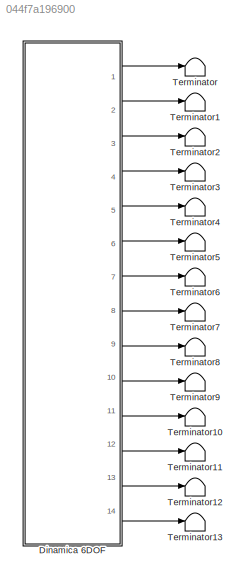
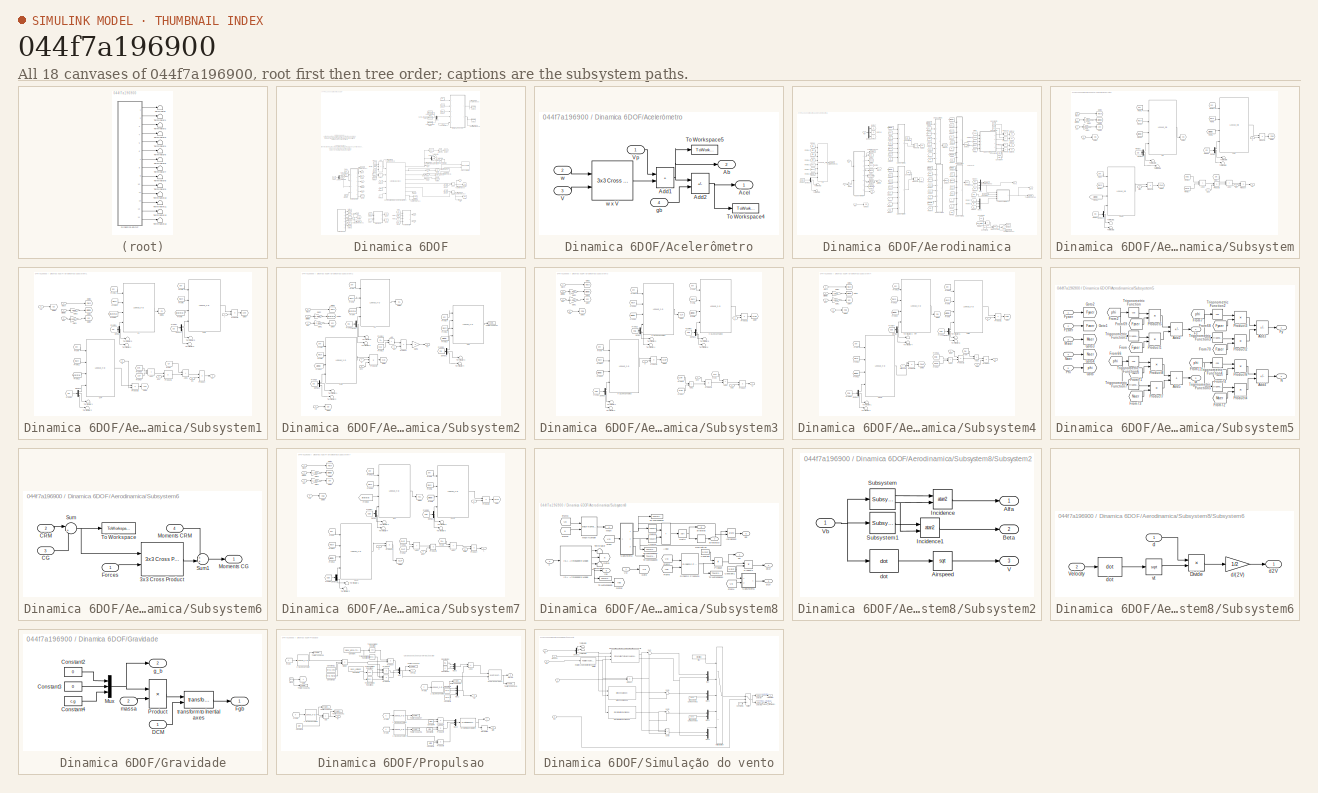
[diagram: thumbnail index - all 18 canvases of the model, root first then tree order]
MODEL slx_044f7a196900
KIND model
CONFIG AbsTol = auto
CONFIG EnableMultiTasking = off
CONFIG FixedStep = 0.001
CONFIG MaxStep = 0.001
CONFIG MinStep = auto
CONFIG RelTol = 1e-3
CONFIG SampleTimeConstraint = Unconstrained
CONFIG SolverName = FixedStepAuto
CONFIG StartTime = 0.0
CONFIG StopTime = D.Tfim
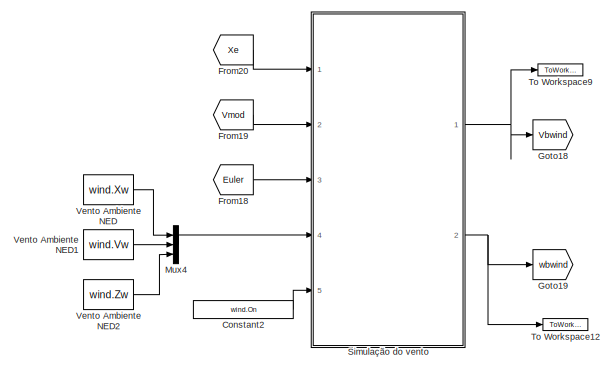
[diagram: Dinamica 6DOF - part 1/3, top right region]
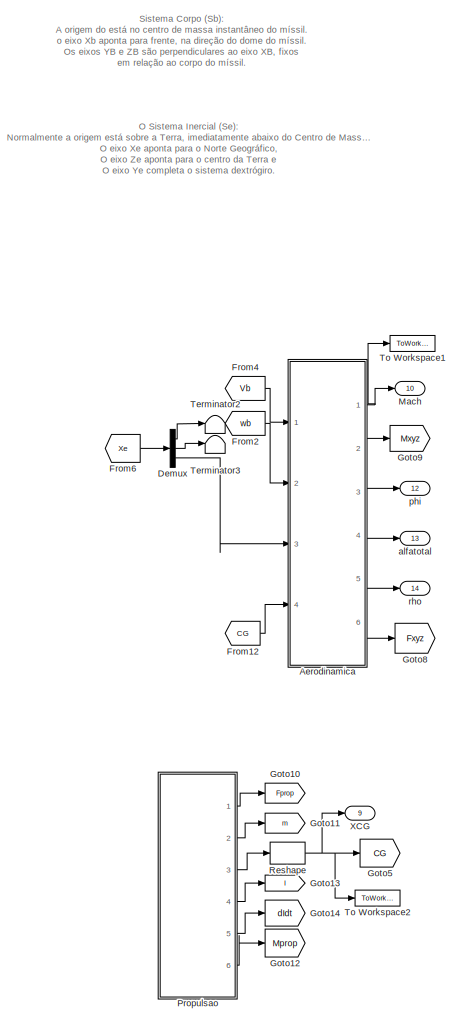
[diagram: Dinamica 6DOF - part 2/3, middle left region]
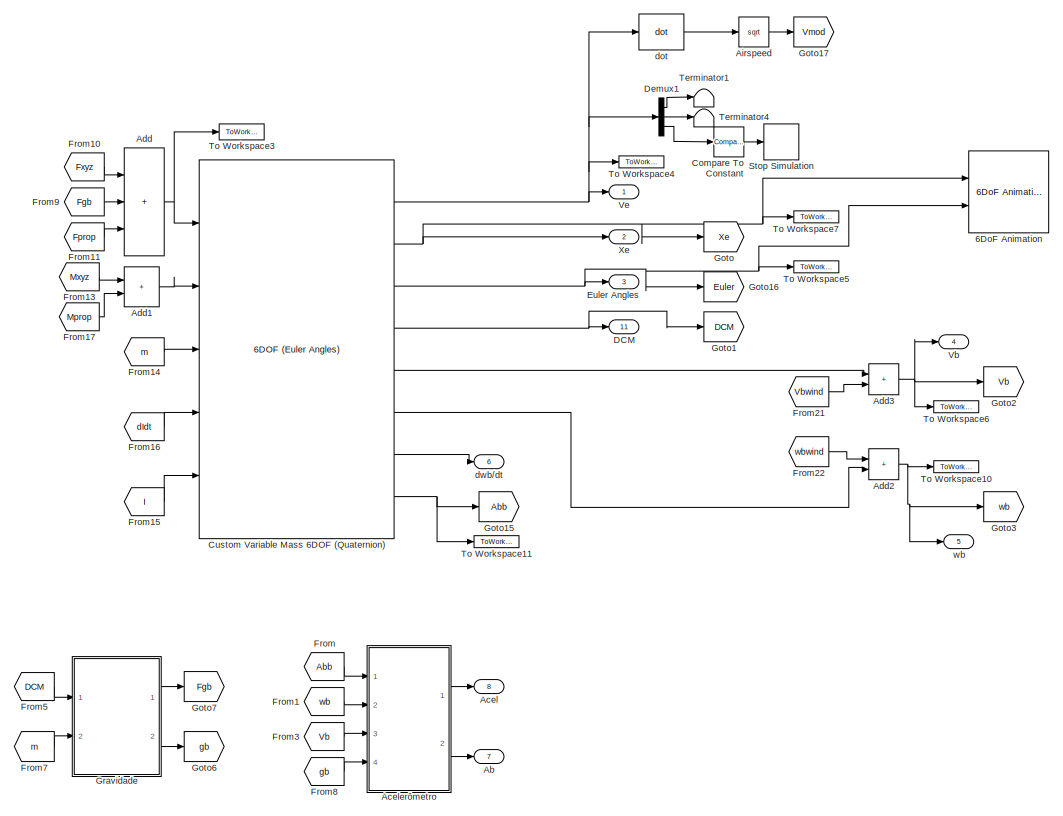
[diagram: Dinamica 6DOF - part 3/3, central region]
BLOCK [SubSystem] Dinamica 6DOF
  Ports = [0, 14]
  RequestExecContextInheritance = off
BLOCK [Reference] Dinamica 6DOF/6DoF Animation  REF=aerolibanim/6DoF Animation
  Ports = [2]
  SourceBlock = aerolibanim/6DoF Animation
  SourceProductBaseCode = AE
  SourceType = 6DoF_Animation
BLOCK [Outport] Dinamica 6DOF/Ab
  Port = 7
  VectorParamsAs1DForOutWhenUnconnected = off
BLOCK [Outport] Dinamica 6DOF/Acel
  Port = 8
  VectorParamsAs1DForOutWhenUnconnected = off
BLOCK [SubSystem] Dinamica 6DOF/Acelerômetro
  Ports = [4, 2]
  RequestExecContextInheritance = off
BLOCK [Outport] Dinamica 6DOF/Acelerômetro/Ab
  Port = 2
  VectorParamsAs1DForOutWhenUnconnected = off
BLOCK [Outport] Dinamica 6DOF/Acelerômetro/Acel
  VectorParamsAs1DForOutWhenUnconnected = off
BLOCK [Sum] Dinamica 6DOF/Acelerômetro/Add1
  IconShape = rectangular
  Ports = [2, 1]
BLOCK [Sum] Dinamica 6DOF/Acelerômetro/Add2
  IconShape = rectangular
  Inputs = +-
  Ports = [2, 1]
BLOCK [ToWorkspace] Dinamica 6DOF/Acelerômetro/To Workspace4
  FixptAsFi = on
  MaxDataPoints = inf
  Ports = [1]
  SampleTime = -1
  SaveFormat = Timeseries
  VariableName = Acel
BLOCK [ToWorkspace] Dinamica 6DOF/Acelerômetro/To Workspace5
  FixptAsFi = on
  MaxDataPoints = inf
  Ports = [1]
  SampleTime = -1
  SaveFormat = Timeseries
  VariableName = Ab
BLOCK [Inport] Dinamica 6DOF/Acelerômetro/V
  Port = 3
BLOCK [Inport] Dinamica 6DOF/Acelerômetro/Vp
BLOCK [Inport] Dinamica 6DOF/Acelerômetro/gb
  Port = 4
BLOCK [Inport] Dinamica 6DOF/Acelerômetro/w
  Port = 2
BLOCK [Reference] Dinamica 6DOF/Acelerômetro/w x V  REF=sharedutil/3x3 Cross Product
  Ports = [2, 1]
  SourceBlock = sharedutil/3x3 Cross Product
  SourceProductBaseCode = AE,PW,DR,MT,UV,VE
  SourceType = CrossProduct
BLOCK [Sum] Dinamica 6DOF/Add
  IconShape = rectangular
  Inputs = +++
  Ports = [3, 1]
BLOCK [Sum] Dinamica 6DOF/Add1
  IconShape = rectangular
  Ports = [2, 1]
BLOCK [Sum] Dinamica 6DOF/Add2
  IconShape = rectangular
  Ports = [2, 1]
BLOCK [Sum] Dinamica 6DOF/Add3
  IconShape = rectangular
  Ports = [2, 1]
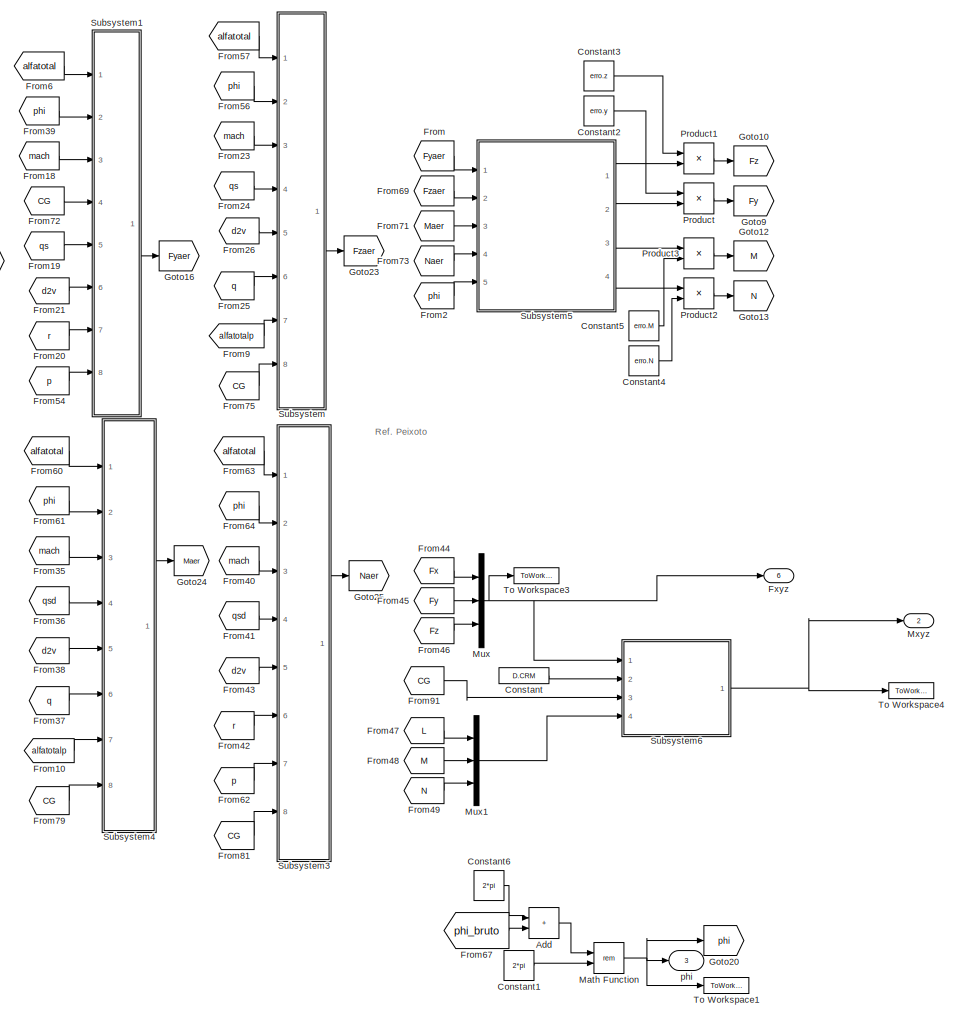
[diagram: Dinamica 6DOF/Aerodinamica - part 1/2, right side, full height]
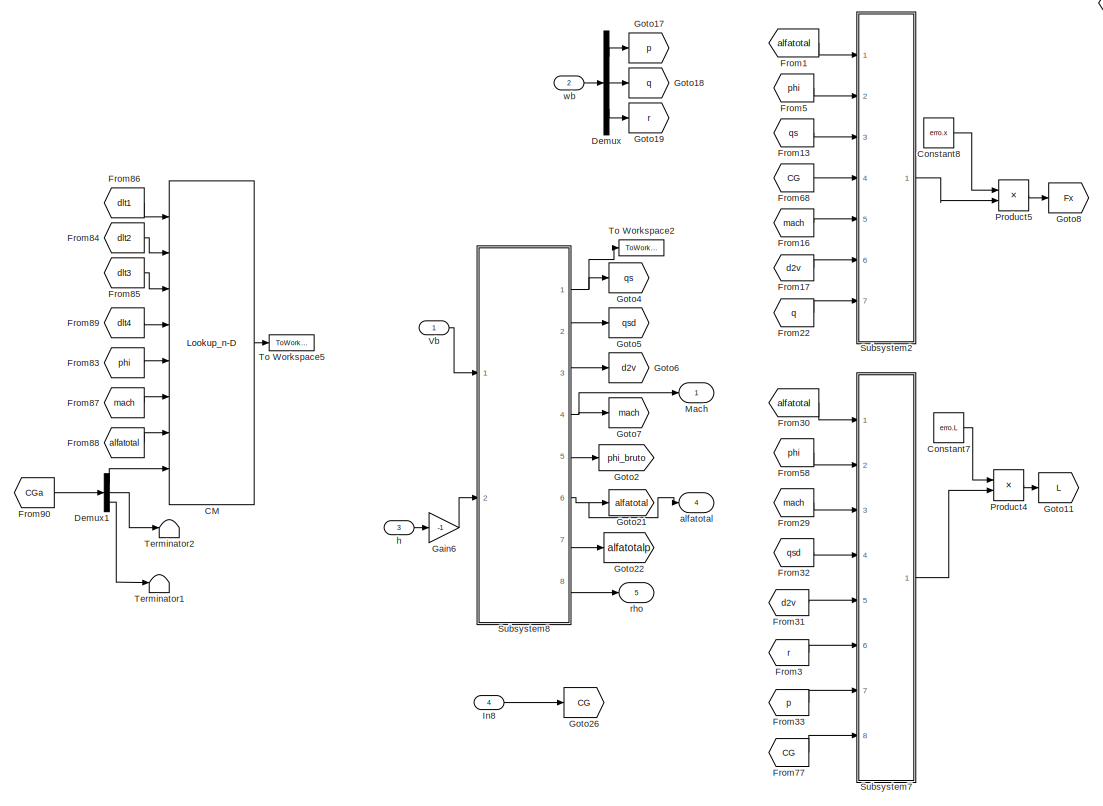
[diagram: Dinamica 6DOF/Aerodinamica - part 2/2, left side, full height]
BLOCK [SubSystem] Dinamica 6DOF/Aerodinamica
  Ports = [4, 6]
  RequestExecContextInheritance = off
BLOCK [Outport] Dinamica 6DOF/Aerodinamica/ Fxyz
  Port = 6
  VectorParamsAs1DForOutWhenUnconnected = off
BLOCK [Sum] Dinamica 6DOF/Aerodinamica/Add
  IconShape = rectangular
  Ports = [2, 1]
BLOCK [Lookup_n-D] Dinamica 6DOF/Aerodinamica/CM
  BreakpointsForDimension1 = dados.delta1
  BreakpointsForDimension2 = dados.delta2
  BreakpointsForDimension3 = dados.delta3
  BreakpointsForDimension4 = dados.delta4
  BreakpointsForDimension5 = dados.phif
  BreakpointsForDimension6 = dados.mach
  BreakpointsForDimension7 = dados.alpha
  BreakpointsForDimension8 = dados.cg
  Commented = on
  ExtrapMethod = Clip
  InputPortMap = u0,u1,u2,u3,u4,u5,u6,u7
  InternalRulePriority = Speed
  NumberOfTableDimensions = 8
  Ports = [8, 1]
  RndMeth = Simplest
  Table = M.XCP
BLOCK [Constant] Dinamica 6DOF/Aerodinamica/Constant
  Value = D.CRM
BLOCK [Constant] Dinamica 6DOF/Aerodinamica/Constant1
  Value = 2*pi
BLOCK [Constant] Dinamica 6DOF/Aerodinamica/Constant2
  Value = erro.y
BLOCK [Constant] Dinamica 6DOF/Aerodinamica/Constant3
  Value = erro.z
BLOCK [Constant] Dinamica 6DOF/Aerodinamica/Constant4
  Value = erro.N
BLOCK [Constant] Dinamica 6DOF/Aerodinamica/Constant5
  Value = erro.M
BLOCK [Constant] Dinamica 6DOF/Aerodinamica/Constant6
  Value = 2*pi
BLOCK [Constant] Dinamica 6DOF/Aerodinamica/Constant7
  Value = erro.L
BLOCK [Constant] Dinamica 6DOF/Aerodinamica/Constant8
  Value = erro.x
BLOCK [Demux] Dinamica 6DOF/Aerodinamica/Demux
  Outputs = 3
  Ports = [1, 3]
BLOCK [Demux] Dinamica 6DOF/Aerodinamica/Demux1
  Commented = on
  Outputs = 3
  Ports = [1, 3]
BLOCK [From] Dinamica 6DOF/Aerodinamica/From
  GotoTag = Fyaer
BLOCK [From] Dinamica 6DOF/Aerodinamica/From1
  GotoTag = alfatotal
BLOCK [From] Dinamica 6DOF/Aerodinamica/From10
  GotoTag = alfatotalp
BLOCK [From] Dinamica 6DOF/Aerodinamica/From13
  GotoTag = qs
BLOCK [From] Dinamica 6DOF/Aerodinamica/From16
  GotoTag = mach
BLOCK [From] Dinamica 6DOF/Aerodinamica/From17
  GotoTag = d2v
BLOCK [From] Dinamica 6DOF/Aerodinamica/From18
  GotoTag = mach
BLOCK [From] Dinamica 6DOF/Aerodinamica/From19
  GotoTag = qs
BLOCK [From] Dinamica 6DOF/Aerodinamica/From2
  GotoTag = phi
BLOCK [From] Dinamica 6DOF/Aerodinamica/From20
  GotoTag = r
BLOCK [From] Dinamica 6DOF/Aerodinamica/From21
  GotoTag = d2v
BLOCK [From] Dinamica 6DOF/Aerodinamica/From22
  GotoTag = q
BLOCK [From] Dinamica 6DOF/Aerodinamica/From23
  GotoTag = mach
BLOCK [From] Dinamica 6DOF/Aerodinamica/From24
  GotoTag = qs
BLOCK [From] Dinamica 6DOF/Aerodinamica/From25
  GotoTag = q
BLOCK [From] Dinamica 6DOF/Aerodinamica/From26
  GotoTag = d2v
BLOCK [From] Dinamica 6DOF/Aerodinamica/From29
  GotoTag = mach
BLOCK [From] Dinamica 6DOF/Aerodinamica/From3
  GotoTag = r
BLOCK [From] Dinamica 6DOF/Aerodinamica/From30
  GotoTag = alfatotal
BLOCK [From] Dinamica 6DOF/Aerodinamica/From31
  GotoTag = d2v
BLOCK [From] Dinamica 6DOF/Aerodinamica/From32
  GotoTag = qsd
BLOCK [From] Dinamica 6DOF/Aerodinamica/From33
  GotoTag = p
BLOCK [From] Dinamica 6DOF/Aerodinamica/From35
  GotoTag = mach
BLOCK [From] Dinamica 6DOF/Aerodinamica/From36
  GotoTag = qsd
BLOCK [From] Dinamica 6DOF/Aerodinamica/From37
  GotoTag = q
BLOCK [From] Dinamica 6DOF/Aerodinamica/From38
  GotoTag = d2v
BLOCK [From] Dinamica 6DOF/Aerodinamica/From39
  GotoTag = phi
BLOCK [From] Dinamica 6DOF/Aerodinamica/From40
  GotoTag = mach
BLOCK [From] Dinamica 6DOF/Aerodinamica/From41
  GotoTag = qsd
BLOCK [From] Dinamica 6DOF/Aerodinamica/From42
  GotoTag = r
BLOCK [From] Dinamica 6DOF/Aerodinamica/From43
  GotoTag = d2v
BLOCK [From] Dinamica 6DOF/Aerodinamica/From44
  GotoTag = Fx
BLOCK [From] Dinamica 6DOF/Aerodinamica/From45
  GotoTag = Fy
BLOCK [From] Dinamica 6DOF/Aerodinamica/From46
  GotoTag = Fz
BLOCK [From] Dinamica 6DOF/Aerodinamica/From47
  GotoTag = L
BLOCK [From] Dinamica 6DOF/Aerodinamica/From48
  GotoTag = M
BLOCK [From] Dinamica 6DOF/Aerodinamica/From49
  GotoTag = N
BLOCK [From] Dinamica 6DOF/Aerodinamica/From5
  GotoTag = phi
BLOCK [From] Dinamica 6DOF/Aerodinamica/From54
  GotoTag = p
BLOCK [From] Dinamica 6DOF/Aerodinamica/From56
  GotoTag = phi
BLOCK [From] Dinamica 6DOF/Aerodinamica/From57
  GotoTag = alfatotal
BLOCK [From] Dinamica 6DOF/Aerodinamica/From58
  GotoTag = phi
BLOCK [From] Dinamica 6DOF/Aerodinamica/From6
  GotoTag = alfatotal
BLOCK [From] Dinamica 6DOF/Aerodinamica/From60
  GotoTag = alfatotal
BLOCK [From] Dinamica 6DOF/Aerodinamica/From61
  GotoTag = phi
BLOCK [From] Dinamica 6DOF/Aerodinamica/From62
  GotoTag = p
BLOCK [From] Dinamica 6DOF/Aerodinamica/From63
  GotoTag = alfatotal
BLOCK [From] Dinamica 6DOF/Aerodinamica/From64
  GotoTag = phi
BLOCK [From] Dinamica 6DOF/Aerodinamica/From67
  GotoTag = phi_bruto
BLOCK [From] Dinamica 6DOF/Aerodinamica/From68
  GotoTag = CG
BLOCK [From] Dinamica 6DOF/Aerodinamica/From69
  GotoTag = Fzaer
BLOCK [From] Dinamica 6DOF/Aerodinamica/From71
  GotoTag = Maer
BLOCK [From] Dinamica 6DOF/Aerodinamica/From72
  GotoTag = CG
BLOCK [From] Dinamica 6DOF/Aerodinamica/From73
  GotoTag = Naer
BLOCK [From] Dinamica 6DOF/Aerodinamica/From75
  GotoTag = CG
BLOCK [From] Dinamica 6DOF/Aerodinamica/From77
  GotoTag = CG
BLOCK [From] Dinamica 6DOF/Aerodinamica/From79
  GotoTag = CG
BLOCK [From] Dinamica 6DOF/Aerodinamica/From81
  GotoTag = CG
BLOCK [From] Dinamica 6DOF/Aerodinamica/From83
  Commented = on
  GotoTag = phi
BLOCK [From] Dinamica 6DOF/Aerodinamica/From84
  Commented = on
  GotoTag = dlt2
BLOCK [From] Dinamica 6DOF/Aerodinamica/From85
  Commented = on
  GotoTag = dlt3
BLOCK [From] Dinamica 6DOF/Aerodinamica/From86
  Commented = on
  GotoTag = dlt1
BLOCK [From] Dinamica 6DOF/Aerodinamica/From87
  Commented = on
  GotoTag = mach
BLOCK [From] Dinamica 6DOF/Aerodinamica/From88
  Commented = on
  GotoTag = alfatotal
BLOCK [From] Dinamica 6DOF/Aerodinamica/From89
  Commented = on
  GotoTag = dlt4
BLOCK [From] Dinamica 6DOF/Aerodinamica/From9
  GotoTag = alfatotalp
BLOCK [From] Dinamica 6DOF/Aerodinamica/From90
  Commented = on
  GotoTag = CGa
BLOCK [From] Dinamica 6DOF/Aerodinamica/From91
  GotoTag = CG
BLOCK [Gain] Dinamica 6DOF/Aerodinamica/Gain6
  Gain = -1
BLOCK [Goto] Dinamica 6DOF/Aerodinamica/Goto10
  GotoTag = Fz
BLOCK [Goto] Dinamica 6DOF/Aerodinamica/Goto11
  GotoTag = L
BLOCK [Goto] Dinamica 6DOF/Aerodinamica/Goto12
  GotoTag = M
BLOCK [Goto] Dinamica 6DOF/Aerodinamica/Goto13
  GotoTag = N
BLOCK [Goto] Dinamica 6DOF/Aerodinamica/Goto16
  GotoTag = Fyaer
BLOCK [Goto] Dinamica 6DOF/Aerodinamica/Goto17
  GotoTag = p
BLOCK [Goto] Dinamica 6DOF/Aerodinamica/Goto18
  GotoTag = q
BLOCK [Goto] Dinamica 6DOF/Aerodinamica/Goto19
  GotoTag = r
BLOCK [Goto] Dinamica 6DOF/Aerodinamica/Goto2
  GotoTag = phi_bruto
BLOCK [Goto] Dinamica 6DOF/Aerodinamica/Goto20
  GotoTag = phi
BLOCK [Goto] Dinamica 6DOF/Aerodinamica/Goto21
  GotoTag = alfatotal
BLOCK [Goto] Dinamica 6DOF/Aerodinamica/Goto22
  GotoTag = alfatotalp
BLOCK [Goto] Dinamica 6DOF/Aerodinamica/Goto23
  GotoTag = Fzaer
BLOCK [Goto] Dinamica 6DOF/Aerodinamica/Goto24
  GotoTag = Maer
BLOCK [Goto] Dinamica 6DOF/Aerodinamica/Goto25
  GotoTag = Naer
BLOCK [Goto] Dinamica 6DOF/Aerodinamica/Goto26
  GotoTag = CG
BLOCK [Goto] Dinamica 6DOF/Aerodinamica/Goto4
  GotoTag = qs
BLOCK [Goto] Dinamica 6DOF/Aerodinamica/Goto5
  GotoTag = qsd
BLOCK [Goto] Dinamica 6DOF/Aerodinamica/Goto6
  GotoTag = d2v
BLOCK [Goto] Dinamica 6DOF/Aerodinamica/Goto7
  GotoTag = mach
BLOCK [Goto] Dinamica 6DOF/Aerodinamica/Goto8
  GotoTag = Fx
BLOCK [Goto] Dinamica 6DOF/Aerodinamica/Goto9
  GotoTag = Fy
BLOCK [Inport] Dinamica 6DOF/Aerodinamica/In8
  Port = 4
BLOCK [Outport] Dinamica 6DOF/Aerodinamica/Mach
  VectorParamsAs1DForOutWhenUnconnected = off
BLOCK [Math] Dinamica 6DOF/Aerodinamica/Math Function
  Operator = rem
  Ports = [2, 1]
  SignedPower = on
BLOCK [Mux] Dinamica 6DOF/Aerodinamica/Mux
  DisplayOption = bar
  Inputs = 3
  Ports = [3, 1]
BLOCK [Mux] Dinamica 6DOF/Aerodinamica/Mux1
  DisplayOption = bar
  Inputs = 3
  Ports = [3, 1]
BLOCK [Outport] Dinamica 6DOF/Aerodinamica/Mxyz
  Port = 2
  VectorParamsAs1DForOutWhenUnconnected = off
BLOCK [Product] Dinamica 6DOF/Aerodinamica/Product
  Ports = [2, 1]
BLOCK [Product] Dinamica 6DOF/Aerodinamica/Product1
  Ports = [2, 1]
BLOCK [Product] Dinamica 6DOF/Aerodinamica/Product2
  Ports = [2, 1]
BLOCK [Product] Dinamica 6DOF/Aerodinamica/Product3
  Ports = [2, 1]
BLOCK [Product] Dinamica 6DOF/Aerodinamica/Product4
  Ports = [2, 1]
BLOCK [Product] Dinamica 6DOF/Aerodinamica/Product5
  Ports = [2, 1]
BLOCK [SubSystem] Dinamica 6DOF/Aerodinamica/Subsystem
  Ports = [8, 1]
  RequestExecContextInheritance = off
BLOCK [Sum] Dinamica 6DOF/Aerodinamica/Subsystem/Add1
  IconShape = rectangular
  Ports = [2, 1]
BLOCK [Sum] Dinamica 6DOF/Aerodinamica/Subsystem/Add2
  IconShape = rectangular
  Ports = [2, 1]
BLOCK [Lookup_n-D] Dinamica 6DOF/Aerodinamica/Subsystem/CN
  BreakpointsForDimension1 = dados.phif
  BreakpointsForDimension2 = dados.mach
  BreakpointsForDimension3 = dados.alpha
  BreakpointsForDimension4 = dados.cg
  BreakpointsForDimension5 = dados.phif
  BreakpointsForDimension6 = dados.mach
  BreakpointsForDimension7 = dados.alpha
  BreakpointsForDimension8 = dados.cg
  ExtrapMethod = Clip
  InputPortMap = u0,u1,u2,u3
  InternalRulePriority = Speed
  NumberOfTableDimensions = 4
  Ports = [4, 1]
  RndMeth = Simplest
  Table = M.CN
BLOCK [Lookup_n-D] Dinamica 6DOF/Aerodinamica/Subsystem/CNAD
  BreakpointsForDimension1 = dados.phif
  BreakpointsForDimension2 = dados.mach
  BreakpointsForDimension3 = dados.alpha
  BreakpointsForDimension4 = dados.cg
  BreakpointsForDimension5 = dados.phif
  BreakpointsForDimension6 = dados.mach
  BreakpointsForDimension7 = dados.alpha
  BreakpointsForDimension8 = dados.cg
  ExtrapMethod = Clip
  InputPortMap = u0,u1,u2,u3
  InternalRulePriority = Speed
  NumberOfTableDimensions = 4
  Ports = [4, 1]
  RndMeth = Simplest
  Table = M.CNAD
BLOCK [Lookup_n-D] Dinamica 6DOF/Aerodinamica/Subsystem/CNQ
  BreakpointsForDimension1 = dados.phif
  BreakpointsForDimension2 = dados.mach
  BreakpointsForDimension3 = dados.alpha
  BreakpointsForDimension4 = dados.cg
  BreakpointsForDimension5 = dados.phif
  BreakpointsForDimension6 = dados.mach
  BreakpointsForDimension7 = dados.alpha
  BreakpointsForDimension8 = dados.cg
  ExtrapMethod = Clip
  InputPortMap = u0,u1,u2,u3
  InternalRulePriority = Speed
  NumberOfTableDimensions = 4
  Ports = [4, 1]
  RndMeth = Simplest
  Table = M.CNQ
BLOCK [Demux] Dinamica 6DOF/Aerodinamica/Subsystem/Demux
  Outputs = 3
  Ports = [1, 3]
BLOCK [Demux] Dinamica 6DOF/Aerodinamica/Subsystem/Demux1
  Outputs = 3
  Ports = [1, 3]
BLOCK [Demux] Dinamica 6DOF/Aerodinamica/Subsystem/Demux2
  Outputs = 3
  Ports = [1, 3]
BLOCK [From] Dinamica 6DOF/Aerodinamica/Subsystem/From
  GotoTag = CN
BLOCK [From] Dinamica 6DOF/Aerodinamica/Subsystem/From1
  GotoTag = phi
BLOCK [From] Dinamica 6DOF/Aerodinamica/Subsystem/From11
  GotoTag = mach
BLOCK [From] Dinamica 6DOF/Aerodinamica/Subsystem/From12
  GotoTag = alfatotal
BLOCK [From] Dinamica 6DOF/Aerodinamica/Subsystem/From13
  GotoTag = phi
BLOCK [From] Dinamica 6DOF/Aerodinamica/Subsystem/From16
  GotoTag = CNQ
BLOCK [From] Dinamica 6DOF/Aerodinamica/Subsystem/From17
  GotoTag = CNAD
BLOCK [From] Dinamica 6DOF/Aerodinamica/Subsystem/From19
  GotoTag = mach
BLOCK [From] Dinamica 6DOF/Aerodinamica/Subsystem/From20
  GotoTag = alfatotal
BLOCK [From] Dinamica 6DOF/Aerodinamica/Subsystem/From24
  GotoTag = CG
BLOCK [From] Dinamica 6DOF/Aerodinamica/Subsystem/From25
  GotoTag = CG
BLOCK [From] Dinamica 6DOF/Aerodinamica/Subsystem/From26
  GotoTag = CG
BLOCK [From] Dinamica 6DOF/Aerodinamica/Subsystem/From5
  GotoTag = mach
BLOCK [From] Dinamica 6DOF/Aerodinamica/Subsystem/From6
  GotoTag = alfatotal
BLOCK [From] Dinamica 6DOF/Aerodinamica/Subsystem/From7
  GotoTag = phi
BLOCK [Outport] Dinamica 6DOF/Aerodinamica/Subsystem/Fz
  VectorParamsAs1DForOutWhenUnconnected = off
BLOCK [Gain] Dinamica 6DOF/Aerodinamica/Subsystem/Gain1
  Gain = c.R2D
BLOCK [Gain] Dinamica 6DOF/Aerodinamica/Subsystem/Gain2
  Gain = c.R2D
BLOCK [Goto] Dinamica 6DOF/Aerodinamica/Subsystem/Goto2
  GotoTag = mach
BLOCK [Goto] Dinamica 6DOF/Aerodinamica/Subsystem/Goto3
  GotoTag = alfatotal
BLOCK [Goto] Dinamica 6DOF/Aerodinamica/Subsystem/Goto4
  GotoTag = phi
BLOCK [Goto] Dinamica 6DOF/Aerodinamica/Subsystem/Goto6
  GotoTag = CN
BLOCK [Goto] Dinamica 6DOF/Aerodinamica/Subsystem/Goto7
  GotoTag = CNQ
BLOCK [Goto] Dinamica 6DOF/Aerodinamica/Subsystem/Goto8
  GotoTag = CNAD
BLOCK [Goto] Dinamica 6DOF/Aerodinamica/Subsystem/Goto9
  GotoTag = CG
BLOCK [Inport] Dinamica 6DOF/Aerodinamica/Subsystem/Mach 
  Port = 3
BLOCK [Product] Dinamica 6DOF/Aerodinamica/Subsystem/Product
  Ports = [2, 1]
BLOCK [Product] Dinamica 6DOF/Aerodinamica/Subsystem/Product1
  Ports = [2, 1]
BLOCK [Product] Dinamica 6DOF/Aerodinamica/Subsystem/Product2
  Ports = [2, 1]
BLOCK [Product] Dinamica 6DOF/Aerodinamica/Subsystem/Product3
  Ports = [2, 1]
BLOCK [Terminator] Dinamica 6DOF/Aerodinamica/Subsystem/Terminator1
BLOCK [Terminator] Dinamica 6DOF/Aerodinamica/Subsystem/Terminator2
BLOCK [Terminator] Dinamica 6DOF/Aerodinamica/Subsystem/Terminator3
BLOCK [Terminator] Dinamica 6DOF/Aerodinamica/Subsystem/Terminator4
BLOCK [Terminator] Dinamica 6DOF/Aerodinamica/Subsystem/Terminator5
BLOCK [Terminator] Dinamica 6DOF/Aerodinamica/Subsystem/Terminator6
BLOCK [Inport] Dinamica 6DOF/Aerodinamica/Subsystem/alfap
  Port = 7
BLOCK [Inport] Dinamica 6DOF/Aerodinamica/Subsystem/alfatotal
BLOCK [Inport] Dinamica 6DOF/Aerodinamica/Subsystem/cg
  Port = 8
BLOCK [Inport] Dinamica 6DOF/Aerodinamica/Subsystem/d2V
  Port = 5
BLOCK [Inport] Dinamica 6DOF/Aerodinamica/Subsystem/phi
  Port = 2
BLOCK [Inport] Dinamica 6DOF/Aerodinamica/Subsystem/q
  Port = 6
BLOCK [Inport] Dinamica 6DOF/Aerodinamica/Subsystem/qS
  Port = 4
BLOCK [SubSystem] Dinamica 6DOF/Aerodinamica/Subsystem1
  Ports = [8, 1]
  RequestExecContextInheritance = off
BLOCK [Sum] Dinamica 6DOF/Aerodinamica/Subsystem1/Add1
  IconShape = rectangular
  Ports = [2, 1]
BLOCK [Sum] Dinamica 6DOF/Aerodinamica/Subsystem1/Add2
  IconShape = rectangular
  Ports = [2, 1]
BLOCK [Lookup_n-D] Dinamica 6DOF/Aerodinamica/Subsystem1/CY
  BreakpointsForDimension1 = dados.phif
  BreakpointsForDimension2 = dados.mach
  BreakpointsForDimension3 = dados.alpha
  BreakpointsForDimension4 = dados.cg
  BreakpointsForDimension5 = dados.phif
  BreakpointsForDimension6 = dados.mach
  BreakpointsForDimension7 = dados.alpha
  BreakpointsForDimension8 = dados.cg
  ExtrapMethod = Clip
  InputPortMap = u0,u1,u2,u3
  InternalRulePriority = Speed
  NumberOfTableDimensions = 4
  Ports = [4, 1]
  RndMeth = Simplest
  Table = M.CY
BLOCK [Lookup_n-D] Dinamica 6DOF/Aerodinamica/Subsystem1/CYP
  BreakpointsForDimension1 = dados.phif
  BreakpointsForDimension2 = dados.mach
  BreakpointsForDimension3 = dados.alpha
  BreakpointsForDimension4 = dados.cg
  BreakpointsForDimension5 = dados.phif
  BreakpointsForDimension6 = dados.mach
  BreakpointsForDimension7 = dados.alpha
  BreakpointsForDimension8 = dados.cg
  ExtrapMethod = Clip
  InputPortMap = u0,u1,u2,u3
  InternalRulePriority = Speed
  NumberOfTableDimensions = 4
  Ports = [4, 1]
  RndMeth = Simplest
  Table = M.CYP
BLOCK [Lookup_n-D] Dinamica 6DOF/Aerodinamica/Subsystem1/CYR
  BreakpointsForDimension1 = dados.phif
  BreakpointsForDimension2 = dados.mach
  BreakpointsForDimension3 = dados.alpha
  BreakpointsForDimension4 = dados.cg
  BreakpointsForDimension5 = dados.phif
  BreakpointsForDimension6 = dados.mach
  BreakpointsForDimension7 = dados.alpha
  BreakpointsForDimension8 = dados.cg
  ExtrapMethod = Clip
  InputPortMap = u0,u1,u2,u3
  InternalRulePriority = Speed
  NumberOfTableDimensions = 4
  Ports = [4, 1]
  RndMeth = Simplest
  Table = M.CYR
BLOCK [Demux] Dinamica 6DOF/Aerodinamica/Subsystem1/Demux
  Outputs = 3
  Ports = [1, 3]
BLOCK [Demux] Dinamica 6DOF/Aerodinamica/Subsystem1/Demux1
  Outputs = 3
  Ports = [1, 3]
BLOCK [Demux] Dinamica 6DOF/Aerodinamica/Subsystem1/Demux2
  Outputs = 3
  Ports = [1, 3]
BLOCK [From] Dinamica 6DOF/Aerodinamica/Subsystem1/From
  GotoTag = CY
BLOCK [From] Dinamica 6DOF/Aerodinamica/Subsystem1/From1
  GotoTag = phi
BLOCK [From] Dinamica 6DOF/Aerodinamica/Subsystem1/From11
  GotoTag = mach
BLOCK [From] Dinamica 6DOF/Aerodinamica/Subsystem1/From12
  GotoTag = alfatotal
BLOCK [From] Dinamica 6DOF/Aerodinamica/Subsystem1/From13
  GotoTag = phi
BLOCK [From] Dinamica 6DOF/Aerodinamica/Subsystem1/From16
  GotoTag = CYR
BLOCK [From] Dinamica 6DOF/Aerodinamica/Subsystem1/From17
  GotoTag = CYP
BLOCK [From] Dinamica 6DOF/Aerodinamica/Subsystem1/From19
  GotoTag = mach
BLOCK [From] Dinamica 6DOF/Aerodinamica/Subsystem1/From20
  GotoTag = alfatotal
BLOCK [From] Dinamica 6DOF/Aerodinamica/Subsystem1/From21
  GotoTag = CG
BLOCK [From] Dinamica 6DOF/Aerodinamica/Subsystem1/From22
  GotoTag = CG
BLOCK [From] Dinamica 6DOF/Aerodinamica/Subsystem1/From27
  GotoTag = CG
BLOCK [From] Dinamica 6DOF/Aerodinamica/Subsystem1/From5
  GotoTag = mach
BLOCK [From] Dinamica 6DOF/Aerodinamica/Subsystem1/From6
  GotoTag = alfatotal
BLOCK [From] Dinamica 6DOF/Aerodinamica/Subsystem1/From7
  GotoTag = phi
BLOCK [Outport] Dinamica 6DOF/Aerodinamica/Subsystem1/Fy
  VectorParamsAs1DForOutWhenUnconnected = off
BLOCK [Gain] Dinamica 6DOF/Aerodinamica/Subsystem1/Gain1
  Gain = c.R2D
BLOCK [Gain] Dinamica 6DOF/Aerodinamica/Subsystem1/Gain2
  Gain = c.R2D
BLOCK [Goto] Dinamica 6DOF/Aerodinamica/Subsystem1/Goto2
  GotoTag = mach
BLOCK [Goto] Dinamica 6DOF/Aerodinamica/Subsystem1/Goto3
  GotoTag = alfatotal
BLOCK [Goto] Dinamica 6DOF/Aerodinamica/Subsystem1/Goto4
  GotoTag = phi
BLOCK [Goto] Dinamica 6DOF/Aerodinamica/Subsystem1/Goto6
  GotoTag = CY
BLOCK [Goto] Dinamica 6DOF/Aerodinamica/Subsystem1/Goto7
  GotoTag = CYR
BLOCK [Goto] Dinamica 6DOF/Aerodinamica/Subsystem1/Goto8
  GotoTag = CYP
BLOCK [Goto] Dinamica 6DOF/Aerodinamica/Subsystem1/Goto9
  GotoTag = CG
BLOCK [Inport] Dinamica 6DOF/Aerodinamica/Subsystem1/Mach 
  Port = 3
BLOCK [Product] Dinamica 6DOF/Aerodinamica/Subsystem1/Product
  Ports = [2, 1]
BLOCK [Product] Dinamica 6DOF/Aerodinamica/Subsystem1/Product1
  Ports = [2, 1]
BLOCK [Product] Dinamica 6DOF/Aerodinamica/Subsystem1/Product2
  Ports = [2, 1]
BLOCK [Product] Dinamica 6DOF/Aerodinamica/Subsystem1/Product3
  Ports = [2, 1]
BLOCK [Terminator] Dinamica 6DOF/Aerodinamica/Subsystem1/Terminator1
BLOCK [Terminator] Dinamica 6DOF/Aerodinamica/Subsystem1/Terminator2
BLOCK [Terminator] Dinamica 6DOF/Aerodinamica/Subsystem1/Terminator3
BLOCK [Terminator] Dinamica 6DOF/Aerodinamica/Subsystem1/Terminator4
BLOCK [Terminator] Dinamica 6DOF/Aerodinamica/Subsystem1/Terminator5
BLOCK [Terminator] Dinamica 6DOF/Aerodinamica/Subsystem1/Terminator6
BLOCK [Inport] Dinamica 6DOF/Aerodinamica/Subsystem1/alfatotal
BLOCK [Inport] Dinamica 6DOF/Aerodinamica/Subsystem1/cg
  Port = 4
BLOCK [Inport] Dinamica 6DOF/Aerodinamica/Subsystem1/d2V
  Port = 6
BLOCK [Inport] Dinamica 6DOF/Aerodinamica/Subsystem1/p
  Port = 8
BLOCK [Inport] Dinamica 6DOF/Aerodinamica/Subsystem1/phi
  Port = 2
BLOCK [Inport] Dinamica 6DOF/Aerodinamica/Subsystem1/qS
  Port = 5
BLOCK [Inport] Dinamica 6DOF/Aerodinamica/Subsystem1/r
  Port = 7
BLOCK [SubSystem] Dinamica 6DOF/Aerodinamica/Subsystem2
  Ports = [7, 1]
  RequestExecContextInheritance = off
BLOCK [Sum] Dinamica 6DOF/Aerodinamica/Subsystem2/Add
  IconShape = rectangular
  Ports = [2, 1]
BLOCK [Lookup_n-D] Dinamica 6DOF/Aerodinamica/Subsystem2/CA
  BreakpointsForDimension1 = dados.phif
  BreakpointsForDimension2 = dados.mach
  BreakpointsForDimension3 = dados.alpha
  BreakpointsForDimension4 = dados.cg
  BreakpointsForDimension5 = dados.phif
  BreakpointsForDimension6 = dados.mach
  BreakpointsForDimension7 = dados.alpha
  BreakpointsForDimension8 = dados.cg
  ExtrapMethod = Clip
  InputPortMap = u0,u1,u2,u3
  InternalRulePriority = Speed
  NumberOfTableDimensions = 4
  Ports = [4, 1]
  RndMeth = Simplest
  Table = M.CA
BLOCK [Lookup_n-D] Dinamica 6DOF/Aerodinamica/Subsystem2/CAQ
  BreakpointsForDimension1 = dados.phif
  BreakpointsForDimension2 = dados.mach
  BreakpointsForDimension3 = dados.alpha
  BreakpointsForDimension4 = dados.cg
  BreakpointsForDimension5 = dados.phif
  BreakpointsForDimension6 = dados.mach
  BreakpointsForDimension7 = dados.alpha
  BreakpointsForDimension8 = dados.cg
  ExtrapMethod = Clip
  InputPortMap = u0,u1,u2,u3
  InternalRulePriority = Speed
  NumberOfTableDimensions = 4
  Ports = [4, 1]
  RndMeth = Simplest
  Table = M.CAQ
BLOCK [Demux] Dinamica 6DOF/Aerodinamica/Subsystem2/Demux
  Outputs = 3
  Ports = [1, 3]
BLOCK [Demux] Dinamica 6DOF/Aerodinamica/Subsystem2/Demux1
  Outputs = 3
  Ports = [1, 3]
BLOCK [Demux] Dinamica 6DOF/Aerodinamica/Subsystem2/Demux2
  Outputs = 3
  Ports = [1, 3]
BLOCK [From] Dinamica 6DOF/Aerodinamica/Subsystem2/From
  GotoTag = phi
BLOCK [From] Dinamica 6DOF/Aerodinamica/Subsystem2/From11
  GotoTag = alfatotal
BLOCK [From] Dinamica 6DOF/Aerodinamica/Subsystem2/From12
  GotoTag = CA
BLOCK [From] Dinamica 6DOF/Aerodinamica/Subsystem2/From13
  GotoTag = CAQ
BLOCK [From] Dinamica 6DOF/Aerodinamica/Subsystem2/From14
  GotoTag = phi
BLOCK [From] Dinamica 6DOF/Aerodinamica/Subsystem2/From18
  GotoTag = mach
BLOCK [From] Dinamica 6DOF/Aerodinamica/Subsystem2/From19
  GotoTag = alfatotal
BLOCK [From] Dinamica 6DOF/Aerodinamica/Subsystem2/From20
  GotoTag = CG
BLOCK [From] Dinamica 6DOF/Aerodinamica/Subsystem2/From22
  GotoTag = CG
BLOCK [From] Dinamica 6DOF/Aerodinamica/Subsystem2/From26
  GotoTag = CG
BLOCK [From] Dinamica 6DOF/Aerodinamica/Subsystem2/From3
  GotoTag = mach
BLOCK [From] Dinamica 6DOF/Aerodinamica/Subsystem2/From4
  GotoTag = alfatotal
BLOCK [From] Dinamica 6DOF/Aerodinamica/Subsystem2/From5
  GotoTag = phi
BLOCK [From] Dinamica 6DOF/Aerodinamica/Subsystem2/From9
  GotoTag = mach
BLOCK [Outport] Dinamica 6DOF/Aerodinamica/Subsystem2/Fx
  VectorParamsAs1DForOutWhenUnconnected = off
BLOCK [Gain] Dinamica 6DOF/Aerodinamica/Subsystem2/Gain1
  Gain = c.R2D
BLOCK [Gain] Dinamica 6DOF/Aerodinamica/Subsystem2/Gain2
  Gain = c.R2D
BLOCK [Gain] Dinamica 6DOF/Aerodinamica/Subsystem2/Gain5
  Gain = -1
BLOCK [Goto] Dinamica 6DOF/Aerodinamica/Subsystem2/Goto2
  GotoTag = mach
BLOCK [Goto] Dinamica 6DOF/Aerodinamica/Subsystem2/Goto3
  GotoTag = alfatotal
BLOCK [Goto] Dinamica 6DOF/Aerodinamica/Subsystem2/Goto4
  GotoTag = phi
BLOCK [Goto] Dinamica 6DOF/Aerodinamica/Subsystem2/Goto6
  GotoTag = CA
BLOCK [Goto] Dinamica 6DOF/Aerodinamica/Subsystem2/Goto7
  GotoTag = CAQ
BLOCK [Goto] Dinamica 6DOF/Aerodinamica/Subsystem2/Goto8
  GotoTag = CG
BLOCK [Inport] Dinamica 6DOF/Aerodinamica/Subsystem2/Mach 
  Port = 5
BLOCK [Product] Dinamica 6DOF/Aerodinamica/Subsystem2/Product
  Ports = [2, 1]
BLOCK [Product] Dinamica 6DOF/Aerodinamica/Subsystem2/Product1
  Inputs = 3
  Ports = [3, 1]
BLOCK [Terminator] Dinamica 6DOF/Aerodinamica/Subsystem2/Terminator1
BLOCK [Terminator] Dinamica 6DOF/Aerodinamica/Subsystem2/Terminator2
BLOCK [Terminator] Dinamica 6DOF/Aerodinamica/Subsystem2/Terminator3
BLOCK [Terminator] Dinamica 6DOF/Aerodinamica/Subsystem2/Terminator4
BLOCK [Terminator] Dinamica 6DOF/Aerodinamica/Subsystem2/Terminator5
BLOCK [Terminator] Dinamica 6DOF/Aerodinamica/Subsystem2/Terminator6
BLOCK [ToWorkspace] Dinamica 6DOF/Aerodinamica/Subsystem2/To Workspace2
  FixptAsFi = on
  MaxDataPoints = inf
  Ports = [1]
  SampleTime = -1
  SaveFormat = Timeseries
  VariableName = XCP
BLOCK [Lookup_n-D] Dinamica 6DOF/Aerodinamica/Subsystem2/XCP
  BreakpointsForDimension1 = dados.phif
  BreakpointsForDimension2 = dados.mach
  BreakpointsForDimension3 = dados.alpha
  BreakpointsForDimension4 = dados.cg
  BreakpointsForDimension5 = dados.phif
  BreakpointsForDimension6 = dados.mach
  BreakpointsForDimension7 = dados.alpha
  BreakpointsForDimension8 = dados.cg
  ExtrapMethod = Clip
  InputPortMap = u0,u1,u2,u3
  InternalRulePriority = Speed
  NumberOfTableDimensions = 4
  Ports = [4, 1]
  RndMeth = Simplest
  Table = M.XCP
BLOCK [Inport] Dinamica 6DOF/Aerodinamica/Subsystem2/alfatotal
BLOCK [Inport] Dinamica 6DOF/Aerodinamica/Subsystem2/cg
  Port = 4
BLOCK [Inport] Dinamica 6DOF/Aerodinamica/Subsystem2/d2V
  Port = 6
BLOCK [Inport] Dinamica 6DOF/Aerodinamica/Subsystem2/phi
  Port = 2
BLOCK [Inport] Dinamica 6DOF/Aerodinamica/Subsystem2/q
  Port = 7
BLOCK [Inport] Dinamica 6DOF/Aerodinamica/Subsystem2/qS
  Port = 3
BLOCK [SubSystem] Dinamica 6DOF/Aerodinamica/Subsystem3
  Ports = [8, 1]
  RequestExecContextInheritance = off
BLOCK [Sum] Dinamica 6DOF/Aerodinamica/Subsystem3/Add1
  IconShape = rectangular
  Ports = [2, 1]
BLOCK [Sum] Dinamica 6DOF/Aerodinamica/Subsystem3/Add2
  IconShape = rectangular
  Ports = [2, 1]
BLOCK [Demux] Dinamica 6DOF/Aerodinamica/Subsystem3/Demux
  Outputs = 3
  Ports = [1, 3]
BLOCK [Demux] Dinamica 6DOF/Aerodinamica/Subsystem3/Demux1
  Outputs = 3
  Ports = [1, 3]
BLOCK [Demux] Dinamica 6DOF/Aerodinamica/Subsystem3/Demux2
  Outputs = 3
  Ports = [1, 3]
BLOCK [From] Dinamica 6DOF/Aerodinamica/Subsystem3/From
  GotoTag = CLN
BLOCK [From] Dinamica 6DOF/Aerodinamica/Subsystem3/From1
  GotoTag = phi
BLOCK [From] Dinamica 6DOF/Aerodinamica/Subsystem3/From11
  GotoTag = mach
BLOCK [From] Dinamica 6DOF/Aerodinamica/Subsystem3/From12
  GotoTag = alfatotal
BLOCK [From] Dinamica 6DOF/Aerodinamica/Subsystem3/From13
  GotoTag = phi
BLOCK [From] Dinamica 6DOF/Aerodinamica/Subsystem3/From16
  GotoTag = CLNR
BLOCK [From] Dinamica 6DOF/Aerodinamica/Subsystem3/From17
  GotoTag = CLNP
BLOCK [From] Dinamica 6DOF/Aerodinamica/Subsystem3/From19
  GotoTag = mach
BLOCK [From] Dinamica 6DOF/Aerodinamica/Subsystem3/From20
  GotoTag = alfatotal
BLOCK [From] Dinamica 6DOF/Aerodinamica/Subsystem3/From21
  GotoTag = CGa
BLOCK [From] Dinamica 6DOF/Aerodinamica/Subsystem3/From22
  GotoTag = CGa
BLOCK [From] Dinamica 6DOF/Aerodinamica/Subsystem3/From23
  GotoTag = CGa
BLOCK [From] Dinamica 6DOF/Aerodinamica/Subsystem3/From5
  GotoTag = mach
BLOCK [From] Dinamica 6DOF/Aerodinamica/Subsystem3/From6
  GotoTag = alfatotal
BLOCK [From] Dinamica 6DOF/Aerodinamica/Subsystem3/From7
  GotoTag = phi
BLOCK [Gain] Dinamica 6DOF/Aerodinamica/Subsystem3/Gain1
  Gain = c.R2D
BLOCK [Gain] Dinamica 6DOF/Aerodinamica/Subsystem3/Gain2
  Gain = c.R2D
BLOCK [Goto] Dinamica 6DOF/Aerodinamica/Subsystem3/Goto2
  GotoTag = mach
BLOCK [Goto] Dinamica 6DOF/Aerodinamica/Subsystem3/Goto3
  GotoTag = alfatotal
BLOCK [Goto] Dinamica 6DOF/Aerodinamica/Subsystem3/Goto4
  GotoTag = phi
BLOCK [Goto] Dinamica 6DOF/Aerodinamica/Subsystem3/Goto6
  GotoTag = CLN
BLOCK [Goto] Dinamica 6DOF/Aerodinamica/Subsystem3/Goto7
  GotoTag = CLNR
BLOCK [Goto] Dinamica 6DOF/Aerodinamica/Subsystem3/Goto8
  GotoTag = CLNP
BLOCK [Goto] Dinamica 6DOF/Aerodinamica/Subsystem3/Goto9
  GotoTag = CGa
BLOCK [Inport] Dinamica 6DOF/Aerodinamica/Subsystem3/Mach 
  Port = 3
BLOCK [Outport] Dinamica 6DOF/Aerodinamica/Subsystem3/N
  VectorParamsAs1DForOutWhenUnconnected = off
BLOCK [Product] Dinamica 6DOF/Aerodinamica/Subsystem3/Product
  Ports = [2, 1]
BLOCK [Product] Dinamica 6DOF/Aerodinamica/Subsystem3/Product1
  Ports = [2, 1]
BLOCK [Product] Dinamica 6DOF/Aerodinamica/Subsystem3/Product2
  Ports = [2, 1]
BLOCK [Product] Dinamica 6DOF/Aerodinamica/Subsystem3/Product3
  Ports = [2, 1]
BLOCK [Terminator] Dinamica 6DOF/Aerodinamica/Subsystem3/Terminator1
BLOCK [Terminator] Dinamica 6DOF/Aerodinamica/Subsystem3/Terminator2
BLOCK [Terminator] Dinamica 6DOF/Aerodinamica/Subsystem3/Terminator3
BLOCK [Terminator] Dinamica 6DOF/Aerodinamica/Subsystem3/Terminator4
BLOCK [Terminator] Dinamica 6DOF/Aerodinamica/Subsystem3/Terminator5
BLOCK [Terminator] Dinamica 6DOF/Aerodinamica/Subsystem3/Terminator6
BLOCK [Inport] Dinamica 6DOF/Aerodinamica/Subsystem3/alfatotal
BLOCK [Inport] Dinamica 6DOF/Aerodinamica/Subsystem3/cg
  Port = 8
BLOCK [Inport] Dinamica 6DOF/Aerodinamica/Subsystem3/d2V
  Port = 5
BLOCK [Lookup_n-D] Dinamica 6DOF/Aerodinamica/Subsystem3/n-D Lookup Table1
  BreakpointsForDimension1 = dados.phif
  BreakpointsForDimension2 = dados.mach
  BreakpointsForDimension3 = dados.alpha
  BreakpointsForDimension4 = dados.cg
  BreakpointsForDimension5 = dados.phif
  BreakpointsForDimension6 = dados.mach
  BreakpointsForDimension7 = dados.alpha
  BreakpointsForDimension8 = dados.cg
  ExtrapMethod = Clip
  InputPortMap = u0,u1,u2,u3
  InternalRulePriority = Speed
  NumberOfTableDimensions = 4
  Ports = [4, 1]
  RndMeth = Simplest
  Table = M.CLN
BLOCK [Lookup_n-D] Dinamica 6DOF/Aerodinamica/Subsystem3/n-D Lookup Table2
  BreakpointsForDimension1 = dados.phif
  BreakpointsForDimension2 = dados.mach
  BreakpointsForDimension3 = dados.alpha
  BreakpointsForDimension4 = dados.cg
  BreakpointsForDimension5 = dados.phif
  BreakpointsForDimension6 = dados.mach
  BreakpointsForDimension7 = dados.alpha
  BreakpointsForDimension8 = dados.cg
  ExtrapMethod = Clip
  InputPortMap = u0,u1,u2,u3
  InternalRulePriority = Speed
  NumberOfTableDimensions = 4
  Ports = [4, 1]
  RndMeth = Simplest
  Table = M.CLNR
BLOCK [Lookup_n-D] Dinamica 6DOF/Aerodinamica/Subsystem3/n-D Lookup Table3
  BreakpointsForDimension1 = dados.phif
  BreakpointsForDimension2 = dados.mach
  BreakpointsForDimension3 = dados.alpha
  BreakpointsForDimension4 = dados.cg
  BreakpointsForDimension5 = dados.phif
  BreakpointsForDimension6 = dados.mach
  BreakpointsForDimension7 = dados.alpha
  BreakpointsForDimension8 = dados.cg
  ExtrapMethod = Clip
  InputPortMap = u0,u1,u2,u3
  InternalRulePriority = Speed
  NumberOfTableDimensions = 4
  Ports = [4, 1]
  RndMeth = Simplest
  Table = M.CLNP
BLOCK [Inport] Dinamica 6DOF/Aerodinamica/Subsystem3/p
  Port = 7
BLOCK [Inport] Dinamica 6DOF/Aerodinamica/Subsystem3/phi
  Port = 2
BLOCK [Inport] Dinamica 6DOF/Aerodinamica/Subsystem3/qSd
  Port = 4
BLOCK [Inport] Dinamica 6DOF/Aerodinamica/Subsystem3/r
  Port = 6
BLOCK [SubSystem] Dinamica 6DOF/Aerodinamica/Subsystem4
  Ports = [8, 1]
  RequestExecContextInheritance = off
BLOCK [Sum] Dinamica 6DOF/Aerodinamica/Subsystem4/Add1
  IconShape = rectangular
  Ports = [2, 1]
BLOCK [Sum] Dinamica 6DOF/Aerodinamica/Subsystem4/Add2
  IconShape = rectangular
  Ports = [2, 1]
BLOCK [Lookup_n-D] Dinamica 6DOF/Aerodinamica/Subsystem4/CM
  BreakpointsForDimension1 = dados.phif
  BreakpointsForDimension2 = dados.mach
  BreakpointsForDimension3 = dados.alpha
  BreakpointsForDimension4 = dados.cg
  BreakpointsForDimension5 = dados.phif
  BreakpointsForDimension6 = dados.mach
  BreakpointsForDimension7 = dados.alpha
  BreakpointsForDimension8 = dados.cg
  ExtrapMethod = Clip
  InputPortMap = u0,u1,u2,u3
  InternalRulePriority = Speed
  NumberOfTableDimensions = 4
  Ports = [4, 1]
  RndMeth = Simplest
  Table = M.CM
BLOCK [Lookup_n-D] Dinamica 6DOF/Aerodinamica/Subsystem4/CMAD
  BreakpointsForDimension1 = dados.phif
  BreakpointsForDimension2 = dados.mach
  BreakpointsForDimension3 = dados.alpha
  BreakpointsForDimension4 = dados.cg
  BreakpointsForDimension5 = dados.phif
  BreakpointsForDimension6 = dados.mach
  BreakpointsForDimension7 = dados.alpha
  BreakpointsForDimension8 = dados.cg
  ExtrapMethod = Clip
  InputPortMap = u0,u1,u2,u3
  InternalRulePriority = Speed
  NumberOfTableDimensions = 4
  Ports = [4, 1]
  RndMeth = Simplest
  Table = M.CMAD
BLOCK [Lookup_n-D] Dinamica 6DOF/Aerodinamica/Subsystem4/CMQ
  BreakpointsForDimension1 = dados.phif
  BreakpointsForDimension2 = dados.mach
  BreakpointsForDimension3 = dados.alpha
  BreakpointsForDimension4 = dados.cg
  BreakpointsForDimension5 = dados.phif
  BreakpointsForDimension6 = dados.mach
  BreakpointsForDimension7 = dados.alpha
  BreakpointsForDimension8 = dados.cg
  ExtrapMethod = Clip
  InputPortMap = u0,u1,u2,u3
  InternalRulePriority = Speed
  NumberOfTableDimensions = 4
  Ports = [4, 1]
  RndMeth = Simplest
  Table = M.CMQ
BLOCK [Demux] Dinamica 6DOF/Aerodinamica/Subsystem4/Demux
  Outputs = 3
  Ports = [1, 3]
BLOCK [Demux] Dinamica 6DOF/Aerodinamica/Subsystem4/Demux1
  Outputs = 3
  Ports = [1, 3]
BLOCK [Demux] Dinamica 6DOF/Aerodinamica/Subsystem4/Demux2
  Outputs = 3
  Ports = [1, 3]
BLOCK [From] Dinamica 6DOF/Aerodinamica/Subsystem4/From
  GotoTag = CM
BLOCK [From] Dinamica 6DOF/Aerodinamica/Subsystem4/From1
  GotoTag = phi
BLOCK [From] Dinamica 6DOF/Aerodinamica/Subsystem4/From11
  GotoTag = mach
BLOCK [From] Dinamica 6DOF/Aerodinamica/Subsystem4/From12
  GotoTag = alfatotal
BLOCK [From] Dinamica 6DOF/Aerodinamica/Subsystem4/From13
  GotoTag = phi
BLOCK [From] Dinamica 6DOF/Aerodinamica/Subsystem4/From16
  GotoTag = CMQ
BLOCK [From] Dinamica 6DOF/Aerodinamica/Subsystem4/From17
  GotoTag = CMAD
BLOCK [From] Dinamica 6DOF/Aerodinamica/Subsystem4/From19
  GotoTag = mach
BLOCK [From] Dinamica 6DOF/Aerodinamica/Subsystem4/From20
  GotoTag = alfatotal
BLOCK [From] Dinamica 6DOF/Aerodinamica/Subsystem4/From24
  GotoTag = CGa
BLOCK [From] Dinamica 6DOF/Aerodinamica/Subsystem4/From25
  GotoTag = CGa
BLOCK [From] Dinamica 6DOF/Aerodinamica/Subsystem4/From26
  GotoTag = CGa
BLOCK [From] Dinamica 6DOF/Aerodinamica/Subsystem4/From5
  GotoTag = mach
BLOCK [From] Dinamica 6DOF/Aerodinamica/Subsystem4/From6
  GotoTag = alfatotal
BLOCK [From] Dinamica 6DOF/Aerodinamica/Subsystem4/From7
  GotoTag = phi
BLOCK [Gain] Dinamica 6DOF/Aerodinamica/Subsystem4/Gain1
  Gain = c.R2D
BLOCK [Gain] Dinamica 6DOF/Aerodinamica/Subsystem4/Gain2
  Gain = c.R2D
BLOCK [Goto] Dinamica 6DOF/Aerodinamica/Subsystem4/Goto2
  GotoTag = mach
BLOCK [Goto] Dinamica 6DOF/Aerodinamica/Subsystem4/Goto3
  GotoTag = alfatotal
BLOCK [Goto] Dinamica 6DOF/Aerodinamica/Subsystem4/Goto4
  GotoTag = phi
BLOCK [Goto] Dinamica 6DOF/Aerodinamica/Subsystem4/Goto6
  GotoTag = CM
BLOCK [Goto] Dinamica 6DOF/Aerodinamica/Subsystem4/Goto7
  GotoTag = CMQ
BLOCK [Goto] Dinamica 6DOF/Aerodinamica/Subsystem4/Goto8
  GotoTag = CMAD
BLOCK [Goto] Dinamica 6DOF/Aerodinamica/Subsystem4/Goto9
  GotoTag = CGa
BLOCK [Outport] Dinamica 6DOF/Aerodinamica/Subsystem4/M
  VectorParamsAs1DForOutWhenUnconnected = off
BLOCK [Inport] Dinamica 6DOF/Aerodinamica/Subsystem4/Mach 
  Port = 3
BLOCK [Product] Dinamica 6DOF/Aerodinamica/Subsystem4/Product
  Ports = [2, 1]
BLOCK [Product] Dinamica 6DOF/Aerodinamica/Subsystem4/Product1
  Ports = [2, 1]
BLOCK [Product] Dinamica 6DOF/Aerodinamica/Subsystem4/Product2
  Ports = [2, 1]
BLOCK [Product] Dinamica 6DOF/Aerodinamica/Subsystem4/Product3
  Ports = [2, 1]
BLOCK [Terminator] Dinamica 6DOF/Aerodinamica/Subsystem4/Terminator1
BLOCK [Terminator] Dinamica 6DOF/Aerodinamica/Subsystem4/Terminator2
BLOCK [Terminator] Dinamica 6DOF/Aerodinamica/Subsystem4/Terminator3
BLOCK [Terminator] Dinamica 6DOF/Aerodinamica/Subsystem4/Terminator4
BLOCK [Terminator] Dinamica 6DOF/Aerodinamica/Subsystem4/Terminator5
BLOCK [Terminator] Dinamica 6DOF/Aerodinamica/Subsystem4/Terminator6
BLOCK [Inport] Dinamica 6DOF/Aerodinamica/Subsystem4/alfaponto
  Port = 7
BLOCK [Inport] Dinamica 6DOF/Aerodinamica/Subsystem4/alfatotal
BLOCK [Inport] Dinamica 6DOF/Aerodinamica/Subsystem4/cg
  Port = 8
BLOCK [Inport] Dinamica 6DOF/Aerodinamica/Subsystem4/d2V
  Port = 5
BLOCK [Inport] Dinamica 6DOF/Aerodinamica/Subsystem4/phi
  Port = 2
BLOCK [Inport] Dinamica 6DOF/Aerodinamica/Subsystem4/q
  Port = 6
BLOCK [Inport] Dinamica 6DOF/Aerodinamica/Subsystem4/qSd
  Port = 4
BLOCK [SubSystem] Dinamica 6DOF/Aerodinamica/Subsystem5
  Ports = [5, 4]
  RequestExecContextInheritance = off
BLOCK [Sum] Dinamica 6DOF/Aerodinamica/Subsystem5/Add2
  IconShape = rectangular
  Inputs = --
  Ports = [2, 1]
BLOCK [Sum] Dinamica 6DOF/Aerodinamica/Subsystem5/Add3
  IconShape = rectangular
  Inputs = --
  Ports = [2, 1]
BLOCK [Sum] Dinamica 6DOF/Aerodinamica/Subsystem5/Add4
  IconShape = rectangular
  Inputs = +-
  Ports = [2, 1]
BLOCK [Sum] Dinamica 6DOF/Aerodinamica/Subsystem5/Add5
  IconShape = rectangular
  Ports = [2, 1]
BLOCK [From] Dinamica 6DOF/Aerodinamica/Subsystem5/From
  GotoTag = Fyaer
BLOCK [From] Dinamica 6DOF/Aerodinamica/Subsystem5/From11
  GotoTag = phi
BLOCK [From] Dinamica 6DOF/Aerodinamica/Subsystem5/From2
  GotoTag = phi
BLOCK [From] Dinamica 6DOF/Aerodinamica/Subsystem5/From66
  GotoTag = phi
BLOCK [From] Dinamica 6DOF/Aerodinamica/Subsystem5/From68
  GotoTag = Fyaer
BLOCK [From] Dinamica 6DOF/Aerodinamica/Subsystem5/From69
  GotoTag = Fzaer
BLOCK [From] Dinamica 6DOF/Aerodinamica/Subsystem5/From7
  GotoTag = phi
BLOCK [From] Dinamica 6DOF/Aerodinamica/Subsystem5/From70
  GotoTag = Fzaer
BLOCK [From] Dinamica 6DOF/Aerodinamica/Subsystem5/From71
  GotoTag = Maer
BLOCK [From] Dinamica 6DOF/Aerodinamica/Subsystem5/From72
  GotoTag = Maer
BLOCK [From] Dinamica 6DOF/Aerodinamica/Subsystem5/From73
  GotoTag = Naer
BLOCK [From] Dinamica 6DOF/Aerodinamica/Subsystem5/From74
  GotoTag = Naer
BLOCK [Outport] Dinamica 6DOF/Aerodinamica/Subsystem5/Fy
  Port = 2
  VectorParamsAs1DForOutWhenUnconnected = off
BLOCK [Inport] Dinamica 6DOF/Aerodinamica/Subsystem5/Fyaer
  NameLocation = top
BLOCK [Outport] Dinamica 6DOF/Aerodinamica/Subsystem5/Fz
  VectorParamsAs1DForOutWhenUnconnected = off
BLOCK [Inport] Dinamica 6DOF/Aerodinamica/Subsystem5/Fzaer
  NameLocation = top
  Port = 2
BLOCK [Goto] Dinamica 6DOF/Aerodinamica/Subsystem5/Goto
  GotoTag = phi
BLOCK [Goto] Dinamica 6DOF/Aerodinamica/Subsystem5/Goto1
  GotoTag = Fzaer
BLOCK [Goto] Dinamica 6DOF/Aerodinamica/Subsystem5/Goto2
  GotoTag = Fyaer
BLOCK [Goto] Dinamica 6DOF/Aerodinamica/Subsystem5/Goto3
  GotoTag = Maer
BLOCK [Goto] Dinamica 6DOF/Aerodinamica/Subsystem5/Goto4
  GotoTag = Naer
BLOCK [Outport] Dinamica 6DOF/Aerodinamica/Subsystem5/M
  Port = 3
  VectorParamsAs1DForOutWhenUnconnected = off
BLOCK [Inport] Dinamica 6DOF/Aerodinamica/Subsystem5/Maer
  NameLocation = top
  Port = 3
BLOCK [Outport] Dinamica 6DOF/Aerodinamica/Subsystem5/N
  Port = 4
  VectorParamsAs1DForOutWhenUnconnected = off
BLOCK [Inport] Dinamica 6DOF/Aerodinamica/Subsystem5/Naer
  NameLocation = top
  Port = 4
BLOCK [Inport] Dinamica 6DOF/Aerodinamica/Subsystem5/Phi
  NameLocation = top
  Port = 5
BLOCK [Product] Dinamica 6DOF/Aerodinamica/Subsystem5/Product1
  Ports = [2, 1]
BLOCK [Product] Dinamica 6DOF/Aerodinamica/Subsystem5/Product2
  Ports = [2, 1]
BLOCK [Product] Dinamica 6DOF/Aerodinamica/Subsystem5/Product3
  Ports = [2, 1]
BLOCK [Product] Dinamica 6DOF/Aerodinamica/Subsystem5/Product4
  Ports = [2, 1]
BLOCK [Product] Dinamica 6DOF/Aerodinamica/Subsystem5/Product5
  Ports = [2, 1]
BLOCK [Product] Dinamica 6DOF/Aerodinamica/Subsystem5/Product6
  Ports = [2, 1]
BLOCK [Product] Dinamica 6DOF/Aerodinamica/Subsystem5/Product7
  Ports = [2, 1]
BLOCK [Product] Dinamica 6DOF/Aerodinamica/Subsystem5/Product8
  Ports = [2, 1]
BLOCK [Trigonometry] Dinamica 6DOF/Aerodinamica/Subsystem5/Trigonometric Function
  Operator = cos
  Ports = [1, 1]
BLOCK [Trigonometry] Dinamica 6DOF/Aerodinamica/Subsystem5/Trigonometric Function1
  Ports = [1, 1]
BLOCK [Trigonometry] Dinamica 6DOF/Aerodinamica/Subsystem5/Trigonometric Function2
  Operator = cos
  Ports = [1, 1]
BLOCK [Trigonometry] Dinamica 6DOF/Aerodinamica/Subsystem5/Trigonometric Function3
  Ports = [1, 1]
BLOCK [Trigonometry] Dinamica 6DOF/Aerodinamica/Subsystem5/Trigonometric Function4
  Operator = cos
  Ports = [1, 1]
BLOCK [Trigonometry] Dinamica 6DOF/Aerodinamica/Subsystem5/Trigonometric Function5
  Ports = [1, 1]
BLOCK [Trigonometry] Dinamica 6DOF/Aerodinamica/Subsystem5/Trigonometric Function6
  Operator = cos
  Ports = [1, 1]
BLOCK [Trigonometry] Dinamica 6DOF/Aerodinamica/Subsystem5/Trigonometric Function7
  Ports = [1, 1]
BLOCK [SubSystem] Dinamica 6DOF/Aerodinamica/Subsystem6
  Ports = [4, 1]
  RequestExecContextInheritance = off
BLOCK [Reference] Dinamica 6DOF/Aerodinamica/Subsystem6/3x3 Cross Product  REF=sharedutil/3x3 Cross Product
  Ports = [2, 1]
  SourceBlock = sharedutil/3x3 Cross Product
  SourceProductBaseCode = AE,PW,DR,MT,UV,VE
  SourceType = CrossProduct
BLOCK [Inport] Dinamica 6DOF/Aerodinamica/Subsystem6/CG
  Port = 3
BLOCK [Inport] Dinamica 6DOF/Aerodinamica/Subsystem6/CRM
  Port = 2
BLOCK [Inport] Dinamica 6DOF/Aerodinamica/Subsystem6/Forces
BLOCK [Outport] Dinamica 6DOF/Aerodinamica/Subsystem6/Moments CG
  VectorParamsAs1DForOutWhenUnconnected = off
BLOCK [Inport] Dinamica 6DOF/Aerodinamica/Subsystem6/Moments CRM
  NameLocation = top
  Port = 4
BLOCK [Sum] Dinamica 6DOF/Aerodinamica/Subsystem6/Sum
  Inputs = |+-
  Ports = [2, 1]
  SaturateOnIntegerOverflow = on
BLOCK [Sum] Dinamica 6DOF/Aerodinamica/Subsystem6/Sum1
  Inputs = ++|
  Ports = [2, 1]
  SaturateOnIntegerOverflow = on
BLOCK [ToWorkspace] Dinamica 6DOF/Aerodinamica/Subsystem6/To Workspace
  FixptAsFi = on
  MaxDataPoints = inf
  Ports = [1]
  SampleTime = -1
  SaveFormat = Timeseries
  VariableName = Delta
BLOCK [SubSystem] Dinamica 6DOF/Aerodinamica/Subsystem7
  Ports = [8, 1]
  RequestExecContextInheritance = off
BLOCK [Sum] Dinamica 6DOF/Aerodinamica/Subsystem7/Add1
  IconShape = rectangular
  Ports = [2, 1]
BLOCK [Sum] Dinamica 6DOF/Aerodinamica/Subsystem7/Add2
  IconShape = rectangular
  Ports = [2, 1]
BLOCK [Lookup_n-D] Dinamica 6DOF/Aerodinamica/Subsystem7/CLL
  BreakpointsForDimension1 = dados.phif
  BreakpointsForDimension2 = dados.mach
  BreakpointsForDimension3 = dados.alpha
  BreakpointsForDimension4 = dados.cg
  BreakpointsForDimension5 = dados.phif
  BreakpointsForDimension6 = dados.mach
  BreakpointsForDimension7 = dados.alpha
  BreakpointsForDimension8 = dados.cg
  ExtrapMethod = Clip
  InputPortMap = u0,u1,u2,u3
  InternalRulePriority = Speed
  NumberOfTableDimensions = 4
  Ports = [4, 1]
  RndMeth = Simplest
  Table = M.CLL
BLOCK [Lookup_n-D] Dinamica 6DOF/Aerodinamica/Subsystem7/CLLP
  BreakpointsForDimension1 = dados.phif
  BreakpointsForDimension2 = dados.mach
  BreakpointsForDimension3 = dados.alpha
  BreakpointsForDimension4 = dados.cg
  BreakpointsForDimension5 = dados.phif
  BreakpointsForDimension6 = dados.mach
  BreakpointsForDimension7 = dados.alpha
  BreakpointsForDimension8 = dados.cg
  ExtrapMethod = Clip
  InputPortMap = u0,u1,u2,u3
  InternalRulePriority = Speed
  NumberOfTableDimensions = 4
  Ports = [4, 1]
  RndMeth = Simplest
  Table = M.CLLP
BLOCK [Lookup_n-D] Dinamica 6DOF/Aerodinamica/Subsystem7/CLLR
  BreakpointsForDimension1 = dados.phif
  BreakpointsForDimension2 = dados.mach
  BreakpointsForDimension3 = dados.alpha
  BreakpointsForDimension4 = dados.cg
  BreakpointsForDimension5 = dados.phif
  BreakpointsForDimension6 = dados.mach
  BreakpointsForDimension7 = dados.alpha
  BreakpointsForDimension8 = dados.cg
  ExtrapMethod = Clip
  InputPortMap = u0,u1,u2,u3
  InternalRulePriority = Speed
  NumberOfTableDimensions = 4
  Ports = [4, 1]
  RndMeth = Simplest
  Table = M.CLLR
BLOCK [Demux] Dinamica 6DOF/Aerodinamica/Subsystem7/Demux
  Outputs = 3
  Ports = [1, 3]
BLOCK [Demux] Dinamica 6DOF/Aerodinamica/Subsystem7/Demux1
  Outputs = 3
  Ports = [1, 3]
BLOCK [Demux] Dinamica 6DOF/Aerodinamica/Subsystem7/Demux2
  Outputs = 3
  Ports = [1, 3]
BLOCK [From] Dinamica 6DOF/Aerodinamica/Subsystem7/From
  GotoTag = CLL
BLOCK [From] Dinamica 6DOF/Aerodinamica/Subsystem7/From1
  GotoTag = phi
BLOCK [From] Dinamica 6DOF/Aerodinamica/Subsystem7/From11
  GotoTag = mach
BLOCK [From] Dinamica 6DOF/Aerodinamica/Subsystem7/From12
  GotoTag = alfatotal
BLOCK [From] Dinamica 6DOF/Aerodinamica/Subsystem7/From13
  GotoTag = phi
BLOCK [From] Dinamica 6DOF/Aerodinamica/Subsystem7/From16
  GotoTag = CLLR
BLOCK [From] Dinamica 6DOF/Aerodinamica/Subsystem7/From17
  GotoTag = CLLP
BLOCK [From] Dinamica 6DOF/Aerodinamica/Subsystem7/From19
  GotoTag = mach
BLOCK [From] Dinamica 6DOF/Aerodinamica/Subsystem7/From20
  GotoTag = alfatotal
BLOCK [From] Dinamica 6DOF/Aerodinamica/Subsystem7/From21
  GotoTag = CGa
BLOCK [From] Dinamica 6DOF/Aerodinamica/Subsystem7/From22
  GotoTag = CGa
BLOCK [From] Dinamica 6DOF/Aerodinamica/Subsystem7/From23
  GotoTag = CGa
BLOCK [From] Dinamica 6DOF/Aerodinamica/Subsystem7/From5
  GotoTag = mach
BLOCK [From] Dinamica 6DOF/Aerodinamica/Subsystem7/From6
  GotoTag = alfatotal
BLOCK [From] Dinamica 6DOF/Aerodinamica/Subsystem7/From7
  GotoTag = phi
BLOCK [Gain] Dinamica 6DOF/Aerodinamica/Subsystem7/Gain1
  Gain = c.R2D
BLOCK [Gain] Dinamica 6DOF/Aerodinamica/Subsystem7/Gain2
  Gain = c.R2D
BLOCK [Goto] Dinamica 6DOF/Aerodinamica/Subsystem7/Goto2
  GotoTag = mach
BLOCK [Goto] Dinamica 6DOF/Aerodinamica/Subsystem7/Goto3
  GotoTag = alfatotal
BLOCK [Goto] Dinamica 6DOF/Aerodinamica/Subsystem7/Goto4
  GotoTag = phi
BLOCK [Goto] Dinamica 6DOF/Aerodinamica/Subsystem7/Goto6
  GotoTag = CLL
BLOCK [Goto] Dinamica 6DOF/Aerodinamica/Subsystem7/Goto7
  GotoTag = CLLR
BLOCK [Goto] Dinamica 6DOF/Aerodinamica/Subsystem7/Goto8
  GotoTag = CLLP
BLOCK [Goto] Dinamica 6DOF/Aerodinamica/Subsystem7/Goto9
  GotoTag = CGa
BLOCK [Outport] Dinamica 6DOF/Aerodinamica/Subsystem7/L
  VectorParamsAs1DForOutWhenUnconnected = off
BLOCK [Inport] Dinamica 6DOF/Aerodinamica/Subsystem7/Mach 
  Port = 3
BLOCK [Product] Dinamica 6DOF/Aerodinamica/Subsystem7/Product
  Ports = [2, 1]
BLOCK [Product] Dinamica 6DOF/Aerodinamica/Subsystem7/Product1
  Ports = [2, 1]
BLOCK [Product] Dinamica 6DOF/Aerodinamica/Subsystem7/Product2
  Ports = [2, 1]
BLOCK [Product] Dinamica 6DOF/Aerodinamica/Subsystem7/Product3
  Ports = [2, 1]
BLOCK [Terminator] Dinamica 6DOF/Aerodinamica/Subsystem7/Terminator1
BLOCK [Terminator] Dinamica 6DOF/Aerodinamica/Subsystem7/Terminator2
BLOCK [Terminator] Dinamica 6DOF/Aerodinamica/Subsystem7/Terminator3
BLOCK [Terminator] Dinamica 6DOF/Aerodinamica/Subsystem7/Terminator4
BLOCK [Terminator] Dinamica 6DOF/Aerodinamica/Subsystem7/Terminator5
BLOCK [Terminator] Dinamica 6DOF/Aerodinamica/Subsystem7/Terminator6
BLOCK [Inport] Dinamica 6DOF/Aerodinamica/Subsystem7/alfatotal
BLOCK [Inport] Dinamica 6DOF/Aerodinamica/Subsystem7/cg
  Port = 8
BLOCK [Inport] Dinamica 6DOF/Aerodinamica/Subsystem7/d2V
  Port = 5
BLOCK [Inport] Dinamica 6DOF/Aerodinamica/Subsystem7/p
  Port = 7
BLOCK [Inport] Dinamica 6DOF/Aerodinamica/Subsystem7/phi
  Port = 2
BLOCK [Inport] Dinamica 6DOF/Aerodinamica/Subsystem7/qSd
  Port = 4
BLOCK [Inport] Dinamica 6DOF/Aerodinamica/Subsystem7/r
  Port = 6
BLOCK [SubSystem] Dinamica 6DOF/Aerodinamica/Subsystem8
  Ports = [2, 8]
  RequestExecContextInheritance = off
BLOCK [Sum] Dinamica 6DOF/Aerodinamica/Subsystem8/Add2
  IconShape = rectangular
  Ports = [2, 1]
BLOCK [Constant] Dinamica 6DOF/Aerodinamica/Subsystem8/Constant
  Value = D.Sref
BLOCK [Constant] Dinamica 6DOF/Aerodinamica/Subsystem8/Constant1
  Value = D.Dref
BLOCK [Derivative] Dinamica 6DOF/Aerodinamica/Subsystem8/Derivative
BLOCK [Reference] Dinamica 6DOF/Aerodinamica/Subsystem8/Dynamic Pressure  REF=aerolibasang/Dynamic Pressure
  Ports = [2, 1]
  SourceBlock = aerolibasang/Dynamic Pressure
  SourceProductBaseCode = AE
  SourceType = Dynamic Pressure
BLOCK [From] Dinamica 6DOF/Aerodinamica/Subsystem8/From
  GotoTag = Vb
BLOCK [From] Dinamica 6DOF/Aerodinamica/Subsystem8/From2
  GotoTag = Vb
BLOCK [From] Dinamica 6DOF/Aerodinamica/Subsystem8/From3
  GotoTag = Vb
BLOCK [From] Dinamica 6DOF/Aerodinamica/Subsystem8/From4
  GotoTag = Vb
BLOCK [From] Dinamica 6DOF/Aerodinamica/Subsystem8/From5
  GotoTag = rho
BLOCK [From] Dinamica 6DOF/Aerodinamica/Subsystem8/From6
  GotoTag = a
BLOCK [Goto] Dinamica 6DOF/Aerodinamica/Subsystem8/Goto
  GotoTag = Vb
BLOCK [Goto] Dinamica 6DOF/Aerodinamica/Subsystem8/Goto1
  GotoTag = a
BLOCK [Goto] Dinamica 6DOF/Aerodinamica/Subsystem8/Goto2
  GotoTag = rho
BLOCK [Reference] Dinamica 6DOF/Aerodinamica/Subsystem8/ISA Atmosphere Model  REF=aerolibatmos2/ISA Atmosphere Model
  Ports = [1, 4]
  SourceBlock = aerolibatmos2/ISA Atmosphere Model
  SourceProductBaseCode = AE
  SourceType = International Standard Atmosphere Model
BLOCK [Trigonometry] Dinamica 6DOF/Aerodinamica/Subsystem8/Incidence2
  Operator = atan2
  OutputSignalType = real
  Ports = [2, 1]
BLOCK [Outport] Dinamica 6DOF/Aerodinamica/Subsystem8/Mach
  Port = 4
  VectorParamsAs1DForOutWhenUnconnected = off
BLOCK [Reference] Dinamica 6DOF/Aerodinamica/Subsystem8/Mach Number  REF=aerolibasang/Mach Number
  Ports = [2, 1]
  SourceBlock = aerolibasang/Mach Number
  SourceProductBaseCode = AE
  SourceType = Mach Number
BLOCK [Product] Dinamica 6DOF/Aerodinamica/Subsystem8/Product
  Ports = [2, 1]
BLOCK [Product] Dinamica 6DOF/Aerodinamica/Subsystem8/Product1
  Ports = [2, 1]
BLOCK [Sqrt] Dinamica 6DOF/Aerodinamica/Subsystem8/Sqrt2
BLOCK [Math] Dinamica 6DOF/Aerodinamica/Subsystem8/Square3
  Operator = square
  Ports = [1, 1]
  RndMeth = Zero
  SignedPower = on
BLOCK [Math] Dinamica 6DOF/Aerodinamica/Subsystem8/Square4
  Operator = square
  Ports = [1, 1]
  RndMeth = Zero
  SignedPower = on
BLOCK [SubSystem] Dinamica 6DOF/Aerodinamica/Subsystem8/Subsystem2
  Ports = [1, 3]
  RequestExecContextInheritance = off
BLOCK [Sqrt] Dinamica 6DOF/Aerodinamica/Subsystem8/Subsystem2/Airspeed
  AlgorithmType = Newton-Raphson
BLOCK [Outport] Dinamica 6DOF/Aerodinamica/Subsystem8/Subsystem2/Alfa
  VectorParamsAs1DForOutWhenUnconnected = off
BLOCK [Outport] Dinamica 6DOF/Aerodinamica/Subsystem8/Subsystem2/Beta
  Port = 2
  VectorParamsAs1DForOutWhenUnconnected = off
BLOCK [Trigonometry] Dinamica 6DOF/Aerodinamica/Subsystem8/Subsystem2/Incidence
  Operator = atan2
  Ports = [2, 1]
BLOCK [Trigonometry] Dinamica 6DOF/Aerodinamica/Subsystem8/Subsystem2/Incidence1
  Operator = atan2
  Ports = [2, 1]
BLOCK [Reference] Dinamica 6DOF/Aerodinamica/Subsystem8/Subsystem2/Subsystem  REF=aerolibasang/Incidence, Sideslip,
& Airspeed/Subsystem
  Ports = [1, 2]
  SourceBlock = aerolibasang/Incidence, Sideslip,\n& Airspeed/Subsystem
  SourceProductBaseCode = AE
  SourceType = SubSystem
BLOCK [Reference] Dinamica 6DOF/Aerodinamica/Subsystem8/Subsystem2/Subsystem1  REF=aerolibasang/Incidence, Sideslip,
& Airspeed/Subsystem1
  Ports = [1, 1]
  SourceBlock = aerolibasang/Incidence, Sideslip,\n& Airspeed/Subsystem1
  SourceProductBaseCode = AE
  SourceType = SubSystem
BLOCK [Outport] Dinamica 6DOF/Aerodinamica/Subsystem8/Subsystem2/V
  Port = 3
  VectorParamsAs1DForOutWhenUnconnected = off
BLOCK [Inport] Dinamica 6DOF/Aerodinamica/Subsystem8/Subsystem2/Vb
BLOCK [Reference] Dinamica 6DOF/Aerodinamica/Subsystem8/Subsystem2/dot  REF=aerolibasang/Incidence, Sideslip,
& Airspeed/dot
  Ports = [1, 1]
  SourceBlock = aerolibasang/Incidence, Sideslip,\n& Airspeed/dot
  SourceProductBaseCode = AE
  SourceType = SubSystem
BLOCK [SubSystem] Dinamica 6DOF/Aerodinamica/Subsystem8/Subsystem6
  Ports = [2, 1]
  RequestExecContextInheritance = off
BLOCK [Product] Dinamica 6DOF/Aerodinamica/Subsystem8/Subsystem6/Divide
  Inputs = */
  Ports = [2, 1]
BLOCK [Inport] Dinamica 6DOF/Aerodinamica/Subsystem8/Subsystem6/Velocity
  Port = 2
BLOCK [Inport] Dinamica 6DOF/Aerodinamica/Subsystem8/Subsystem6/d
BLOCK [Gain] Dinamica 6DOF/Aerodinamica/Subsystem8/Subsystem6/d//(2V)
  Gain = 1/2
  OutDataTypeStr = Inherit: Same as input
  ParamDataTypeStr = Inherit: Same as input
  SaturateOnIntegerOverflow = on
BLOCK [Outport] Dinamica 6DOF/Aerodinamica/Subsystem8/Subsystem6/d2V
  InitialOutput = 0
  VectorParamsAs1DForOutWhenUnconnected = off
BLOCK [Reference] Dinamica 6DOF/Aerodinamica/Subsystem8/Subsystem6/dot  REF=aerolibasang/Dynamic Pressure/dot
  Ports = [1, 1]
  SourceBlock = aerolibasang/Dynamic Pressure/dot
  SourceProductBaseCode = AE
  SourceType = SubSystem
BLOCK [Sqrt] Dinamica 6DOF/Aerodinamica/Subsystem8/Subsystem6/vt
  AlgorithmType = Newton-Raphson
BLOCK [Terminator] Dinamica 6DOF/Aerodinamica/Subsystem8/Terminator
BLOCK [Terminator] Dinamica 6DOF/Aerodinamica/Subsystem8/Terminator1
BLOCK [ToWorkspace] Dinamica 6DOF/Aerodinamica/Subsystem8/To Workspace1
  FixptAsFi = on
  MaxDataPoints = inf
  Ports = [1]
  SampleTime = -1
  SaveFormat = Timeseries
  VariableName = Alfa
BLOCK [ToWorkspace] Dinamica 6DOF/Aerodinamica/Subsystem8/To Workspace2
  FixptAsFi = on
  MaxDataPoints = inf
  Ports = [1]
  SampleTime = -1
  SaveFormat = Timeseries
  VariableName = Beta
BLOCK [ToWorkspace] Dinamica 6DOF/Aerodinamica/Subsystem8/To Workspace3
  FixptAsFi = on
  MaxDataPoints = inf
  Ports = [1]
  SampleTime = -1
  SaveFormat = Timeseries
  VariableName = V
BLOCK [ToWorkspace] Dinamica 6DOF/Aerodinamica/Subsystem8/To Workspace4
  FixptAsFi = on
  MaxDataPoints = inf
  Ports = [1]
  SampleTime = -1
  SaveFormat = Timeseries
  VariableName = pdin
BLOCK [ToWorkspace] Dinamica 6DOF/Aerodinamica/Subsystem8/To Workspace5
  FixptAsFi = on
  MaxDataPoints = inf
  Ports = [1]
  SampleTime = -1
  SaveFormat = Timeseries
  VariableName = rho
BLOCK [Inport] Dinamica 6DOF/Aerodinamica/Subsystem8/Vb
BLOCK [Outport] Dinamica 6DOF/Aerodinamica/Subsystem8/alfatotal
  Port = 6
  VectorParamsAs1DForOutWhenUnconnected = off
BLOCK [Outport] Dinamica 6DOF/Aerodinamica/Subsystem8/alfatotalp
  Port = 7
  VectorParamsAs1DForOutWhenUnconnected = off
BLOCK [Outport] Dinamica 6DOF/Aerodinamica/Subsystem8/d//2V
  Port = 3
  VectorParamsAs1DForOutWhenUnconnected = off
BLOCK [Inport] Dinamica 6DOF/Aerodinamica/Subsystem8/h
  Port = 2
BLOCK [Outport] Dinamica 6DOF/Aerodinamica/Subsystem8/phi
  Port = 5
  VectorParamsAs1DForOutWhenUnconnected = off
BLOCK [Outport] Dinamica 6DOF/Aerodinamica/Subsystem8/qS
  VectorParamsAs1DForOutWhenUnconnected = off
BLOCK [Outport] Dinamica 6DOF/Aerodinamica/Subsystem8/qSd
  Port = 2
  VectorParamsAs1DForOutWhenUnconnected = off
BLOCK [Outport] Dinamica 6DOF/Aerodinamica/Subsystem8/rho
  Port = 8
  VectorParamsAs1DForOutWhenUnconnected = off
BLOCK [Terminator] Dinamica 6DOF/Aerodinamica/Terminator1
  Commented = on
BLOCK [Terminator] Dinamica 6DOF/Aerodinamica/Terminator2
  Commented = on
BLOCK [ToWorkspace] Dinamica 6DOF/Aerodinamica/To Workspace1
  FixptAsFi = on
  MaxDataPoints = inf
  Ports = [1]
  SampleTime = -1
  SaveFormat = Timeseries
  VariableName = Phi
BLOCK [ToWorkspace] Dinamica 6DOF/Aerodinamica/To Workspace2
  FixptAsFi = on
  MaxDataPoints = inf
  Ports = [1]
  SampleTime = -1
  SaveFormat = Timeseries
  VariableName = qs
BLOCK [ToWorkspace] Dinamica 6DOF/Aerodinamica/To Workspace3
  FixptAsFi = on
  MaxDataPoints = inf
  Ports = [1]
  SampleTime = -1
  SaveFormat = Timeseries
  VariableName = FAer
BLOCK [ToWorkspace] Dinamica 6DOF/Aerodinamica/To Workspace4
  FixptAsFi = on
  MaxDataPoints = inf
  Ports = [1]
  SampleTime = -1
  SaveFormat = Timeseries
  VariableName = MAer
BLOCK [ToWorkspace] Dinamica 6DOF/Aerodinamica/To Workspace5
  Commented = on
  FixptAsFi = on
  MaxDataPoints = inf
  Ports = [1]
  SampleTime = -1
  SaveFormat = Timeseries
  VariableName = XCPefe
BLOCK [Inport] Dinamica 6DOF/Aerodinamica/Vb
BLOCK [Outport] Dinamica 6DOF/Aerodinamica/alfatotal
  Port = 4
  VectorParamsAs1DForOutWhenUnconnected = off
BLOCK [Inport] Dinamica 6DOF/Aerodinamica/h
  Port = 3
BLOCK [Outport] Dinamica 6DOF/Aerodinamica/phi
  Port = 3
  VectorParamsAs1DForOutWhenUnconnected = off
BLOCK [Outport] Dinamica 6DOF/Aerodinamica/rho
  Port = 5
  VectorParamsAs1DForOutWhenUnconnected = off
BLOCK [Inport] Dinamica 6DOF/Aerodinamica/wb
  Port = 2
BLOCK [Sqrt] Dinamica 6DOF/Airspeed
  AlgorithmType = Newton-Raphson
BLOCK [Reference] Dinamica 6DOF/Compare To Constant  REF=simulink/Logic and Bit
Operations/Compare
To Constant
  Ports = [1, 1]
  SourceBlock = simulink/Logic and Bit\nOperations/Compare\nTo Constant
  SourceProductBaseCode = SL
  SourceType = Compare To Constant
BLOCK [Constant] Dinamica 6DOF/Constant2
  Value = wind.On
BLOCK [Reference] Dinamica 6DOF/Custom Variable Mass 6DOF (Quaternion)  REF=shared6dof/6DOF (Euler Angles)
  Ports = [5, 8]
  SourceBlock = shared6dof/6DOF (Euler Angles)
  SourceProductBaseCode = AE,PW,DR,MT,UV,VE
  SourceType = 6DOF EoM (Body Axis)
BLOCK [Outport] Dinamica 6DOF/DCM
  Port = 11
  VectorParamsAs1DForOutWhenUnconnected = off
BLOCK [Demux] Dinamica 6DOF/Demux
  Outputs = 3
  Ports = [1, 3]
BLOCK [Demux] Dinamica 6DOF/Demux1
  Outputs = 3
  Ports = [1, 3]
BLOCK [Outport] Dinamica 6DOF/Euler Angles
  Port = 3
  VectorParamsAs1DForOutWhenUnconnected = off
BLOCK [From] Dinamica 6DOF/From
  GotoTag = Abb
BLOCK [From] Dinamica 6DOF/From1
  GotoTag = wb
BLOCK [From] Dinamica 6DOF/From10
  GotoTag = Fxyz
BLOCK [From] Dinamica 6DOF/From11
  GotoTag = Fprop
BLOCK [From] Dinamica 6DOF/From12
  GotoTag = CG
BLOCK [From] Dinamica 6DOF/From13
  GotoTag = Mxyz
BLOCK [From] Dinamica 6DOF/From14
  GotoTag = m
BLOCK [From] Dinamica 6DOF/From15
  GotoTag = I
BLOCK [From] Dinamica 6DOF/From16
  GotoTag = dIdt
BLOCK [From] Dinamica 6DOF/From17
  Commented = on
  GotoTag = Mprop
BLOCK [From] Dinamica 6DOF/From18
  GotoTag = Euler
BLOCK [From] Dinamica 6DOF/From19
  GotoTag = Vmod
BLOCK [From] Dinamica 6DOF/From2
  GotoTag = wb
BLOCK [From] Dinamica 6DOF/From20
  GotoTag = Xe
BLOCK [From] Dinamica 6DOF/From21
  GotoTag = Vbwind
BLOCK [From] Dinamica 6DOF/From22
  GotoTag = wbwind
BLOCK [From] Dinamica 6DOF/From3
  GotoTag = Vb
BLOCK [From] Dinamica 6DOF/From4
  GotoTag = Vb
BLOCK [From] Dinamica 6DOF/From5
  GotoTag = DCM
BLOCK [From] Dinamica 6DOF/From6
  GotoTag = Xe
BLOCK [From] Dinamica 6DOF/From7
  GotoTag = m
BLOCK [From] Dinamica 6DOF/From8
  GotoTag = gb
BLOCK [From] Dinamica 6DOF/From9
  GotoTag = Fgb
BLOCK [Goto] Dinamica 6DOF/Goto
  GotoTag = Xe
BLOCK [Goto] Dinamica 6DOF/Goto1
  GotoTag = DCM
BLOCK [Goto] Dinamica 6DOF/Goto10
  GotoTag = Fprop
BLOCK [Goto] Dinamica 6DOF/Goto11
  GotoTag = m
BLOCK [Goto] Dinamica 6DOF/Goto12
  Commented = on
  GotoTag = Mprop
BLOCK [Goto] Dinamica 6DOF/Goto13
  GotoTag = I
BLOCK [Goto] Dinamica 6DOF/Goto14
  GotoTag = dIdt
BLOCK [Goto] Dinamica 6DOF/Goto15
  GotoTag = Abb
BLOCK [Goto] Dinamica 6DOF/Goto16
  GotoTag = Euler
BLOCK [Goto] Dinamica 6DOF/Goto17
  GotoTag = Vmod
BLOCK [Goto] Dinamica 6DOF/Goto18
  GotoTag = Vbwind
BLOCK [Goto] Dinamica 6DOF/Goto19
  GotoTag = wbwind
BLOCK [Goto] Dinamica 6DOF/Goto2
  GotoTag = Vb
BLOCK [Goto] Dinamica 6DOF/Goto3
  GotoTag = wb
BLOCK [Goto] Dinamica 6DOF/Goto5
  GotoTag = CG
BLOCK [Goto] Dinamica 6DOF/Goto6
  GotoTag = gb
BLOCK [Goto] Dinamica 6DOF/Goto7
  GotoTag = Fgb
BLOCK [Goto] Dinamica 6DOF/Goto8
  GotoTag = Fxyz
BLOCK [Goto] Dinamica 6DOF/Goto9
  GotoTag = Mxyz
BLOCK [SubSystem] Dinamica 6DOF/Gravidade
  Ports = [2, 2]
  RequestExecContextInheritance = off
BLOCK [Constant] Dinamica 6DOF/Gravidade/Constant2
  Value = 0
BLOCK [Constant] Dinamica 6DOF/Gravidade/Constant3
  Value = 0
BLOCK [Constant] Dinamica 6DOF/Gravidade/Constant4
  Value = c.g
BLOCK [Inport] Dinamica 6DOF/Gravidade/DCM
BLOCK [Outport] Dinamica 6DOF/Gravidade/Fgb
  VectorParamsAs1DForOutWhenUnconnected = off
BLOCK [Mux] Dinamica 6DOF/Gravidade/Mux
  DisplayOption = bar
  Inputs = 3
  Ports = [3, 1]
BLOCK [Product] Dinamica 6DOF/Gravidade/Product
  Ports = [2, 1]
BLOCK [Outport] Dinamica 6DOF/Gravidade/g_b
  Port = 2
  VectorParamsAs1DForOutWhenUnconnected = off
BLOCK [Inport] Dinamica 6DOF/Gravidade/massa
  Port = 2
BLOCK [Reference] Dinamica 6DOF/Gravidade/transform to Inertial axes   REF=shared6dof/6DOF (Euler Angles)/transform to
Inertial axes 
  Ports = [2, 1]
  SourceBlock = shared6dof/6DOF (Euler Angles)/transform to\nInertial axes
  SourceProductBaseCode = AE,PW,DR,MT,UV,VE
  SourceType = Vector Transformation
BLOCK [Outport] Dinamica 6DOF/Mach
  Port = 10
  VectorParamsAs1DForOutWhenUnconnected = off
BLOCK [Mux] Dinamica 6DOF/Mux4
  DisplayOption = bar
  Inputs = 3
  Ports = [3, 1]
BLOCK [SubSystem] Dinamica 6DOF/Propulsao
  Ports = [0, 6]
  RequestExecContextInheritance = off
BLOCK [Lookup_n-D] Dinamica 6DOF/Propulsao/1-D Lookup Table
  BreakpointsForDimension1 = D.Empuxo(:,1)
  ExtrapMethod = Clip
  InputPortMap = u0
  InternalRulePriority = Speed
  NumberOfTableDimensions = 1
  Ports = [1, 1]
  RndMeth = Simplest
  Table = D.Empuxo(:,2)
BLOCK [Lookup_n-D] Dinamica 6DOF/Propulsao/1-D Lookup Table2
  BreakpointsForDimension1 = [0  D.Tprop]
  ExtrapMethod = Clip
  InputPortMap = u0
  InternalRulePriority = Speed
  NumberOfTableDimensions = 1
  Ports = [1, 1]
  RndMeth = Simplest
  Table = [D.mprop 0]
BLOCK [Lookup_n-D] Dinamica 6DOF/Propulsao/1-D Lookup Table3
  BreakpointsForDimension1 = [0  D.Tprop]
  ExtrapMethod = Clip
  InputPortMap = u0
  InternalRulePriority = Speed
  NumberOfTableDimensions = 1
  Ports = [1, 1]
  RndMeth = Simplest
  Table = [D.xcg0 D.xcgf]
BLOCK [Lookup_n-D] Dinamica 6DOF/Propulsao/1-D Lookup Table4
  BreakpointsForDimension1 = [0 D.Tprop/2 D.Tprop]
  ExtrapMethod = Clip
  InputPortMap = u0
  InternalRulePriority = Speed
  NumberOfTableDimensions = 1
  Ports = [1, 1]
  RndMeth = Simplest
  Table = [D.Iy0 D.Iym D.Iyf]
BLOCK [Lookup_n-D] Dinamica 6DOF/Propulsao/1-D Lookup Table5
  BreakpointsForDimension1 = [0 D.Tprop/2 D.Tprop]
  ExtrapMethod = Clip
  InputPortMap = u0
  InternalRulePriority = Speed
  NumberOfTableDimensions = 1
  Ports = [1, 1]
  RndMeth = Simplest
  Table = [D.Ix0 D.Ixm D.Ixf]
BLOCK [Reference] Dinamica 6DOF/Propulsao/3x3 Cross Product  REF=sharedutil/3x3 Cross Product
  Ports = [2, 1]
  SourceBlock = sharedutil/3x3 Cross Product
  SourceProductBaseCode = AE,PW,DR,MT,UV,VE
  SourceType = CrossProduct
BLOCK [Sum] Dinamica 6DOF/Propulsao/Add
  IconShape = rectangular
  Ports = [2, 1]
BLOCK [Sum] Dinamica 6DOF/Propulsao/Add2
  IconShape = rectangular
  Inputs = +-
  Ports = [2, 1]
BLOCK [Clock] Dinamica 6DOF/Propulsao/Clock
BLOCK [Constant] Dinamica 6DOF/Propulsao/Constant
  Value = desv_emp.theta
BLOCK [Constant] Dinamica 6DOF/Propulsao/Constant1
  Value = D.ycg
BLOCK [Constant] Dinamica 6DOF/Propulsao/Constant10
  Value = erro.Tprop
BLOCK [Constant] Dinamica 6DOF/Propulsao/Constant11
  Value = erro.Imp
BLOCK [Constant] Dinamica 6DOF/Propulsao/Constant12
  Value = D.L
BLOCK [Constant] Dinamica 6DOF/Propulsao/Constant13
  Value = 0
BLOCK [Constant] Dinamica 6DOF/Propulsao/Constant2
  Value = D.mf
BLOCK [Constant] Dinamica 6DOF/Propulsao/Constant3
  Value = desv_emp.phi
BLOCK [Constant] Dinamica 6DOF/Propulsao/Constant4
  Value = erro.IX
BLOCK [Constant] Dinamica 6DOF/Propulsao/Constant6
  Value = D.zcg
BLOCK [Constant] Dinamica 6DOF/Propulsao/Constant8
  Value = erro.IY
BLOCK [Constant] Dinamica 6DOF/Propulsao/Constant9
  Value = erro.IZ
BLOCK [Reference] Dinamica 6DOF/Propulsao/Create Diagonal Matrix  REF=dspmtrx3/Create Diagonal
Matrix
  Ports = [1, 1]
  SourceBlock = dspmtrx3/Create Diagonal\nMatrix
  SourceProductBaseCode = DS
  SourceType = Create Diagonal Matrix
BLOCK [Derivative] Dinamica 6DOF/Propulsao/Derivative
BLOCK [Product] Dinamica 6DOF/Propulsao/Divide
  Inputs = **/
  Ports = [3, 1]
BLOCK [Outport] Dinamica 6DOF/Propulsao/FProp
  VectorParamsAs1DForOutWhenUnconnected = off
BLOCK [From] Dinamica 6DOF/Propulsao/From
  GotoTag = t
BLOCK [From] Dinamica 6DOF/Propulsao/From1
  GotoTag = t
BLOCK [From] Dinamica 6DOF/Propulsao/From3
  GotoTag = t
BLOCK [From] Dinamica 6DOF/Propulsao/From4
  GotoTag = t
BLOCK [From] Dinamica 6DOF/Propulsao/From5
  GotoTag = t
BLOCK [Goto] Dinamica 6DOF/Propulsao/Goto
  GotoTag = t
BLOCK [Outport] Dinamica 6DOF/Propulsao/I
  Port = 4
  VectorParamsAs1DForOutWhenUnconnected = off
BLOCK [Outport] Dinamica 6DOF/Propulsao/MProp
  Port = 6
  VectorParamsAs1DForOutWhenUnconnected = off
BLOCK [Mux] Dinamica 6DOF/Propulsao/Mux
  DisplayOption = bar
  Inputs = 3
  Ports = [3, 1]
BLOCK [Mux] Dinamica 6DOF/Propulsao/Mux1
  DisplayOption = bar
  Inputs = 3
  Ports = [3, 1]
BLOCK [Mux] Dinamica 6DOF/Propulsao/Mux2
  DisplayOption = bar
  Inputs = 3
  Ports = [3, 1]
BLOCK [Mux] Dinamica 6DOF/Propulsao/Mux3
  DisplayOption = bar
  Inputs = 3
  Ports = [3, 1]
BLOCK [Product] Dinamica 6DOF/Propulsao/Product
  Ports = [2, 1]
BLOCK [Product] Dinamica 6DOF/Propulsao/Product1
  Inputs = 3
  Ports = [3, 1]
BLOCK [Product] Dinamica 6DOF/Propulsao/Product2
  Inputs = 3
  Ports = [3, 1]
BLOCK [Product] Dinamica 6DOF/Propulsao/Product3
  Ports = [2, 1]
BLOCK [Product] Dinamica 6DOF/Propulsao/Product4
  Ports = [2, 1]
BLOCK [Product] Dinamica 6DOF/Propulsao/Product5
  Ports = [2, 1]
BLOCK [ToWorkspace] Dinamica 6DOF/Propulsao/To Workspace1
  FixptAsFi = on
  MaxDataPoints = inf
  Ports = [1]
  SampleTime = -1
  SaveFormat = Timeseries
  VariableName = m
BLOCK [ToWorkspace] Dinamica 6DOF/Propulsao/To Workspace10
  FixptAsFi = on
  MaxDataPoints = inf
  Ports = [1]
  SampleTime = -1
  SaveFormat = Timeseries
  VariableName = TorqProp
BLOCK [ToWorkspace] Dinamica 6DOF/Propulsao/To Workspace2
  FixptAsFi = on
  MaxDataPoints = inf
  Ports = [1]
  SampleTime = -1
  SaveFormat = Timeseries
  VariableName = MProp
BLOCK [ToWorkspace] Dinamica 6DOF/Propulsao/To Workspace3
  FixptAsFi = on
  MaxDataPoints = inf
  Ports = [1]
  SampleTime = -1
  SaveFormat = Timeseries
  VariableName = FProp
BLOCK [ToWorkspace] Dinamica 6DOF/Propulsao/To Workspace4
  FixptAsFi = on
  MaxDataPoints = inf
  Ports = [1]
  SampleTime = -1
  SaveFormat = Timeseries
  VariableName = xcg
BLOCK [ToWorkspace] Dinamica 6DOF/Propulsao/To Workspace5
  FixptAsFi = on
  MaxDataPoints = inf
  Ports = [1]
  SampleTime = -1
  SaveFormat = Timeseries
  VariableName = time
BLOCK [ToWorkspace] Dinamica 6DOF/Propulsao/To Workspace6
  FixptAsFi = on
  MaxDataPoints = inf
  Ports = [1]
  SampleTime = -1
  SaveFormat = Timeseries
  VariableName = Iy
BLOCK [ToWorkspace] Dinamica 6DOF/Propulsao/To Workspace7
  FixptAsFi = on
  MaxDataPoints = inf
  Ports = [1]
  SampleTime = -1
  SaveFormat = Timeseries
  VariableName = Ix
BLOCK [ToWorkspace] Dinamica 6DOF/Propulsao/To Workspace9
  FixptAsFi = on
  MaxDataPoints = inf
  Ports = [1]
  SampleTime = -1
  SaveFormat = Timeseries
  VariableName = curva_emp
BLOCK [Trigonometry] Dinamica 6DOF/Propulsao/Trigonometric Function
  Operator = cos
  Ports = [1, 1]
BLOCK [Trigonometry] Dinamica 6DOF/Propulsao/Trigonometric Function1
  Ports = [1, 1]
BLOCK [Trigonometry] Dinamica 6DOF/Propulsao/Trigonometric Function2
  Operator = cos
  Ports = [1, 1]
BLOCK [Trigonometry] Dinamica 6DOF/Propulsao/Trigonometric Function3
  Ports = [1, 1]
BLOCK [Outport] Dinamica 6DOF/Propulsao/cg
  Port = 3
  VectorParamsAs1DForOutWhenUnconnected = off
BLOCK [Outport] Dinamica 6DOF/Propulsao/dI//dt
  Port = 5
  VectorParamsAs1DForOutWhenUnconnected = off
BLOCK [Outport] Dinamica 6DOF/Propulsao/m
  Port = 2
  VectorParamsAs1DForOutWhenUnconnected = off
BLOCK [Reshape] Dinamica 6DOF/Reshape
  Ports = [1, 1]
BLOCK [SubSystem] Dinamica 6DOF/Simulação do vento
  Ports = [5, 2]
  RequestExecContextInheritance = off
BLOCK [Inport] Dinamica 6DOF/Simulação do vento/Airspeed
  Port = 2
BLOCK [Constant] Dinamica 6DOF/Simulação do vento/Constant1
  Value = 0
BLOCK [Demux] Dinamica 6DOF/Simulação do vento/Demux2
  Outputs = 3
  Ports = [1, 3]
BLOCK [Reference] Dinamica 6DOF/Simulação do vento/Discrete Wind Gust Model1  REF=aerolibwind2/Discrete Wind Gust Model
  Ports = [1, 1]
  SourceBlock = aerolibwind2/Discrete Wind Gust Model
  SourceProductBaseCode = AE
  SourceType = Discrete Wind Gust Model
BLOCK [Reference] Dinamica 6DOF/Simulação do vento/Dryden Wind Turbulence Model (Continuous (+q +r))1  REF=aerolibwind2/Dryden Wind Turbulence Model 
(Continuous (+q -r))
  Ports = [3, 2]
  SourceBlock = aerolibwind2/Dryden Wind Turbulence Model \n(Continuous (+q -r))
  SourceProductBaseCode = AE
  SourceType = Wind Turbulence Model
BLOCK [Inport] Dinamica 6DOF/Simulação do vento/In1
BLOCK [Inport] Dinamica 6DOF/Simulação do vento/In3
  Port = 3
BLOCK [Inport] Dinamica 6DOF/Simulação do vento/In4
  Port = 4
BLOCK [Inport] Dinamica 6DOF/Simulação do vento/In5
  Port = 5
BLOCK [MultiPortSwitch] Dinamica 6DOF/Simulação do vento/Multiport Switch
  InputSameDT = off
  Inputs = 4
  Ports = [5, 1]
  SaturateOnIntegerOverflow = off
BLOCK [Mux] Dinamica 6DOF/Simulação do vento/Mux
  DisplayOption = bar
  Inputs = [3 3]
  Ports = [2, 1]
BLOCK [Mux] Dinamica 6DOF/Simulação do vento/Mux1
  DisplayOption = bar
  Inputs = [3 3]
  Ports = [2, 1]
BLOCK [Mux] Dinamica 6DOF/Simulação do vento/Mux2
  DisplayOption = bar
  Inputs = [3 3]
  Ports = [2, 1]
BLOCK [Mux] Dinamica 6DOF/Simulação do vento/Mux3
  DisplayOption = bar
  Inputs = [3 3]
  Ports = [2, 1]
BLOCK [Product] Dinamica 6DOF/Simulação do vento/Product
  Multiplication = Matrix(*)
  Ports = [2, 1]
BLOCK [Reference] Dinamica 6DOF/Simulação do vento/Rotation Angles to Direction Cosine Matrix1  REF=sharedtransform/Rotation Angles to
Direction Cosine Matrix
  AttributesFormatString = Rotation Order: %<rotationOrder>
  Ports = [1, 1]
  SourceBlock = sharedtransform/Rotation Angles to\nDirection Cosine Matrix
  SourceProductBaseCode = AE,PW,DR,MT,UV,VE
  SourceType = Ang2DCM
BLOCK [Selector] Dinamica 6DOF/Simulação do vento/Selector
  IndexOptions = Index vector (dialog)
  Indices = [1 2 3]
  InputPortWidth = 6
  OutputSizes = 1
  Ports = [1, 1]
BLOCK [Selector] Dinamica 6DOF/Simulação do vento/Selector1
  IndexOptions = Index vector (dialog)
  Indices = [4 5 6]
  InputPortWidth = 6
  OutputSizes = 1
  Ports = [1, 1]
BLOCK [Sum] Dinamica 6DOF/Simulação do vento/Sum
  InputSameDT = on
  Inputs = |++
  OutDataTypeStr = Inherit: Same as first input
  Ports = [2, 1]
  SaturateOnIntegerOverflow = on
BLOCK [Sum] Dinamica 6DOF/Simulação do vento/Sum1
  InputSameDT = on
  Inputs = |++
  OutDataTypeStr = Inherit: Same as first input
  Ports = [2, 1]
  SaturateOnIntegerOverflow = on
BLOCK [Sum] Dinamica 6DOF/Simulação do vento/Sum2
  InputSameDT = on
  Inputs = |++
  OutDataTypeStr = Inherit: Same as first input
  Ports = [2, 1]
  SaturateOnIntegerOverflow = on
BLOCK [Sum] Dinamica 6DOF/Simulação do vento/Sum3
  IconShape = rectangular
  InputSameDT = on
  Inputs = +++
  OutDataTypeStr = Inherit: Same as first input
  Ports = [3, 1]
  SaturateOnIntegerOverflow = on
BLOCK [Switch] Dinamica 6DOF/Simulação do vento/Switch
  InputSameDT = off
  SaturateOnIntegerOverflow = off
  Threshold = 1
BLOCK [Terminator] Dinamica 6DOF/Simulação do vento/Terminator5
BLOCK [Terminator] Dinamica 6DOF/Simulação do vento/Terminator6
BLOCK [Reference] Dinamica 6DOF/Simulação do vento/Wind Shear Model1  REF=aerolibwind2/Wind Shear Model
  Ports = [2, 1]
  SourceBlock = aerolibwind2/Wind Shear Model
  SourceProductBaseCode = AE
  SourceType = Wind Shear Model
BLOCK [Constant] Dinamica 6DOF/Simulação do vento/Wind Velocity Components2
  NameLocation = top
  Value = [0 0 0]
BLOCK [Constant] Dinamica 6DOF/Simulação do vento/Wind Velocity Components6
  NameLocation = top
  Value = [0 0 0]
BLOCK [Outport] Dinamica 6DOF/Simulação do vento/omega_wind (rad//s)
  Port = 2
BLOCK [Constant] Dinamica 6DOF/Simulação do vento/tipo
  Value = wind.tipo
BLOCK [Outport] Dinamica 6DOF/Simulação do vento/vwind (m//s)
BLOCK [Stop] Dinamica 6DOF/Stop Simulation
BLOCK [Terminator] Dinamica 6DOF/Terminator1
BLOCK [Terminator] Dinamica 6DOF/Terminator2
BLOCK [Terminator] Dinamica 6DOF/Terminator3
BLOCK [Terminator] Dinamica 6DOF/Terminator4
BLOCK [ToWorkspace] Dinamica 6DOF/To Workspace1
  FixptAsFi = on
  MaxDataPoints = inf
  Ports = [1]
  SampleTime = -1
  SaveFormat = Timeseries
  VariableName = Mach
BLOCK [ToWorkspace] Dinamica 6DOF/To Workspace10
  FixptAsFi = on
  MaxDataPoints = inf
  Ports = [1]
  SampleTime = -1
  SaveFormat = Timeseries
  VariableName = wb
BLOCK [ToWorkspace] Dinamica 6DOF/To Workspace11
  FixptAsFi = on
  MaxDataPoints = inf
  Ports = [1]
  SampleTime = -1
  SaveFormat = Timeseries
  VariableName = Abb
BLOCK [ToWorkspace] Dinamica 6DOF/To Workspace12
  FixptAsFi = on
  MaxDataPoints = inf
  Ports = [1]
  SampleTime = -1
  SaveFormat = Timeseries
  VariableName = wbwind
BLOCK [ToWorkspace] Dinamica 6DOF/To Workspace2
  FixptAsFi = on
  MaxDataPoints = inf
  Ports = [1]
  SampleTime = -1
  SaveFormat = Timeseries
  VariableName = XCG
BLOCK [ToWorkspace] Dinamica 6DOF/To Workspace3
  FixptAsFi = on
  MaxDataPoints = inf
  Ports = [1]
  SampleTime = -1
  SaveFormat = Timeseries
  VariableName = FRes
BLOCK [ToWorkspace] Dinamica 6DOF/To Workspace4
  FixptAsFi = on
  MaxDataPoints = inf
  Ports = [1]
  SampleTime = -1
  SaveFormat = Timeseries
  VariableName = Ve
BLOCK [ToWorkspace] Dinamica 6DOF/To Workspace5
  FixptAsFi = on
  MaxDataPoints = inf
  Ports = [1]
  SampleTime = -1
  SaveFormat = Timeseries
  VariableName = Euler
BLOCK [ToWorkspace] Dinamica 6DOF/To Workspace6
  FixptAsFi = on
  MaxDataPoints = inf
  Ports = [1]
  SampleTime = -1
  SaveFormat = Timeseries
  VariableName = Vb
BLOCK [ToWorkspace] Dinamica 6DOF/To Workspace7
  FixptAsFi = on
  MaxDataPoints = inf
  Ports = [1]
  SampleTime = -1
  SaveFormat = Timeseries
  VariableName = Xe
BLOCK [ToWorkspace] Dinamica 6DOF/To Workspace9
  FixptAsFi = on
  MaxDataPoints = inf
  Ports = [1]
  SampleTime = -1
  SaveFormat = Timeseries
  VariableName = Vbwind
BLOCK [Outport] Dinamica 6DOF/Vb
  Port = 4
  VectorParamsAs1DForOutWhenUnconnected = off
BLOCK [Outport] Dinamica 6DOF/Ve
  VectorParamsAs1DForOutWhenUnconnected = off
BLOCK [Constant] Dinamica 6DOF/Vento Ambiente NED
  Value = wind.Xw
BLOCK [Constant] Dinamica 6DOF/Vento Ambiente NED1
  Value = wind.Vw
BLOCK [Constant] Dinamica 6DOF/Vento Ambiente NED2
  Value = wind.Zw
BLOCK [Outport] Dinamica 6DOF/XCG
  Port = 9
  VectorParamsAs1DForOutWhenUnconnected = off
BLOCK [Outport] Dinamica 6DOF/Xe
  Port = 2
  VectorParamsAs1DForOutWhenUnconnected = off
BLOCK [Outport] Dinamica 6DOF/alfatotal
  Port = 13
  VectorParamsAs1DForOutWhenUnconnected = off
BLOCK [Reference] Dinamica 6DOF/dot  REF=aerolibasang/Incidence, Sideslip,
& Airspeed/dot
  Ports = [1, 1]
  SourceBlock = aerolibasang/Incidence, Sideslip,\n& Airspeed/dot
  SourceProductBaseCode = AE
  SourceType = SubSystem
BLOCK [Outport] Dinamica 6DOF/dwb//dt
  Port = 6
  VectorParamsAs1DForOutWhenUnconnected = off
BLOCK [Outport] Dinamica 6DOF/phi
  Port = 12
  VectorParamsAs1DForOutWhenUnconnected = off
BLOCK [Outport] Dinamica 6DOF/rho
  Port = 14
  VectorParamsAs1DForOutWhenUnconnected = off
BLOCK [Outport] Dinamica 6DOF/wb
  Port = 5
  VectorParamsAs1DForOutWhenUnconnected = off
BLOCK [Terminator] Terminator
BLOCK [Terminator] Terminator1
BLOCK [Terminator] Terminator10
BLOCK [Terminator] Terminator11
BLOCK [Terminator] Terminator12
BLOCK [Terminator] Terminator13
BLOCK [Terminator] Terminator2
BLOCK [Terminator] Terminator3
BLOCK [Terminator] Terminator4
BLOCK [Terminator] Terminator5
BLOCK [Terminator] Terminator6
BLOCK [Terminator] Terminator7
BLOCK [Terminator] Terminator8
BLOCK [Terminator] Terminator9
ANNOTATION Dinamica 6DOF: O Sistema Inercial (Se): Normalmente a origem está sobre a Terra, imediatamente abaixo do Centro de Massa do míssil no instante de lançamento. O eixo Xe aponta para o Norte Geográfico, O eixo Ze aponta para o centro da Terra e O eixo Ye completa o sistema dextrógiro.
ANNOTATION Dinamica 6DOF: Sistema Corpo (Sb): A origem do está no centro de massa instantâneo do míssil. o eixo Xb aponta para frente, na direção do dome do míssil. Os eixos YB e ZB são perpendiculares ao eixo XB, fixos em relação ao corpo do míssil.
ANNOTATION Dinamica 6DOF/Aerodinamica: Ref. Peixoto
ANNOTATION Dinamica 6DOF/Propulsao: Cálculo da posição do CG (em relação a coifa)
NET Dinamica 6DOF/Acelerômetro/Add1:1 -> Dinamica 6DOF/Acelerômetro/Ab:1, Dinamica 6DOF/Acelerômetro/Add2:1, Dinamica 6DOF/Acelerômetro/To Workspace5:1
NET Dinamica 6DOF/Acelerômetro/Add2:1 -> Dinamica 6DOF/Acelerômetro/Acel:1, Dinamica 6DOF/Acelerômetro/To Workspace4:1
LINE Dinamica 6DOF/Acelerômetro/V:1 -> Dinamica 6DOF/Acelerômetro/w x V:2
LINE Dinamica 6DOF/Acelerômetro/Vp:1 -> Dinamica 6DOF/Acelerômetro/Add1:1
LINE Dinamica 6DOF/Acelerômetro/gb:1 -> Dinamica 6DOF/Acelerômetro/Add2:2
LINE Dinamica 6DOF/Acelerômetro/w x V:1 -> Dinamica 6DOF/Acelerômetro/Add1:2
LINE Dinamica 6DOF/Acelerômetro/w:1 -> Dinamica 6DOF/Acelerômetro/w x V:1
LINE Dinamica 6DOF/Acelerômetro:1 -> Dinamica 6DOF/Acel:1
LINE Dinamica 6DOF/Acelerômetro:2 -> Dinamica 6DOF/Ab:1
LINE Dinamica 6DOF/Add1:1 -> Dinamica 6DOF/Custom Variable Mass 6DOF (Quaternion):2
NET Dinamica 6DOF/Add2:1 -> Dinamica 6DOF/Goto3:1, Dinamica 6DOF/To Workspace10:1, Dinamica 6DOF/wb:1
NET Dinamica 6DOF/Add3:1 -> Dinamica 6DOF/Goto2:1, Dinamica 6DOF/To Workspace6:1, Dinamica 6DOF/Vb:1
NET Dinamica 6DOF/Add:1 -> Dinamica 6DOF/Custom Variable Mass 6DOF (Quaternion):1, Dinamica 6DOF/To Workspace3:1
LINE Dinamica 6DOF/Aerodinamica/Add:1 -> Dinamica 6DOF/Aerodinamica/Math Function:1
LINE Dinamica 6DOF/Aerodinamica/CM:1 -> Dinamica 6DOF/Aerodinamica/To Workspace5:1
LINE Dinamica 6DOF/Aerodinamica/Constant1:1 -> Dinamica 6DOF/Aerodinamica/Math Function:2
LINE Dinamica 6DOF/Aerodinamica/Constant2:1 -> Dinamica 6DOF/Aerodinamica/Product:1
LINE Dinamica 6DOF/Aerodinamica/Constant3:1 -> Dinamica 6DOF/Aerodinamica/Product1:1
LINE Dinamica 6DOF/Aerodinamica/Constant4:1 -> Dinamica 6DOF/Aerodinamica/Product2:2
LINE Dinamica 6DOF/Aerodinamica/Constant5:1 -> Dinamica 6DOF/Aerodinamica/Product3:2
LINE Dinamica 6DOF/Aerodinamica/Constant6:1 -> Dinamica 6DOF/Aerodinamica/Add:1
LINE Dinamica 6DOF/Aerodinamica/Constant7:1 -> Dinamica 6DOF/Aerodinamica/Product4:1
LINE Dinamica 6DOF/Aerodinamica/Constant8:1 -> Dinamica 6DOF/Aerodinamica/Product5:1
LINE Dinamica 6DOF/Aerodinamica/Constant:1 -> Dinamica 6DOF/Aerodinamica/Subsystem6:2
LINE Dinamica 6DOF/Aerodinamica/Demux1:1 -> Dinamica 6DOF/Aerodinamica/CM:8
LINE Dinamica 6DOF/Aerodinamica/Demux1:2 -> Dinamica 6DOF/Aerodinamica/Terminator2:1
LINE Dinamica 6DOF/Aerodinamica/Demux1:3 -> Dinamica 6DOF/Aerodinamica/Terminator1:1
LINE Dinamica 6DOF/Aerodinamica/Demux:1 -> Dinamica 6DOF/Aerodinamica/Goto17:1
LINE Dinamica 6DOF/Aerodinamica/Demux:2 -> Dinamica 6DOF/Aerodinamica/Goto18:1
LINE Dinamica 6DOF/Aerodinamica/Demux:3 -> Dinamica 6DOF/Aerodinamica/Goto19:1
LINE Dinamica 6DOF/Aerodinamica/From10:1 -> Dinamica 6DOF/Aerodinamica/Subsystem4:7
LINE Dinamica 6DOF/Aerodinamica/From13:1 -> Dinamica 6DOF/Aerodinamica/Subsystem2:3
LINE Dinamica 6DOF/Aerodinamica/From16:1 -> Dinamica 6DOF/Aerodinamica/Subsystem2:5
LINE Dinamica 6DOF/Aerodinamica/From17:1 -> Dinamica 6DOF/Aerodinamica/Subsystem2:6
LINE Dinamica 6DOF/Aerodinamica/From18:1 -> Dinamica 6DOF/Aerodinamica/Subsystem1:3
LINE Dinamica 6DOF/Aerodinamica/From19:1 -> Dinamica 6DOF/Aerodinamica/Subsystem1:5
LINE Dinamica 6DOF/Aerodinamica/From1:1 -> Dinamica 6DOF/Aerodinamica/Subsystem2:1
LINE Dinamica 6DOF/Aerodinamica/From20:1 -> Dinamica 6DOF/Aerodinamica/Subsystem1:7
LINE Dinamica 6DOF/Aerodinamica/From21:1 -> Dinamica 6DOF/Aerodinamica/Subsystem1:6
LINE Dinamica 6DOF/Aerodinamica/From22:1 -> Dinamica 6DOF/Aerodinamica/Subsystem2:7
LINE Dinamica 6DOF/Aerodinamica/From23:1 -> Dinamica 6DOF/Aerodinamica/Subsystem:3
LINE Dinamica 6DOF/Aerodinamica/From24:1 -> Dinamica 6DOF/Aerodinamica/Subsystem:4
LINE Dinamica 6DOF/Aerodinamica/From25:1 -> Dinamica 6DOF/Aerodinamica/Subsystem:6
LINE Dinamica 6DOF/Aerodinamica/From26:1 -> Dinamica 6DOF/Aerodinamica/Subsystem:5
LINE Dinamica 6DOF/Aerodinamica/From29:1 -> Dinamica 6DOF/Aerodinamica/Subsystem7:3
LINE Dinamica 6DOF/Aerodinamica/From2:1 -> Dinamica 6DOF/Aerodinamica/Subsystem5:5
LINE Dinamica 6DOF/Aerodinamica/From30:1 -> Dinamica 6DOF/Aerodinamica/Subsystem7:1
LINE Dinamica 6DOF/Aerodinamica/From31:1 -> Dinamica 6DOF/Aerodinamica/Subsystem7:5
LINE Dinamica 6DOF/Aerodinamica/From32:1 -> Dinamica 6DOF/Aerodinamica/Subsystem7:4
LINE Dinamica 6DOF/Aerodinamica/From33:1 -> Dinamica 6DOF/Aerodinamica/Subsystem7:7
LINE Dinamica 6DOF/Aerodinamica/From35:1 -> Dinamica 6DOF/Aerodinamica/Subsystem4:3
LINE Dinamica 6DOF/Aerodinamica/From36:1 -> Dinamica 6DOF/Aerodinamica/Subsystem4:4
LINE Dinamica 6DOF/Aerodinamica/From37:1 -> Dinamica 6DOF/Aerodinamica/Subsystem4:6
LINE Dinamica 6DOF/Aerodinamica/From38:1 -> Dinamica 6DOF/Aerodinamica/Subsystem4:5
LINE Dinamica 6DOF/Aerodinamica/From39:1 -> Dinamica 6DOF/Aerodinamica/Subsystem1:2
LINE Dinamica 6DOF/Aerodinamica/From3:1 -> Dinamica 6DOF/Aerodinamica/Subsystem7:6
LINE Dinamica 6DOF/Aerodinamica/From40:1 -> Dinamica 6DOF/Aerodinamica/Subsystem3:3
LINE Dinamica 6DOF/Aerodinamica/From41:1 -> Dinamica 6DOF/Aerodinamica/Subsystem3:4
LINE Dinamica 6DOF/Aerodinamica/From42:1 -> Dinamica 6DOF/Aerodinamica/Subsystem3:6
LINE Dinamica 6DOF/Aerodinamica/From43:1 -> Dinamica 6DOF/Aerodinamica/Subsystem3:5
LINE Dinamica 6DOF/Aerodinamica/From44:1 -> Dinamica 6DOF/Aerodinamica/Mux:1
LINE Dinamica 6DOF/Aerodinamica/From45:1 -> Dinamica 6DOF/Aerodinamica/Mux:2
LINE Dinamica 6DOF/Aerodinamica/From46:1 -> Dinamica 6DOF/Aerodinamica/Mux:3
LINE Dinamica 6DOF/Aerodinamica/From47:1 -> Dinamica 6DOF/Aerodinamica/Mux1:1
LINE Dinamica 6DOF/Aerodinamica/From48:1 -> Dinamica 6DOF/Aerodinamica/Mux1:2
LINE Dinamica 6DOF/Aerodinamica/From49:1 -> Dinamica 6DOF/Aerodinamica/Mux1:3
LINE Dinamica 6DOF/Aerodinamica/From54:1 -> Dinamica 6DOF/Aerodinamica/Subsystem1:8
LINE Dinamica 6DOF/Aerodinamica/From56:1 -> Dinamica 6DOF/Aerodinamica/Subsystem:2
LINE Dinamica 6DOF/Aerodinamica/From57:1 -> Dinamica 6DOF/Aerodinamica/Subsystem:1
LINE Dinamica 6DOF/Aerodinamica/From58:1 -> Dinamica 6DOF/Aerodinamica/Subsystem7:2
LINE Dinamica 6DOF/Aerodinamica/From5:1 -> Dinamica 6DOF/Aerodinamica/Subsystem2:2
LINE Dinamica 6DOF/Aerodinamica/From60:1 -> Dinamica 6DOF/Aerodinamica/Subsystem4:1
LINE Dinamica 6DOF/Aerodinamica/From61:1 -> Dinamica 6DOF/Aerodinamica/Subsystem4:2
LINE Dinamica 6DOF/Aerodinamica/From62:1 -> Dinamica 6DOF/Aerodinamica/Subsystem3:7
LINE Dinamica 6DOF/Aerodinamica/From63:1 -> Dinamica 6DOF/Aerodinamica/Subsystem3:1
LINE Dinamica 6DOF/Aerodinamica/From64:1 -> Dinamica 6DOF/Aerodinamica/Subsystem3:2
LINE Dinamica 6DOF/Aerodinamica/From67:1 -> Dinamica 6DOF/Aerodinamica/Add:2
LINE Dinamica 6DOF/Aerodinamica/From68:1 -> Dinamica 6DOF/Aerodinamica/Subsystem2:4
LINE Dinamica 6DOF/Aerodinamica/From69:1 -> Dinamica 6DOF/Aerodinamica/Subsystem5:2
LINE Dinamica 6DOF/Aerodinamica/From6:1 -> Dinamica 6DOF/Aerodinamica/Subsystem1:1
LINE Dinamica 6DOF/Aerodinamica/From71:1 -> Dinamica 6DOF/Aerodinamica/Subsystem5:3
LINE Dinamica 6DOF/Aerodinamica/From72:1 -> Dinamica 6DOF/Aerodinamica/Subsystem1:4
LINE Dinamica 6DOF/Aerodinamica/From73:1 -> Dinamica 6DOF/Aerodinamica/Subsystem5:4
LINE Dinamica 6DOF/Aerodinamica/From75:1 -> Dinamica 6DOF/Aerodinamica/Subsystem:8
LINE Dinamica 6DOF/Aerodinamica/From77:1 -> Dinamica 6DOF/Aerodinamica/Subsystem7:8
LINE Dinamica 6DOF/Aerodinamica/From79:1 -> Dinamica 6DOF/Aerodinamica/Subsystem4:8
LINE Dinamica 6DOF/Aerodinamica/From81:1 -> Dinamica 6DOF/Aerodinamica/Subsystem3:8
LINE Dinamica 6DOF/Aerodinamica/From83:1 -> Dinamica 6DOF/Aerodinamica/CM:5
LINE Dinamica 6DOF/Aerodinamica/From84:1 -> Dinamica 6DOF/Aerodinamica/CM:2
LINE Dinamica 6DOF/Aerodinamica/From85:1 -> Dinamica 6DOF/Aerodinamica/CM:3
LINE Dinamica 6DOF/Aerodinamica/From86:1 -> Dinamica 6DOF/Aerodinamica/CM:1
LINE Dinamica 6DOF/Aerodinamica/From87:1 -> Dinamica 6DOF/Aerodinamica/CM:6
LINE Dinamica 6DOF/Aerodinamica/From88:1 -> Dinamica 6DOF/Aerodinamica/CM:7
LINE Dinamica 6DOF/Aerodinamica/From89:1 -> Dinamica 6DOF/Aerodinamica/CM:4
LINE Dinamica 6DOF/Aerodinamica/From90:1 -> Dinamica 6DOF/Aerodinamica/Demux1:1
LINE Dinamica 6DOF/Aerodinamica/From91:1 -> Dinamica 6DOF/Aerodinamica/Subsystem6:3
LINE Dinamica 6DOF/Aerodinamica/From9:1 -> Dinamica 6DOF/Aerodinamica/Subsystem:7
LINE Dinamica 6DOF/Aerodinamica/From:1 -> Dinamica 6DOF/Aerodinamica/Subsystem5:1
LINE Dinamica 6DOF/Aerodinamica/Gain6:1 -> Dinamica 6DOF/Aerodinamica/Subsystem8:2
LINE Dinamica 6DOF/Aerodinamica/In8:1 -> Dinamica 6DOF/Aerodinamica/Goto26:1
NET Dinamica 6DOF/Aerodinamica/Math Function:1 -> Dinamica 6DOF/Aerodinamica/Goto20:1, Dinamica 6DOF/Aerodinamica/To Workspace1:1, Dinamica 6DOF/Aerodinamica/phi:1
LINE Dinamica 6DOF/Aerodinamica/Mux1:1 -> Dinamica 6DOF/Aerodinamica/Subsystem6:4
NET Dinamica 6DOF/Aerodinamica/Mux:1 -> Dinamica 6DOF/Aerodinamica/ Fxyz:1, Dinamica 6DOF/Aerodinamica/Subsystem6:1, Dinamica 6DOF/Aerodinamica/To Workspace3:1
LINE Dinamica 6DOF/Aerodinamica/Product1:1 -> Dinamica 6DOF/Aerodinamica/Goto10:1
LINE Dinamica 6DOF/Aerodinamica/Product2:1 -> Dinamica 6DOF/Aerodinamica/Goto13:1
LINE Dinamica 6DOF/Aerodinamica/Product3:1 -> Dinamica 6DOF/Aerodinamica/Goto12:1
LINE Dinamica 6DOF/Aerodinamica/Product4:1 -> Dinamica 6DOF/Aerodinamica/Goto11:1
LINE Dinamica 6DOF/Aerodinamica/Product5:1 -> Dinamica 6DOF/Aerodinamica/Goto8:1
LINE Dinamica 6DOF/Aerodinamica/Product:1 -> Dinamica 6DOF/Aerodinamica/Goto9:1
LINE Dinamica 6DOF/Aerodinamica/Subsystem/Add1:1 -> Dinamica 6DOF/Aerodinamica/Subsystem/Product:1
LINE Dinamica 6DOF/Aerodinamica/Subsystem/Add2:1 -> Dinamica 6DOF/Aerodinamica/Subsystem/Product3:1
LINE Dinamica 6DOF/Aerodinamica/Subsystem/CN:1 -> Dinamica 6DOF/Aerodinamica/Subsystem/Goto6:1
LINE Dinamica 6DOF/Aerodinamica/Subsystem/CNAD:1 -> Dinamica 6DOF/Aerodinamica/Subsystem/Product2:1
LINE Dinamica 6DOF/Aerodinamica/Subsystem/CNQ:1 -> Dinamica 6DOF/Aerodinamica/Subsystem/Product1:1
LINE Dinamica 6DOF/Aerodinamica/Subsystem/Demux1:1 -> Dinamica 6DOF/Aerodinamica/Subsystem/CN:4
LINE Dinamica 6DOF/Aerodinamica/Subsystem/Demux1:2 -> Dinamica 6DOF/Aerodinamica/Subsystem/Terminator3:1
LINE Dinamica 6DOF/Aerodinamica/Subsystem/Demux1:3 -> Dinamica 6DOF/Aerodinamica/Subsystem/Terminator4:1
LINE Dinamica 6DOF/Aerodinamica/Subsystem/Demux2:1 -> Dinamica 6DOF/Aerodinamica/Subsystem/CNAD:4
LINE Dinamica 6DOF/Aerodinamica/Subsystem/Demux2:2 -> Dinamica 6DOF/Aerodinamica/Subsystem/Terminator1:1
LINE Dinamica 6DOF/Aerodinamica/Subsystem/Demux2:3 -> Dinamica 6DOF/Aerodinamica/Subsystem/Terminator2:1
LINE Dinamica 6DOF/Aerodinamica/Subsystem/Demux:1 -> Dinamica 6DOF/Aerodinamica/Subsystem/CNQ:4
LINE Dinamica 6DOF/Aerodinamica/Subsystem/Demux:2 -> Dinamica 6DOF/Aerodinamica/Subsystem/Terminator5:1
LINE Dinamica 6DOF/Aerodinamica/Subsystem/Demux:3 -> Dinamica 6DOF/Aerodinamica/Subsystem/Terminator6:1
LINE Dinamica 6DOF/Aerodinamica/Subsystem/From11:1 -> Dinamica 6DOF/Aerodinamica/Subsystem/CNAD:2
LINE Dinamica 6DOF/Aerodinamica/Subsystem/From12:1 -> Dinamica 6DOF/Aerodinamica/Subsystem/CNAD:3
LINE Dinamica 6DOF/Aerodinamica/Subsystem/From13:1 -> Dinamica 6DOF/Aerodinamica/Subsystem/CNQ:1
LINE Dinamica 6DOF/Aerodinamica/Subsystem/From16:1 -> Dinamica 6DOF/Aerodinamica/Subsystem/Add2:1
LINE Dinamica 6DOF/Aerodinamica/Subsystem/From17:1 -> Dinamica 6DOF/Aerodinamica/Subsystem/Add2:2
LINE Dinamica 6DOF/Aerodinamica/Subsystem/From19:1 -> Dinamica 6DOF/Aerodinamica/Subsystem/CN:2
LINE Dinamica 6DOF/Aerodinamica/Subsystem/From1:1 -> Dinamica 6DOF/Aerodinamica/Subsystem/CN:1
LINE Dinamica 6DOF/Aerodinamica/Subsystem/From20:1 -> Dinamica 6DOF/Aerodinamica/Subsystem/CN:3
LINE Dinamica 6DOF/Aerodinamica/Subsystem/From24:1 -> Dinamica 6DOF/Aerodinamica/Subsystem/Demux2:1
LINE Dinamica 6DOF/Aerodinamica/Subsystem/From25:1 -> Dinamica 6DOF/Aerodinamica/Subsystem/Demux:1
LINE Dinamica 6DOF/Aerodinamica/Subsystem/From26:1 -> Dinamica 6DOF/Aerodinamica/Subsystem/Demux1:1
LINE Dinamica 6DOF/Aerodinamica/Subsystem/From5:1 -> Dinamica 6DOF/Aerodinamica/Subsystem/CNQ:2
LINE Dinamica 6DOF/Aerodinamica/Subsystem/From6:1 -> Dinamica 6DOF/Aerodinamica/Subsystem/CNQ:3
LINE Dinamica 6DOF/Aerodinamica/Subsystem/From7:1 -> Dinamica 6DOF/Aerodinamica/Subsystem/CNAD:1
LINE Dinamica 6DOF/Aerodinamica/Subsystem/From:1 -> Dinamica 6DOF/Aerodinamica/Subsystem/Add1:1
LINE Dinamica 6DOF/Aerodinamica/Subsystem/Gain1:1 -> Dinamica 6DOF/Aerodinamica/Subsystem/Goto4:1
LINE Dinamica 6DOF/Aerodinamica/Subsystem/Gain2:1 -> Dinamica 6DOF/Aerodinamica/Subsystem/Goto3:1
LINE Dinamica 6DOF/Aerodinamica/Subsystem/Mach :1 -> Dinamica 6DOF/Aerodinamica/Subsystem/Goto2:1
LINE Dinamica 6DOF/Aerodinamica/Subsystem/Product1:1 -> Dinamica 6DOF/Aerodinamica/Subsystem/Goto7:1
LINE Dinamica 6DOF/Aerodinamica/Subsystem/Product2:1 -> Dinamica 6DOF/Aerodinamica/Subsystem/Goto8:1
LINE Dinamica 6DOF/Aerodinamica/Subsystem/Product3:1 -> Dinamica 6DOF/Aerodinamica/Subsystem/Add1:2
LINE Dinamica 6DOF/Aerodinamica/Subsystem/Product:1 -> Dinamica 6DOF/Aerodinamica/Subsystem/Fz:1
LINE Dinamica 6DOF/Aerodinamica/Subsystem/alfap:1 -> Dinamica 6DOF/Aerodinamica/Subsystem/Product2:2
LINE Dinamica 6DOF/Aerodinamica/Subsystem/alfatotal:1 -> Dinamica 6DOF/Aerodinamica/Subsystem/Gain2:1
LINE Dinamica 6DOF/Aerodinamica/Subsystem/cg:1 -> Dinamica 6DOF/Aerodinamica/Subsystem/Goto9:1
LINE Dinamica 6DOF/Aerodinamica/Subsystem/d2V:1 -> Dinamica 6DOF/Aerodinamica/Subsystem/Product3:2
LINE Dinamica 6DOF/Aerodinamica/Subsystem/phi:1 -> Dinamica 6DOF/Aerodinamica/Subsystem/Gain1:1
LINE Dinamica 6DOF/Aerodinamica/Subsystem/q:1 -> Dinamica 6DOF/Aerodinamica/Subsystem/Product1:2
LINE Dinamica 6DOF/Aerodinamica/Subsystem/qS:1 -> Dinamica 6DOF/Aerodinamica/Subsystem/Product:2
LINE Dinamica 6DOF/Aerodinamica/Subsystem1/Add1:1 -> Dinamica 6DOF/Aerodinamica/Subsystem1/Product:1
LINE Dinamica 6DOF/Aerodinamica/Subsystem1/Add2:1 -> Dinamica 6DOF/Aerodinamica/Subsystem1/Product1:1
LINE Dinamica 6DOF/Aerodinamica/Subsystem1/CY:1 -> Dinamica 6DOF/Aerodinamica/Subsystem1/Goto6:1
LINE Dinamica 6DOF/Aerodinamica/Subsystem1/CYP:1 -> Dinamica 6DOF/Aerodinamica/Subsystem1/Product3:1
LINE Dinamica 6DOF/Aerodinamica/Subsystem1/CYR:1 -> Dinamica 6DOF/Aerodinamica/Subsystem1/Product2:1
LINE Dinamica 6DOF/Aerodinamica/Subsystem1/Demux1:1 -> Dinamica 6DOF/Aerodinamica/Subsystem1/CYR:4
LINE Dinamica 6DOF/Aerodinamica/Subsystem1/Demux1:2 -> Dinamica 6DOF/Aerodinamica/Subsystem1/Terminator5:1
LINE Dinamica 6DOF/Aerodinamica/Subsystem1/Demux1:3 -> Dinamica 6DOF/Aerodinamica/Subsystem1/Terminator6:1
LINE Dinamica 6DOF/Aerodinamica/Subsystem1/Demux2:1 -> Dinamica 6DOF/Aerodinamica/Subsystem1/CYP:4
LINE Dinamica 6DOF/Aerodinamica/Subsystem1/Demux2:2 -> Dinamica 6DOF/Aerodinamica/Subsystem1/Terminator1:1
LINE Dinamica 6DOF/Aerodinamica/Subsystem1/Demux2:3 -> Dinamica 6DOF/Aerodinamica/Subsystem1/Terminator2:1
LINE Dinamica 6DOF/Aerodinamica/Subsystem1/Demux:1 -> Dinamica 6DOF/Aerodinamica/Subsystem1/CY:4
LINE Dinamica 6DOF/Aerodinamica/Subsystem1/Demux:2 -> Dinamica 6DOF/Aerodinamica/Subsystem1/Terminator3:1
LINE Dinamica 6DOF/Aerodinamica/Subsystem1/Demux:3 -> Dinamica 6DOF/Aerodinamica/Subsystem1/Terminator4:1
LINE Dinamica 6DOF/Aerodinamica/Subsystem1/From11:1 -> Dinamica 6DOF/Aerodinamica/Subsystem1/CYP:2
LINE Dinamica 6DOF/Aerodinamica/Subsystem1/From12:1 -> Dinamica 6DOF/Aerodinamica/Subsystem1/CYP:3
LINE Dinamica 6DOF/Aerodinamica/Subsystem1/From13:1 -> Dinamica 6DOF/Aerodinamica/Subsystem1/CY:1
LINE Dinamica 6DOF/Aerodinamica/Subsystem1/From16:1 -> Dinamica 6DOF/Aerodinamica/Subsystem1/Add2:1
LINE Dinamica 6DOF/Aerodinamica/Subsystem1/From17:1 -> Dinamica 6DOF/Aerodinamica/Subsystem1/Add2:2
LINE Dinamica 6DOF/Aerodinamica/Subsystem1/From19:1 -> Dinamica 6DOF/Aerodinamica/Subsystem1/CY:2
LINE Dinamica 6DOF/Aerodinamica/Subsystem1/From1:1 -> Dinamica 6DOF/Aerodinamica/Subsystem1/CYR:1
LINE Dinamica 6DOF/Aerodinamica/Subsystem1/From20:1 -> Dinamica 6DOF/Aerodinamica/Subsystem1/CY:3
LINE Dinamica 6DOF/Aerodinamica/Subsystem1/From21:1 -> Dinamica 6DOF/Aerodinamica/Subsystem1/Demux:1
LINE Dinamica 6DOF/Aerodinamica/Subsystem1/From22:1 -> Dinamica 6DOF/Aerodinamica/Subsystem1/Demux2:1
LINE Dinamica 6DOF/Aerodinamica/Subsystem1/From27:1 -> Dinamica 6DOF/Aerodinamica/Subsystem1/Demux1:1
LINE Dinamica 6DOF/Aerodinamica/Subsystem1/From5:1 -> Dinamica 6DOF/Aerodinamica/Subsystem1/CYR:2
LINE Dinamica 6DOF/Aerodinamica/Subsystem1/From6:1 -> Dinamica 6DOF/Aerodinamica/Subsystem1/CYR:3
LINE Dinamica 6DOF/Aerodinamica/Subsystem1/From7:1 -> Dinamica 6DOF/Aerodinamica/Subsystem1/CYP:1
LINE Dinamica 6DOF/Aerodinamica/Subsystem1/From:1 -> Dinamica 6DOF/Aerodinamica/Subsystem1/Add1:1
LINE Dinamica 6DOF/Aerodinamica/Subsystem1/Gain1:1 -> Dinamica 6DOF/Aerodinamica/Subsystem1/Goto4:1
LINE Dinamica 6DOF/Aerodinamica/Subsystem1/Gain2:1 -> Dinamica 6DOF/Aerodinamica/Subsystem1/Goto3:1
LINE Dinamica 6DOF/Aerodinamica/Subsystem1/Mach :1 -> Dinamica 6DOF/Aerodinamica/Subsystem1/Goto2:1
LINE Dinamica 6DOF/Aerodinamica/Subsystem1/Product1:1 -> Dinamica 6DOF/Aerodinamica/Subsystem1/Add1:2
LINE Dinamica 6DOF/Aerodinamica/Subsystem1/Product2:1 -> Dinamica 6DOF/Aerodinamica/Subsystem1/Goto7:1
LINE Dinamica 6DOF/Aerodinamica/Subsystem1/Product3:1 -> Dinamica 6DOF/Aerodinamica/Subsystem1/Goto8:1
LINE Dinamica 6DOF/Aerodinamica/Subsystem1/Product:1 -> Dinamica 6DOF/Aerodinamica/Subsystem1/Fy:1
LINE Dinamica 6DOF/Aerodinamica/Subsystem1/alfatotal:1 -> Dinamica 6DOF/Aerodinamica/Subsystem1/Gain2:1
LINE Dinamica 6DOF/Aerodinamica/Subsystem1/cg:1 -> Dinamica 6DOF/Aerodinamica/Subsystem1/Goto9:1
LINE Dinamica 6DOF/Aerodinamica/Subsystem1/d2V:1 -> Dinamica 6DOF/Aerodinamica/Subsystem1/Product1:2
LINE Dinamica 6DOF/Aerodinamica/Subsystem1/p:1 -> Dinamica 6DOF/Aerodinamica/Subsystem1/Product3:2
LINE Dinamica 6DOF/Aerodinamica/Subsystem1/phi:1 -> Dinamica 6DOF/Aerodinamica/Subsystem1/Gain1:1
LINE Dinamica 6DOF/Aerodinamica/Subsystem1/qS:1 -> Dinamica 6DOF/Aerodinamica/Subsystem1/Product:2
LINE Dinamica 6DOF/Aerodinamica/Subsystem1/r:1 -> Dinamica 6DOF/Aerodinamica/Subsystem1/Product2:2
LINE Dinamica 6DOF/Aerodinamica/Subsystem1:1 -> Dinamica 6DOF/Aerodinamica/Goto16:1
LINE Dinamica 6DOF/Aerodinamica/Subsystem2/Add:1 -> Dinamica 6DOF/Aerodinamica/Subsystem2/Product:1
LINE Dinamica 6DOF/Aerodinamica/Subsystem2/CA:1 -> Dinamica 6DOF/Aerodinamica/Subsystem2/Goto6:1
LINE Dinamica 6DOF/Aerodinamica/Subsystem2/CAQ:1 -> Dinamica 6DOF/Aerodinamica/Subsystem2/Product1:1
LINE Dinamica 6DOF/Aerodinamica/Subsystem2/Demux1:1 -> Dinamica 6DOF/Aerodinamica/Subsystem2/CAQ:4
LINE Dinamica 6DOF/Aerodinamica/Subsystem2/Demux1:2 -> Dinamica 6DOF/Aerodinamica/Subsystem2/Terminator1:1
LINE Dinamica 6DOF/Aerodinamica/Subsystem2/Demux1:3 -> Dinamica 6DOF/Aerodinamica/Subsystem2/Terminator2:1
LINE Dinamica 6DOF/Aerodinamica/Subsystem2/Demux2:1 -> Dinamica 6DOF/Aerodinamica/Subsystem2/XCP:4
LINE Dinamica 6DOF/Aerodinamica/Subsystem2/Demux2:2 -> Dinamica 6DOF/Aerodinamica/Subsystem2/Terminator3:1
LINE Dinamica 6DOF/Aerodinamica/Subsystem2/Demux2:3 -> Dinamica 6DOF/Aerodinamica/Subsystem2/Terminator4:1
LINE Dinamica 6DOF/Aerodinamica/Subsystem2/Demux:1 -> Dinamica 6DOF/Aerodinamica/Subsystem2/CA:4
LINE Dinamica 6DOF/Aerodinamica/Subsystem2/Demux:2 -> Dinamica 6DOF/Aerodinamica/Subsystem2/Terminator5:1
LINE Dinamica 6DOF/Aerodinamica/Subsystem2/Demux:3 -> Dinamica 6DOF/Aerodinamica/Subsystem2/Terminator6:1
LINE Dinamica 6DOF/Aerodinamica/Subsystem2/From11:1 -> Dinamica 6DOF/Aerodinamica/Subsystem2/CAQ:3
LINE Dinamica 6DOF/Aerodinamica/Subsystem2/From12:1 -> Dinamica 6DOF/Aerodinamica/Subsystem2/Add:1
LINE Dinamica 6DOF/Aerodinamica/Subsystem2/From13:1 -> Dinamica 6DOF/Aerodinamica/Subsystem2/Add:2
LINE Dinamica 6DOF/Aerodinamica/Subsystem2/From14:1 -> Dinamica 6DOF/Aerodinamica/Subsystem2/XCP:1
LINE Dinamica 6DOF/Aerodinamica/Subsystem2/From18:1 -> Dinamica 6DOF/Aerodinamica/Subsystem2/XCP:2
LINE Dinamica 6DOF/Aerodinamica/Subsystem2/From19:1 -> Dinamica 6DOF/Aerodinamica/Subsystem2/XCP:3
LINE Dinamica 6DOF/Aerodinamica/Subsystem2/From20:1 -> Dinamica 6DOF/Aerodinamica/Subsystem2/Demux:1
LINE Dinamica 6DOF/Aerodinamica/Subsystem2/From22:1 -> Dinamica 6DOF/Aerodinamica/Subsystem2/Demux2:1
LINE Dinamica 6DOF/Aerodinamica/Subsystem2/From26:1 -> Dinamica 6DOF/Aerodinamica/Subsystem2/Demux1:1
LINE Dinamica 6DOF/Aerodinamica/Subsystem2/From3:1 -> Dinamica 6DOF/Aerodinamica/Subsystem2/CA:2
LINE Dinamica 6DOF/Aerodinamica/Subsystem2/From4:1 -> Dinamica 6DOF/Aerodinamica/Subsystem2/CA:3
LINE Dinamica 6DOF/Aerodinamica/Subsystem2/From5:1 -> Dinamica 6DOF/Aerodinamica/Subsystem2/CAQ:1
LINE Dinamica 6DOF/Aerodinamica/Subsystem2/From9:1 -> Dinamica 6DOF/Aerodinamica/Subsystem2/CAQ:2
LINE Dinamica 6DOF/Aerodinamica/Subsystem2/From:1 -> Dinamica 6DOF/Aerodinamica/Subsystem2/CA:1
LINE Dinamica 6DOF/Aerodinamica/Subsystem2/Gain1:1 -> Dinamica 6DOF/Aerodinamica/Subsystem2/Goto4:1
LINE Dinamica 6DOF/Aerodinamica/Subsystem2/Gain2:1 -> Dinamica 6DOF/Aerodinamica/Subsystem2/Goto3:1
LINE Dinamica 6DOF/Aerodinamica/Subsystem2/Gain5:1 -> Dinamica 6DOF/Aerodinamica/Subsystem2/Fx:1
LINE Dinamica 6DOF/Aerodinamica/Subsystem2/Mach :1 -> Dinamica 6DOF/Aerodinamica/Subsystem2/Goto2:1
LINE Dinamica 6DOF/Aerodinamica/Subsystem2/Product1:1 -> Dinamica 6DOF/Aerodinamica/Subsystem2/Goto7:1
LINE Dinamica 6DOF/Aerodinamica/Subsystem2/Product:1 -> Dinamica 6DOF/Aerodinamica/Subsystem2/Gain5:1
LINE Dinamica 6DOF/Aerodinamica/Subsystem2/XCP:1 -> Dinamica 6DOF/Aerodinamica/Subsystem2/To Workspace2:1
LINE Dinamica 6DOF/Aerodinamica/Subsystem2/alfatotal:1 -> Dinamica 6DOF/Aerodinamica/Subsystem2/Gain2:1
LINE Dinamica 6DOF/Aerodinamica/Subsystem2/cg:1 -> Dinamica 6DOF/Aerodinamica/Subsystem2/Goto8:1
LINE Dinamica 6DOF/Aerodinamica/Subsystem2/d2V:1 -> Dinamica 6DOF/Aerodinamica/Subsystem2/Product1:3
LINE Dinamica 6DOF/Aerodinamica/Subsystem2/phi:1 -> Dinamica 6DOF/Aerodinamica/Subsystem2/Gain1:1
LINE Dinamica 6DOF/Aerodinamica/Subsystem2/q:1 -> Dinamica 6DOF/Aerodinamica/Subsystem2/Product1:2
LINE Dinamica 6DOF/Aerodinamica/Subsystem2/qS:1 -> Dinamica 6DOF/Aerodinamica/Subsystem2/Product:2
LINE Dinamica 6DOF/Aerodinamica/Subsystem2:1 -> Dinamica 6DOF/Aerodinamica/Product5:2
LINE Dinamica 6DOF/Aerodinamica/Subsystem3/Add1:1 -> Dinamica 6DOF/Aerodinamica/Subsystem3/Product:1
LINE Dinamica 6DOF/Aerodinamica/Subsystem3/Add2:1 -> Dinamica 6DOF/Aerodinamica/Subsystem3/Product1:2
LINE Dinamica 6DOF/Aerodinamica/Subsystem3/Demux1:1 -> Dinamica 6DOF/Aerodinamica/Subsystem3/n-D Lookup Table2:4
LINE Dinamica 6DOF/Aerodinamica/Subsystem3/Demux1:2 -> Dinamica 6DOF/Aerodinamica/Subsystem3/Terminator5:1
LINE Dinamica 6DOF/Aerodinamica/Subsystem3/Demux1:3 -> Dinamica 6DOF/Aerodinamica/Subsystem3/Terminator6:1
LINE Dinamica 6DOF/Aerodinamica/Subsystem3/Demux2:1 -> Dinamica 6DOF/Aerodinamica/Subsystem3/n-D Lookup Table3:4
LINE Dinamica 6DOF/Aerodinamica/Subsystem3/Demux2:2 -> Dinamica 6DOF/Aerodinamica/Subsystem3/Terminator1:1
LINE Dinamica 6DOF/Aerodinamica/Subsystem3/Demux2:3 -> Dinamica 6DOF/Aerodinamica/Subsystem3/Terminator2:1
LINE Dinamica 6DOF/Aerodinamica/Subsystem3/Demux:1 -> Dinamica 6DOF/Aerodinamica/Subsystem3/n-D Lookup Table1:4
LINE Dinamica 6DOF/Aerodinamica/Subsystem3/Demux:2 -> Dinamica 6DOF/Aerodinamica/Subsystem3/Terminator3:1
LINE Dinamica 6DOF/Aerodinamica/Subsystem3/Demux:3 -> Dinamica 6DOF/Aerodinamica/Subsystem3/Terminator4:1
LINE Dinamica 6DOF/Aerodinamica/Subsystem3/From11:1 -> Dinamica 6DOF/Aerodinamica/Subsystem3/n-D Lookup Table3:2
LINE Dinamica 6DOF/Aerodinamica/Subsystem3/From12:1 -> Dinamica 6DOF/Aerodinamica/Subsystem3/n-D Lookup Table3:3
LINE Dinamica 6DOF/Aerodinamica/Subsystem3/From13:1 -> Dinamica 6DOF/Aerodinamica/Subsystem3/n-D Lookup Table1:1
LINE Dinamica 6DOF/Aerodinamica/Subsystem3/From16:1 -> Dinamica 6DOF/Aerodinamica/Subsystem3/Add2:1
LINE Dinamica 6DOF/Aerodinamica/Subsystem3/From17:1 -> Dinamica 6DOF/Aerodinamica/Subsystem3/Add2:2
LINE Dinamica 6DOF/Aerodinamica/Subsystem3/From19:1 -> Dinamica 6DOF/Aerodinamica/Subsystem3/n-D Lookup Table1:2
LINE Dinamica 6DOF/Aerodinamica/Subsystem3/From1:1 -> Dinamica 6DOF/Aerodinamica/Subsystem3/n-D Lookup Table2:1
LINE Dinamica 6DOF/Aerodinamica/Subsystem3/From20:1 -> Dinamica 6DOF/Aerodinamica/Subsystem3/n-D Lookup Table1:3
LINE Dinamica 6DOF/Aerodinamica/Subsystem3/From21:1 -> Dinamica 6DOF/Aerodinamica/Subsystem3/Demux1:1
LINE Dinamica 6DOF/Aerodinamica/Subsystem3/From22:1 -> Dinamica 6DOF/Aerodinamica/Subsystem3/Demux2:1
LINE Dinamica 6DOF/Aerodinamica/Subsystem3/From23:1 -> Dinamica 6DOF/Aerodinamica/Subsystem3/Demux:1
LINE Dinamica 6DOF/Aerodinamica/Subsystem3/From5:1 -> Dinamica 6DOF/Aerodinamica/Subsystem3/n-D Lookup Table2:2
LINE Dinamica 6DOF/Aerodinamica/Subsystem3/From6:1 -> Dinamica 6DOF/Aerodinamica/Subsystem3/n-D Lookup Table2:3
LINE Dinamica 6DOF/Aerodinamica/Subsystem3/From7:1 -> Dinamica 6DOF/Aerodinamica/Subsystem3/n-D Lookup Table3:1
LINE Dinamica 6DOF/Aerodinamica/Subsystem3/From:1 -> Dinamica 6DOF/Aerodinamica/Subsystem3/Add1:1
LINE Dinamica 6DOF/Aerodinamica/Subsystem3/Gain1:1 -> Dinamica 6DOF/Aerodinamica/Subsystem3/Goto4:1
LINE Dinamica 6DOF/Aerodinamica/Subsystem3/Gain2:1 -> Dinamica 6DOF/Aerodinamica/Subsystem3/Goto3:1
LINE Dinamica 6DOF/Aerodinamica/Subsystem3/Mach :1 -> Dinamica 6DOF/Aerodinamica/Subsystem3/Goto2:1
LINE Dinamica 6DOF/Aerodinamica/Subsystem3/Product1:1 -> Dinamica 6DOF/Aerodinamica/Subsystem3/Add1:2
LINE Dinamica 6DOF/Aerodinamica/Subsystem3/Product2:1 -> Dinamica 6DOF/Aerodinamica/Subsystem3/Goto7:1
LINE Dinamica 6DOF/Aerodinamica/Subsystem3/Product3:1 -> Dinamica 6DOF/Aerodinamica/Subsystem3/Goto8:1
LINE Dinamica 6DOF/Aerodinamica/Subsystem3/Product:1 -> Dinamica 6DOF/Aerodinamica/Subsystem3/N:1
LINE Dinamica 6DOF/Aerodinamica/Subsystem3/alfatotal:1 -> Dinamica 6DOF/Aerodinamica/Subsystem3/Gain2:1
LINE Dinamica 6DOF/Aerodinamica/Subsystem3/cg:1 -> Dinamica 6DOF/Aerodinamica/Subsystem3/Goto9:1
LINE Dinamica 6DOF/Aerodinamica/Subsystem3/d2V:1 -> Dinamica 6DOF/Aerodinamica/Subsystem3/Product1:1
LINE Dinamica 6DOF/Aerodinamica/Subsystem3/n-D Lookup Table1:1 -> Dinamica 6DOF/Aerodinamica/Subsystem3/Goto6:1
LINE Dinamica 6DOF/Aerodinamica/Subsystem3/n-D Lookup Table2:1 -> Dinamica 6DOF/Aerodinamica/Subsystem3/Product2:1
LINE Dinamica 6DOF/Aerodinamica/Subsystem3/n-D Lookup Table3:1 -> Dinamica 6DOF/Aerodinamica/Subsystem3/Product3:1
LINE Dinamica 6DOF/Aerodinamica/Subsystem3/p:1 -> Dinamica 6DOF/Aerodinamica/Subsystem3/Product3:2
LINE Dinamica 6DOF/Aerodinamica/Subsystem3/phi:1 -> Dinamica 6DOF/Aerodinamica/Subsystem3/Gain1:1
LINE Dinamica 6DOF/Aerodinamica/Subsystem3/qSd:1 -> Dinamica 6DOF/Aerodinamica/Subsystem3/Product:2
LINE Dinamica 6DOF/Aerodinamica/Subsystem3/r:1 -> Dinamica 6DOF/Aerodinamica/Subsystem3/Product2:2
LINE Dinamica 6DOF/Aerodinamica/Subsystem3:1 -> Dinamica 6DOF/Aerodinamica/Goto25:1
LINE Dinamica 6DOF/Aerodinamica/Subsystem4/Add1:1 -> Dinamica 6DOF/Aerodinamica/Subsystem4/Product:1
LINE Dinamica 6DOF/Aerodinamica/Subsystem4/Add2:1 -> Dinamica 6DOF/Aerodinamica/Subsystem4/Product2:2
LINE Dinamica 6DOF/Aerodinamica/Subsystem4/CM:1 -> Dinamica 6DOF/Aerodinamica/Subsystem4/Goto6:1
LINE Dinamica 6DOF/Aerodinamica/Subsystem4/CMAD:1 -> Dinamica 6DOF/Aerodinamica/Subsystem4/Product3:1
LINE Dinamica 6DOF/Aerodinamica/Subsystem4/CMQ:1 -> Dinamica 6DOF/Aerodinamica/Subsystem4/Product1:1
LINE Dinamica 6DOF/Aerodinamica/Subsystem4/Demux1:1 -> Dinamica 6DOF/Aerodinamica/Subsystem4/CMQ:4
LINE Dinamica 6DOF/Aerodinamica/Subsystem4/Demux1:2 -> Dinamica 6DOF/Aerodinamica/Subsystem4/Terminator5:1
LINE Dinamica 6DOF/Aerodinamica/Subsystem4/Demux1:3 -> Dinamica 6DOF/Aerodinamica/Subsystem4/Terminator6:1
LINE Dinamica 6DOF/Aerodinamica/Subsystem4/Demux2:1 -> Dinamica 6DOF/Aerodinamica/Subsystem4/CMAD:4
LINE Dinamica 6DOF/Aerodinamica/Subsystem4/Demux2:2 -> Dinamica 6DOF/Aerodinamica/Subsystem4/Terminator1:1
LINE Dinamica 6DOF/Aerodinamica/Subsystem4/Demux2:3 -> Dinamica 6DOF/Aerodinamica/Subsystem4/Terminator2:1
LINE Dinamica 6DOF/Aerodinamica/Subsystem4/Demux:1 -> Dinamica 6DOF/Aerodinamica/Subsystem4/CM:4
LINE Dinamica 6DOF/Aerodinamica/Subsystem4/Demux:2 -> Dinamica 6DOF/Aerodinamica/Subsystem4/Terminator3:1
LINE Dinamica 6DOF/Aerodinamica/Subsystem4/Demux:3 -> Dinamica 6DOF/Aerodinamica/Subsystem4/Terminator4:1
LINE Dinamica 6DOF/Aerodinamica/Subsystem4/From11:1 -> Dinamica 6DOF/Aerodinamica/Subsystem4/CMAD:2
LINE Dinamica 6DOF/Aerodinamica/Subsystem4/From12:1 -> Dinamica 6DOF/Aerodinamica/Subsystem4/CMAD:3
LINE Dinamica 6DOF/Aerodinamica/Subsystem4/From13:1 -> Dinamica 6DOF/Aerodinamica/Subsystem4/CM:1
LINE Dinamica 6DOF/Aerodinamica/Subsystem4/From16:1 -> Dinamica 6DOF/Aerodinamica/Subsystem4/Add2:1
LINE Dinamica 6DOF/Aerodinamica/Subsystem4/From17:1 -> Dinamica 6DOF/Aerodinamica/Subsystem4/Add2:2
LINE Dinamica 6DOF/Aerodinamica/Subsystem4/From19:1 -> Dinamica 6DOF/Aerodinamica/Subsystem4/CM:2
LINE Dinamica 6DOF/Aerodinamica/Subsystem4/From1:1 -> Dinamica 6DOF/Aerodinamica/Subsystem4/CMQ:1
LINE Dinamica 6DOF/Aerodinamica/Subsystem4/From20:1 -> Dinamica 6DOF/Aerodinamica/Subsystem4/CM:3
LINE Dinamica 6DOF/Aerodinamica/Subsystem4/From24:1 -> Dinamica 6DOF/Aerodinamica/Subsystem4/Demux:1
LINE Dinamica 6DOF/Aerodinamica/Subsystem4/From25:1 -> Dinamica 6DOF/Aerodinamica/Subsystem4/Demux1:1
LINE Dinamica 6DOF/Aerodinamica/Subsystem4/From26:1 -> Dinamica 6DOF/Aerodinamica/Subsystem4/Demux2:1
LINE Dinamica 6DOF/Aerodinamica/Subsystem4/From5:1 -> Dinamica 6DOF/Aerodinamica/Subsystem4/CMQ:2
LINE Dinamica 6DOF/Aerodinamica/Subsystem4/From6:1 -> Dinamica 6DOF/Aerodinamica/Subsystem4/CMQ:3
LINE Dinamica 6DOF/Aerodinamica/Subsystem4/From7:1 -> Dinamica 6DOF/Aerodinamica/Subsystem4/CMAD:1
LINE Dinamica 6DOF/Aerodinamica/Subsystem4/From:1 -> Dinamica 6DOF/Aerodinamica/Subsystem4/Add1:1
LINE Dinamica 6DOF/Aerodinamica/Subsystem4/Gain1:1 -> Dinamica 6DOF/Aerodinamica/Subsystem4/Goto4:1
LINE Dinamica 6DOF/Aerodinamica/Subsystem4/Gain2:1 -> Dinamica 6DOF/Aerodinamica/Subsystem4/Goto3:1
LINE Dinamica 6DOF/Aerodinamica/Subsystem4/Mach :1 -> Dinamica 6DOF/Aerodinamica/Subsystem4/Goto2:1
LINE Dinamica 6DOF/Aerodinamica/Subsystem4/Product1:1 -> Dinamica 6DOF/Aerodinamica/Subsystem4/Goto7:1
LINE Dinamica 6DOF/Aerodinamica/Subsystem4/Product2:1 -> Dinamica 6DOF/Aerodinamica/Subsystem4/Add1:2
LINE Dinamica 6DOF/Aerodinamica/Subsystem4/Product3:1 -> Dinamica 6DOF/Aerodinamica/Subsystem4/Goto8:1
LINE Dinamica 6DOF/Aerodinamica/Subsystem4/Product:1 -> Dinamica 6DOF/Aerodinamica/Subsystem4/M:1
LINE Dinamica 6DOF/Aerodinamica/Subsystem4/alfaponto:1 -> Dinamica 6DOF/Aerodinamica/Subsystem4/Product3:2
LINE Dinamica 6DOF/Aerodinamica/Subsystem4/alfatotal:1 -> Dinamica 6DOF/Aerodinamica/Subsystem4/Gain2:1
LINE Dinamica 6DOF/Aerodinamica/Subsystem4/cg:1 -> Dinamica 6DOF/Aerodinamica/Subsystem4/Goto9:1
LINE Dinamica 6DOF/Aerodinamica/Subsystem4/d2V:1 -> Dinamica 6DOF/Aerodinamica/Subsystem4/Product2:1
LINE Dinamica 6DOF/Aerodinamica/Subsystem4/phi:1 -> Dinamica 6DOF/Aerodinamica/Subsystem4/Gain1:1
LINE Dinamica 6DOF/Aerodinamica/Subsystem4/q:1 -> Dinamica 6DOF/Aerodinamica/Subsystem4/Product1:2
LINE Dinamica 6DOF/Aerodinamica/Subsystem4/qSd:1 -> Dinamica 6DOF/Aerodinamica/Subsystem4/Product:2
LINE Dinamica 6DOF/Aerodinamica/Subsystem4:1 -> Dinamica 6DOF/Aerodinamica/Goto24:1
LINE Dinamica 6DOF/Aerodinamica/Subsystem5/Add2:1 -> Dinamica 6DOF/Aerodinamica/Subsystem5/Fz:1
LINE Dinamica 6DOF/Aerodinamica/Subsystem5/Add3:1 -> Dinamica 6DOF/Aerodinamica/Subsystem5/Fy:1
LINE Dinamica 6DOF/Aerodinamica/Subsystem5/Add4:1 -> Dinamica 6DOF/Aerodinamica/Subsystem5/N:1
LINE Dinamica 6DOF/Aerodinamica/Subsystem5/Add5:1 -> Dinamica 6DOF/Aerodinamica/Subsystem5/M:1
NET Dinamica 6DOF/Aerodinamica/Subsystem5/From11:1 -> Dinamica 6DOF/Aerodinamica/Subsystem5/Trigonometric Function4:1, Dinamica 6DOF/Aerodinamica/Subsystem5/Trigonometric Function5:1
NET Dinamica 6DOF/Aerodinamica/Subsystem5/From2:1 -> Dinamica 6DOF/Aerodinamica/Subsystem5/Trigonometric Function1:1, Dinamica 6DOF/Aerodinamica/Subsystem5/Trigonometric Function:1
NET Dinamica 6DOF/Aerodinamica/Subsystem5/From66:1 -> Dinamica 6DOF/Aerodinamica/Subsystem5/Trigonometric Function6:1, Dinamica 6DOF/Aerodinamica/Subsystem5/Trigonometric Function7:1
LINE Dinamica 6DOF/Aerodinamica/Subsystem5/From68:1 -> Dinamica 6DOF/Aerodinamica/Subsystem5/Product3:2
LINE Dinamica 6DOF/Aerodinamica/Subsystem5/From69:1 -> Dinamica 6DOF/Aerodinamica/Subsystem5/Product5:2
LINE Dinamica 6DOF/Aerodinamica/Subsystem5/From70:1 -> Dinamica 6DOF/Aerodinamica/Subsystem5/Product2:2
LINE Dinamica 6DOF/Aerodinamica/Subsystem5/From71:1 -> Dinamica 6DOF/Aerodinamica/Subsystem5/Product8:2
LINE Dinamica 6DOF/Aerodinamica/Subsystem5/From72:1 -> Dinamica 6DOF/Aerodinamica/Subsystem5/Product4:2
LINE Dinamica 6DOF/Aerodinamica/Subsystem5/From73:1 -> Dinamica 6DOF/Aerodinamica/Subsystem5/Product7:2
LINE Dinamica 6DOF/Aerodinamica/Subsystem5/From74:1 -> Dinamica 6DOF/Aerodinamica/Subsystem5/Product6:2
NET Dinamica 6DOF/Aerodinamica/Subsystem5/From7:1 -> Dinamica 6DOF/Aerodinamica/Subsystem5/Trigonometric Function2:1, Dinamica 6DOF/Aerodinamica/Subsystem5/Trigonometric Function3:1
LINE Dinamica 6DOF/Aerodinamica/Subsystem5/From:1 -> Dinamica 6DOF/Aerodinamica/Subsystem5/Product1:2
LINE Dinamica 6DOF/Aerodinamica/Subsystem5/Fyaer:1 -> Dinamica 6DOF/Aerodinamica/Subsystem5/Goto2:1
LINE Dinamica 6DOF/Aerodinamica/Subsystem5/Fzaer:1 -> Dinamica 6DOF/Aerodinamica/Subsystem5/Goto1:1
LINE Dinamica 6DOF/Aerodinamica/Subsystem5/Maer:1 -> Dinamica 6DOF/Aerodinamica/Subsystem5/Goto3:1
LINE Dinamica 6DOF/Aerodinamica/Subsystem5/Naer:1 -> Dinamica 6DOF/Aerodinamica/Subsystem5/Goto4:1
LINE Dinamica 6DOF/Aerodinamica/Subsystem5/Phi:1 -> Dinamica 6DOF/Aerodinamica/Subsystem5/Goto:1
LINE Dinamica 6DOF/Aerodinamica/Subsystem5/Product1:1 -> Dinamica 6DOF/Aerodinamica/Subsystem5/Add2:2
LINE Dinamica 6DOF/Aerodinamica/Subsystem5/Product2:1 -> Dinamica 6DOF/Aerodinamica/Subsystem5/Add3:2
LINE Dinamica 6DOF/Aerodinamica/Subsystem5/Product3:1 -> Dinamica 6DOF/Aerodinamica/Subsystem5/Add3:1
LINE Dinamica 6DOF/Aerodinamica/Subsystem5/Product4:1 -> Dinamica 6DOF/Aerodinamica/Subsystem5/Add4:2
LINE Dinamica 6DOF/Aerodinamica/Subsystem5/Product5:1 -> Dinamica 6DOF/Aerodinamica/Subsystem5/Add2:1
LINE Dinamica 6DOF/Aerodinamica/Subsystem5/Product6:1 -> Dinamica 6DOF/Aerodinamica/Subsystem5/Add4:1
LINE Dinamica 6DOF/Aerodinamica/Subsystem5/Product7:1 -> Dinamica 6DOF/Aerodinamica/Subsystem5/Add5:2
LINE Dinamica 6DOF/Aerodinamica/Subsystem5/Product8:1 -> Dinamica 6DOF/Aerodinamica/Subsystem5/Add5:1
LINE Dinamica 6DOF/Aerodinamica/Subsystem5/Trigonometric Function1:1 -> Dinamica 6DOF/Aerodinamica/Subsystem5/Product1:1
LINE Dinamica 6DOF/Aerodinamica/Subsystem5/Trigonometric Function2:1 -> Dinamica 6DOF/Aerodinamica/Subsystem5/Product3:1
LINE Dinamica 6DOF/Aerodinamica/Subsystem5/Trigonometric Function3:1 -> Dinamica 6DOF/Aerodinamica/Subsystem5/Product2:1
LINE Dinamica 6DOF/Aerodinamica/Subsystem5/Trigonometric Function4:1 -> Dinamica 6DOF/Aerodinamica/Subsystem5/Product6:1
LINE Dinamica 6DOF/Aerodinamica/Subsystem5/Trigonometric Function5:1 -> Dinamica 6DOF/Aerodinamica/Subsystem5/Product4:1
LINE Dinamica 6DOF/Aerodinamica/Subsystem5/Trigonometric Function6:1 -> Dinamica 6DOF/Aerodinamica/Subsystem5/Product8:1
LINE Dinamica 6DOF/Aerodinamica/Subsystem5/Trigonometric Function7:1 -> Dinamica 6DOF/Aerodinamica/Subsystem5/Product7:1
LINE Dinamica 6DOF/Aerodinamica/Subsystem5/Trigonometric Function:1 -> Dinamica 6DOF/Aerodinamica/Subsystem5/Product5:1
LINE Dinamica 6DOF/Aerodinamica/Subsystem5:1 -> Dinamica 6DOF/Aerodinamica/Product1:2
LINE Dinamica 6DOF/Aerodinamica/Subsystem5:2 -> Dinamica 6DOF/Aerodinamica/Product:2
LINE Dinamica 6DOF/Aerodinamica/Subsystem5:3 -> Dinamica 6DOF/Aerodinamica/Product3:1
LINE Dinamica 6DOF/Aerodinamica/Subsystem5:4 -> Dinamica 6DOF/Aerodinamica/Product2:1
LINE Dinamica 6DOF/Aerodinamica/Subsystem6/3x3 Cross Product:1 -> Dinamica 6DOF/Aerodinamica/Subsystem6/Sum1:2
LINE Dinamica 6DOF/Aerodinamica/Subsystem6/CG:1 -> Dinamica 6DOF/Aerodinamica/Subsystem6/Sum:2
LINE Dinamica 6DOF/Aerodinamica/Subsystem6/CRM:1 -> Dinamica 6DOF/Aerodinamica/Subsystem6/Sum:1
LINE Dinamica 6DOF/Aerodinamica/Subsystem6/Forces:1 -> Dinamica 6DOF/Aerodinamica/Subsystem6/3x3 Cross Product:2
LINE Dinamica 6DOF/Aerodinamica/Subsystem6/Moments CRM:1 -> Dinamica 6DOF/Aerodinamica/Subsystem6/Sum1:1
LINE Dinamica 6DOF/Aerodinamica/Subsystem6/Sum1:1 -> Dinamica 6DOF/Aerodinamica/Subsystem6/Moments CG:1
NET Dinamica 6DOF/Aerodinamica/Subsystem6/Sum:1 -> Dinamica 6DOF/Aerodinamica/Subsystem6/3x3 Cross Product:1, Dinamica 6DOF/Aerodinamica/Subsystem6/To Workspace:1
NET Dinamica 6DOF/Aerodinamica/Subsystem6:1 -> Dinamica 6DOF/Aerodinamica/Mxyz:1, Dinamica 6DOF/Aerodinamica/To Workspace4:1
LINE Dinamica 6DOF/Aerodinamica/Subsystem7/Add1:1 -> Dinamica 6DOF/Aerodinamica/Subsystem7/Product:1
LINE Dinamica 6DOF/Aerodinamica/Subsystem7/Add2:1 -> Dinamica 6DOF/Aerodinamica/Subsystem7/Product1:1
LINE Dinamica 6DOF/Aerodinamica/Subsystem7/CLL:1 -> Dinamica 6DOF/Aerodinamica/Subsystem7/Goto6:1
LINE Dinamica 6DOF/Aerodinamica/Subsystem7/CLLP:1 -> Dinamica 6DOF/Aerodinamica/Subsystem7/Product3:1
LINE Dinamica 6DOF/Aerodinamica/Subsystem7/CLLR:1 -> Dinamica 6DOF/Aerodinamica/Subsystem7/Product2:1
LINE Dinamica 6DOF/Aerodinamica/Subsystem7/Demux1:1 -> Dinamica 6DOF/Aerodinamica/Subsystem7/CLLR:4
LINE Dinamica 6DOF/Aerodinamica/Subsystem7/Demux1:2 -> Dinamica 6DOF/Aerodinamica/Subsystem7/Terminator5:1
LINE Dinamica 6DOF/Aerodinamica/Subsystem7/Demux1:3 -> Dinamica 6DOF/Aerodinamica/Subsystem7/Terminator6:1
LINE Dinamica 6DOF/Aerodinamica/Subsystem7/Demux2:1 -> Dinamica 6DOF/Aerodinamica/Subsystem7/CLLP:4
LINE Dinamica 6DOF/Aerodinamica/Subsystem7/Demux2:2 -> Dinamica 6DOF/Aerodinamica/Subsystem7/Terminator1:1
LINE Dinamica 6DOF/Aerodinamica/Subsystem7/Demux2:3 -> Dinamica 6DOF/Aerodinamica/Subsystem7/Terminator2:1
LINE Dinamica 6DOF/Aerodinamica/Subsystem7/Demux:1 -> Dinamica 6DOF/Aerodinamica/Subsystem7/CLL:4
LINE Dinamica 6DOF/Aerodinamica/Subsystem7/Demux:2 -> Dinamica 6DOF/Aerodinamica/Subsystem7/Terminator3:1
LINE Dinamica 6DOF/Aerodinamica/Subsystem7/Demux:3 -> Dinamica 6DOF/Aerodinamica/Subsystem7/Terminator4:1
LINE Dinamica 6DOF/Aerodinamica/Subsystem7/From11:1 -> Dinamica 6DOF/Aerodinamica/Subsystem7/CLLP:2
LINE Dinamica 6DOF/Aerodinamica/Subsystem7/From12:1 -> Dinamica 6DOF/Aerodinamica/Subsystem7/CLLP:3
LINE Dinamica 6DOF/Aerodinamica/Subsystem7/From13:1 -> Dinamica 6DOF/Aerodinamica/Subsystem7/CLL:1
LINE Dinamica 6DOF/Aerodinamica/Subsystem7/From16:1 -> Dinamica 6DOF/Aerodinamica/Subsystem7/Add2:1
LINE Dinamica 6DOF/Aerodinamica/Subsystem7/From17:1 -> Dinamica 6DOF/Aerodinamica/Subsystem7/Add2:2
LINE Dinamica 6DOF/Aerodinamica/Subsystem7/From19:1 -> Dinamica 6DOF/Aerodinamica/Subsystem7/CLL:2
LINE Dinamica 6DOF/Aerodinamica/Subsystem7/From1:1 -> Dinamica 6DOF/Aerodinamica/Subsystem7/CLLR:1
LINE Dinamica 6DOF/Aerodinamica/Subsystem7/From20:1 -> Dinamica 6DOF/Aerodinamica/Subsystem7/CLL:3
LINE Dinamica 6DOF/Aerodinamica/Subsystem7/From21:1 -> Dinamica 6DOF/Aerodinamica/Subsystem7/Demux:1
LINE Dinamica 6DOF/Aerodinamica/Subsystem7/From22:1 -> Dinamica 6DOF/Aerodinamica/Subsystem7/Demux1:1
LINE Dinamica 6DOF/Aerodinamica/Subsystem7/From23:1 -> Dinamica 6DOF/Aerodinamica/Subsystem7/Demux2:1
LINE Dinamica 6DOF/Aerodinamica/Subsystem7/From5:1 -> Dinamica 6DOF/Aerodinamica/Subsystem7/CLLR:2
LINE Dinamica 6DOF/Aerodinamica/Subsystem7/From6:1 -> Dinamica 6DOF/Aerodinamica/Subsystem7/CLLR:3
LINE Dinamica 6DOF/Aerodinamica/Subsystem7/From7:1 -> Dinamica 6DOF/Aerodinamica/Subsystem7/CLLP:1
LINE Dinamica 6DOF/Aerodinamica/Subsystem7/From:1 -> Dinamica 6DOF/Aerodinamica/Subsystem7/Add1:1
LINE Dinamica 6DOF/Aerodinamica/Subsystem7/Gain1:1 -> Dinamica 6DOF/Aerodinamica/Subsystem7/Goto4:1
LINE Dinamica 6DOF/Aerodinamica/Subsystem7/Gain2:1 -> Dinamica 6DOF/Aerodinamica/Subsystem7/Goto3:1
LINE Dinamica 6DOF/Aerodinamica/Subsystem7/Mach :1 -> Dinamica 6DOF/Aerodinamica/Subsystem7/Goto2:1
LINE Dinamica 6DOF/Aerodinamica/Subsystem7/Product1:1 -> Dinamica 6DOF/Aerodinamica/Subsystem7/Add1:2
LINE Dinamica 6DOF/Aerodinamica/Subsystem7/Product2:1 -> Dinamica 6DOF/Aerodinamica/Subsystem7/Goto7:1
LINE Dinamica 6DOF/Aerodinamica/Subsystem7/Product3:1 -> Dinamica 6DOF/Aerodinamica/Subsystem7/Goto8:1
LINE Dinamica 6DOF/Aerodinamica/Subsystem7/Product:1 -> Dinamica 6DOF/Aerodinamica/Subsystem7/L:1
LINE Dinamica 6DOF/Aerodinamica/Subsystem7/alfatotal:1 -> Dinamica 6DOF/Aerodinamica/Subsystem7/Gain2:1
LINE Dinamica 6DOF/Aerodinamica/Subsystem7/cg:1 -> Dinamica 6DOF/Aerodinamica/Subsystem7/Goto9:1
LINE Dinamica 6DOF/Aerodinamica/Subsystem7/d2V:1 -> Dinamica 6DOF/Aerodinamica/Subsystem7/Product1:2
LINE Dinamica 6DOF/Aerodinamica/Subsystem7/p:1 -> Dinamica 6DOF/Aerodinamica/Subsystem7/Product3:2
LINE Dinamica 6DOF/Aerodinamica/Subsystem7/phi:1 -> Dinamica 6DOF/Aerodinamica/Subsystem7/Gain1:1
LINE Dinamica 6DOF/Aerodinamica/Subsystem7/qSd:1 -> Dinamica 6DOF/Aerodinamica/Subsystem7/Product:2
LINE Dinamica 6DOF/Aerodinamica/Subsystem7/r:1 -> Dinamica 6DOF/Aerodinamica/Subsystem7/Product2:2
LINE Dinamica 6DOF/Aerodinamica/Subsystem7:1 -> Dinamica 6DOF/Aerodinamica/Product4:2
LINE Dinamica 6DOF/Aerodinamica/Subsystem8/Add2:1 -> Dinamica 6DOF/Aerodinamica/Subsystem8/Sqrt2:1
NET Dinamica 6DOF/Aerodinamica/Subsystem8/Constant1:1 -> Dinamica 6DOF/Aerodinamica/Subsystem8/Product1:2, Dinamica 6DOF/Aerodinamica/Subsystem8/Subsystem6:1
LINE Dinamica 6DOF/Aerodinamica/Subsystem8/Constant:1 -> Dinamica 6DOF/Aerodinamica/Subsystem8/Product:1
LINE Dinamica 6DOF/Aerodinamica/Subsystem8/Derivative:1 -> Dinamica 6DOF/Aerodinamica/Subsystem8/alfatotalp:1
NET Dinamica 6DOF/Aerodinamica/Subsystem8/Dynamic Pressure:1 -> Dinamica 6DOF/Aerodinamica/Subsystem8/Product:2, Dinamica 6DOF/Aerodinamica/Subsystem8/To Workspace4:1
LINE Dinamica 6DOF/Aerodinamica/Subsystem8/From2:1 -> Dinamica 6DOF/Aerodinamica/Subsystem8/Dynamic Pressure:1
LINE Dinamica 6DOF/Aerodinamica/Subsystem8/From3:1 -> Dinamica 6DOF/Aerodinamica/Subsystem8/Mach Number:1
LINE Dinamica 6DOF/Aerodinamica/Subsystem8/From4:1 -> Dinamica 6DOF/Aerodinamica/Subsystem8/Subsystem6:2
LINE Dinamica 6DOF/Aerodinamica/Subsystem8/From5:1 -> Dinamica 6DOF/Aerodinamica/Subsystem8/Dynamic Pressure:2
LINE Dinamica 6DOF/Aerodinamica/Subsystem8/From6:1 -> Dinamica 6DOF/Aerodinamica/Subsystem8/Mach Number:2
LINE Dinamica 6DOF/Aerodinamica/Subsystem8/From:1 -> Dinamica 6DOF/Aerodinamica/Subsystem8/Subsystem2:1
LINE Dinamica 6DOF/Aerodinamica/Subsystem8/ISA Atmosphere Model:1 -> Dinamica 6DOF/Aerodinamica/Subsystem8/Terminator:1
LINE Dinamica 6DOF/Aerodinamica/Subsystem8/ISA Atmosphere Model:2 -> Dinamica 6DOF/Aerodinamica/Subsystem8/Goto1:1
LINE Dinamica 6DOF/Aerodinamica/Subsystem8/ISA Atmosphere Model:3 -> Dinamica 6DOF/Aerodinamica/Subsystem8/Terminator1:1
NET Dinamica 6DOF/Aerodinamica/Subsystem8/ISA Atmosphere Model:4 -> Dinamica 6DOF/Aerodinamica/Subsystem8/Goto2:1, Dinamica 6DOF/Aerodinamica/Subsystem8/To Workspace5:1, Dinamica 6DOF/Aerodinamica/Subsystem8/rho:1
LINE Dinamica 6DOF/Aerodinamica/Subsystem8/Incidence2:1 -> Dinamica 6DOF/Aerodinamica/Subsystem8/phi:1
LINE Dinamica 6DOF/Aerodinamica/Subsystem8/Mach Number:1 -> Dinamica 6DOF/Aerodinamica/Subsystem8/Mach:1
LINE Dinamica 6DOF/Aerodinamica/Subsystem8/Product1:1 -> Dinamica 6DOF/Aerodinamica/Subsystem8/qSd:1
NET Dinamica 6DOF/Aerodinamica/Subsystem8/Product:1 -> Dinamica 6DOF/Aerodinamica/Subsystem8/Product1:1, Dinamica 6DOF/Aerodinamica/Subsystem8/qS:1
NET Dinamica 6DOF/Aerodinamica/Subsystem8/Sqrt2:1 -> Dinamica 6DOF/Aerodinamica/Subsystem8/Derivative:1, Dinamica 6DOF/Aerodinamica/Subsystem8/alfatotal:1
LINE Dinamica 6DOF/Aerodinamica/Subsystem8/Square3:1 -> Dinamica 6DOF/Aerodinamica/Subsystem8/Add2:1
LINE Dinamica 6DOF/Aerodinamica/Subsystem8/Square4:1 -> Dinamica 6DOF/Aerodinamica/Subsystem8/Add2:2
LINE Dinamica 6DOF/Aerodinamica/Subsystem8/Subsystem2/Airspeed:1 -> Dinamica 6DOF/Aerodinamica/Subsystem8/Subsystem2/V:1
LINE Dinamica 6DOF/Aerodinamica/Subsystem8/Subsystem2/Incidence1:1 -> Dinamica 6DOF/Aerodinamica/Subsystem8/Subsystem2/Beta:1
LINE Dinamica 6DOF/Aerodinamica/Subsystem8/Subsystem2/Incidence:1 -> Dinamica 6DOF/Aerodinamica/Subsystem8/Subsystem2/Alfa:1
LINE Dinamica 6DOF/Aerodinamica/Subsystem8/Subsystem2/Subsystem1:1 -> Dinamica 6DOF/Aerodinamica/Subsystem8/Subsystem2/Incidence1:1
LINE Dinamica 6DOF/Aerodinamica/Subsystem8/Subsystem2/Subsystem:1 -> Dinamica 6DOF/Aerodinamica/Subsystem8/Subsystem2/Incidence:1
NET Dinamica 6DOF/Aerodinamica/Subsystem8/Subsystem2/Subsystem:2 -> Dinamica 6DOF/Aerodinamica/Subsystem8/Subsystem2/Incidence1:2, Dinamica 6DOF/Aerodinamica/Subsystem8/Subsystem2/Incidence:2
NET Dinamica 6DOF/Aerodinamica/Subsystem8/Subsystem2/Vb:1 -> Dinamica 6DOF/Aerodinamica/Subsystem8/Subsystem2/Subsystem1:1, Dinamica 6DOF/Aerodinamica/Subsystem8/Subsystem2/Subsystem:1, Dinamica 6DOF/Aerodinamica/Subsystem8/Subsystem2/dot:1
LINE Dinamica 6DOF/Aerodinamica/Subsystem8/Subsystem2/dot:1 -> Dinamica 6DOF/Aerodinamica/Subsystem8/Subsystem2/Airspeed:1
NET Dinamica 6DOF/Aerodinamica/Subsystem8/Subsystem2:1 -> Dinamica 6DOF/Aerodinamica/Subsystem8/Incidence2:2, Dinamica 6DOF/Aerodinamica/Subsystem8/Square3:1, Dinamica 6DOF/Aerodinamica/Subsystem8/To Workspace1:1
NET Dinamica 6DOF/Aerodinamica/Subsystem8/Subsystem2:2 -> Dinamica 6DOF/Aerodinamica/Subsystem8/Incidence2:1, Dinamica 6DOF/Aerodinamica/Subsystem8/Square4:1, Dinamica 6DOF/Aerodinamica/Subsystem8/To Workspace2:1
LINE Dinamica 6DOF/Aerodinamica/Subsystem8/Subsystem2:3 -> Dinamica 6DOF/Aerodinamica/Subsystem8/To Workspace3:1
LINE Dinamica 6DOF/Aerodinamica/Subsystem8/Subsystem6/Divide:1 -> Dinamica 6DOF/Aerodinamica/Subsystem8/Subsystem6/d//(2V):1
LINE Dinamica 6DOF/Aerodinamica/Subsystem8/Subsystem6/Velocity:1 -> Dinamica 6DOF/Aerodinamica/Subsystem8/Subsystem6/dot:1
LINE Dinamica 6DOF/Aerodinamica/Subsystem8/Subsystem6/d//(2V):1 -> Dinamica 6DOF/Aerodinamica/Subsystem8/Subsystem6/d2V:1
LINE Dinamica 6DOF/Aerodinamica/Subsystem8/Subsystem6/d:1 -> Dinamica 6DOF/Aerodinamica/Subsystem8/Subsystem6/Divide:1
LINE Dinamica 6DOF/Aerodinamica/Subsystem8/Subsystem6/dot:1 -> Dinamica 6DOF/Aerodinamica/Subsystem8/Subsystem6/vt:1
LINE Dinamica 6DOF/Aerodinamica/Subsystem8/Subsystem6/vt:1 -> Dinamica 6DOF/Aerodinamica/Subsystem8/Subsystem6/Divide:2
LINE Dinamica 6DOF/Aerodinamica/Subsystem8/Subsystem6:1 -> Dinamica 6DOF/Aerodinamica/Subsystem8/d//2V:1
LINE Dinamica 6DOF/Aerodinamica/Subsystem8/Vb:1 -> Dinamica 6DOF/Aerodinamica/Subsystem8/Goto:1
LINE Dinamica 6DOF/Aerodinamica/Subsystem8/h:1 -> Dinamica 6DOF/Aerodinamica/Subsystem8/ISA Atmosphere Model:1
NET Dinamica 6DOF/Aerodinamica/Subsystem8:1 -> Dinamica 6DOF/Aerodinamica/Goto4:1, Dinamica 6DOF/Aerodinamica/To Workspace2:1
LINE Dinamica 6DOF/Aerodinamica/Subsystem8:2 -> Dinamica 6DOF/Aerodinamica/Goto5:1
LINE Dinamica 6DOF/Aerodinamica/Subsystem8:3 -> Dinamica 6DOF/Aerodinamica/Goto6:1
NET Dinamica 6DOF/Aerodinamica/Subsystem8:4 -> Dinamica 6DOF/Aerodinamica/Goto7:1, Dinamica 6DOF/Aerodinamica/Mach:1
LINE Dinamica 6DOF/Aerodinamica/Subsystem8:5 -> Dinamica 6DOF/Aerodinamica/Goto2:1
NET Dinamica 6DOF/Aerodinamica/Subsystem8:6 -> Dinamica 6DOF/Aerodinamica/Goto21:1, Dinamica 6DOF/Aerodinamica/alfatotal:1
LINE Dinamica 6DOF/Aerodinamica/Subsystem8:7 -> Dinamica 6DOF/Aerodinamica/Goto22:1
LINE Dinamica 6DOF/Aerodinamica/Subsystem8:8 -> Dinamica 6DOF/Aerodinamica/rho:1
LINE Dinamica 6DOF/Aerodinamica/Subsystem:1 -> Dinamica 6DOF/Aerodinamica/Goto23:1
LINE Dinamica 6DOF/Aerodinamica/Vb:1 -> Dinamica 6DOF/Aerodinamica/Subsystem8:1
LINE Dinamica 6DOF/Aerodinamica/h:1 -> Dinamica 6DOF/Aerodinamica/Gain6:1
LINE Dinamica 6DOF/Aerodinamica/wb:1 -> Dinamica 6DOF/Aerodinamica/Demux:1
NET Dinamica 6DOF/Aerodinamica:1 -> Dinamica 6DOF/Mach:1, Dinamica 6DOF/To Workspace1:1
LINE Dinamica 6DOF/Aerodinamica:2 -> Dinamica 6DOF/Goto9:1
LINE Dinamica 6DOF/Aerodinamica:3 -> Dinamica 6DOF/phi:1
LINE Dinamica 6DOF/Aerodinamica:4 -> Dinamica 6DOF/alfatotal:1
LINE Dinamica 6DOF/Aerodinamica:5 -> Dinamica 6DOF/rho:1
LINE Dinamica 6DOF/Aerodinamica:6 -> Dinamica 6DOF/Goto8:1
LINE Dinamica 6DOF/Airspeed:1 -> Dinamica 6DOF/Goto17:1
LINE Dinamica 6DOF/Compare To Constant:1 -> Dinamica 6DOF/Stop Simulation:1
LINE Dinamica 6DOF/Constant2:1 -> Dinamica 6DOF/Simulação do vento:5
NET Dinamica 6DOF/Custom Variable Mass 6DOF (Quaternion):1 -> Dinamica 6DOF/Demux1:1, Dinamica 6DOF/To Workspace4:1, Dinamica 6DOF/Ve:1, Dinamica 6DOF/dot:1
NET Dinamica 6DOF/Custom Variable Mass 6DOF (Quaternion):2 -> Dinamica 6DOF/6DoF Animation:1, Dinamica 6DOF/Goto:1, Dinamica 6DOF/To Workspace7:1, Dinamica 6DOF/Xe:1
NET Dinamica 6DOF/Custom Variable Mass 6DOF (Quaternion):3 -> Dinamica 6DOF/6DoF Animation:2, Dinamica 6DOF/Euler Angles:1, Dinamica 6DOF/Goto16:1, Dinamica 6DOF/To Workspace5:1
NET Dinamica 6DOF/Custom Variable Mass 6DOF (Quaternion):4 -> Dinamica 6DOF/DCM:1, Dinamica 6DOF/Goto1:1
LINE Dinamica 6DOF/Custom Variable Mass 6DOF (Quaternion):5 -> Dinamica 6DOF/Add3:1
LINE Dinamica 6DOF/Custom Variable Mass 6DOF (Quaternion):6 -> Dinamica 6DOF/Add2:2
LINE Dinamica 6DOF/Custom Variable Mass 6DOF (Quaternion):7 -> Dinamica 6DOF/dwb//dt:1
NET Dinamica 6DOF/Custom Variable Mass 6DOF (Quaternion):8 -> Dinamica 6DOF/Goto15:1, Dinamica 6DOF/To Workspace11:1
LINE Dinamica 6DOF/Demux1:1 -> Dinamica 6DOF/Terminator1:1
LINE Dinamica 6DOF/Demux1:2 -> Dinamica 6DOF/Terminator4:1
LINE Dinamica 6DOF/Demux1:3 -> Dinamica 6DOF/Compare To Constant:1
LINE Dinamica 6DOF/Demux:1 -> Dinamica 6DOF/Terminator2:1
LINE Dinamica 6DOF/Demux:2 -> Dinamica 6DOF/Terminator3:1
LINE Dinamica 6DOF/Demux:3 -> Dinamica 6DOF/Aerodinamica:3
LINE Dinamica 6DOF/From10:1 -> Dinamica 6DOF/Add:1
LINE Dinamica 6DOF/From11:1 -> Dinamica 6DOF/Add:3
LINE Dinamica 6DOF/From12:1 -> Dinamica 6DOF/Aerodinamica:4
LINE Dinamica 6DOF/From13:1 -> Dinamica 6DOF/Add1:1
LINE Dinamica 6DOF/From14:1 -> Dinamica 6DOF/Custom Variable Mass 6DOF (Quaternion):3
LINE Dinamica 6DOF/From15:1 -> Dinamica 6DOF/Custom Variable Mass 6DOF (Quaternion):5
LINE Dinamica 6DOF/From16:1 -> Dinamica 6DOF/Custom Variable Mass 6DOF (Quaternion):4
LINE Dinamica 6DOF/From17:1 -> Dinamica 6DOF/Add1:2
LINE Dinamica 6DOF/From18:1 -> Dinamica 6DOF/Simulação do vento:3
LINE Dinamica 6DOF/From19:1 -> Dinamica 6DOF/Simulação do vento:2
LINE Dinamica 6DOF/From1:1 -> Dinamica 6DOF/Acelerômetro:2
LINE Dinamica 6DOF/From20:1 -> Dinamica 6DOF/Simulação do vento:1
LINE Dinamica 6DOF/From21:1 -> Dinamica 6DOF/Add3:2
LINE Dinamica 6DOF/From22:1 -> Dinamica 6DOF/Add2:1
LINE Dinamica 6DOF/From2:1 -> Dinamica 6DOF/Aerodinamica:2
LINE Dinamica 6DOF/From3:1 -> Dinamica 6DOF/Acelerômetro:3
LINE Dinamica 6DOF/From4:1 -> Dinamica 6DOF/Aerodinamica:1
LINE Dinamica 6DOF/From5:1 -> Dinamica 6DOF/Gravidade:1
LINE Dinamica 6DOF/From6:1 -> Dinamica 6DOF/Demux:1
LINE Dinamica 6DOF/From7:1 -> Dinamica 6DOF/Gravidade:2
LINE Dinamica 6DOF/From8:1 -> Dinamica 6DOF/Acelerômetro:4
LINE Dinamica 6DOF/From9:1 -> Dinamica 6DOF/Add:2
LINE Dinamica 6DOF/From:1 -> Dinamica 6DOF/Acelerômetro:1
LINE Dinamica 6DOF/Gravidade/Constant2:1 -> Dinamica 6DOF/Gravidade/Mux:1
LINE Dinamica 6DOF/Gravidade/Constant3:1 -> Dinamica 6DOF/Gravidade/Mux:2
LINE Dinamica 6DOF/Gravidade/Constant4:1 -> Dinamica 6DOF/Gravidade/Mux:3
LINE Dinamica 6DOF/Gravidade/DCM:1 -> Dinamica 6DOF/Gravidade/transform to Inertial axes :2
NET Dinamica 6DOF/Gravidade/Mux:1 -> Dinamica 6DOF/Gravidade/Product:1, Dinamica 6DOF/Gravidade/g_b:1
LINE Dinamica 6DOF/Gravidade/Product:1 -> Dinamica 6DOF/Gravidade/transform to Inertial axes :1
LINE Dinamica 6DOF/Gravidade/massa:1 -> Dinamica 6DOF/Gravidade/Product:2
LINE Dinamica 6DOF/Gravidade/transform to Inertial axes :1 -> Dinamica 6DOF/Gravidade/Fgb:1
LINE Dinamica 6DOF/Gravidade:1 -> Dinamica 6DOF/Goto7:1
LINE Dinamica 6DOF/Gravidade:2 -> Dinamica 6DOF/Goto6:1
LINE Dinamica 6DOF/Mux4:1 -> Dinamica 6DOF/Simulação do vento:4
NET Dinamica 6DOF/Propulsao/1-D Lookup Table2:1 -> Dinamica 6DOF/Propulsao/Add:1, Dinamica 6DOF/Propulsao/To Workspace2:1
NET Dinamica 6DOF/Propulsao/1-D Lookup Table3:1 -> Dinamica 6DOF/Propulsao/Mux1:1, Dinamica 6DOF/Propulsao/To Workspace4:1
NET Dinamica 6DOF/Propulsao/1-D Lookup Table4:1 -> Dinamica 6DOF/Propulsao/Product4:1, Dinamica 6DOF/Propulsao/Product5:1, Dinamica 6DOF/Propulsao/To Workspace6:1
NET Dinamica 6DOF/Propulsao/1-D Lookup Table5:1 -> Dinamica 6DOF/Propulsao/Product3:1, Dinamica 6DOF/Propulsao/To Workspace7:1
NET Dinamica 6DOF/Propulsao/1-D Lookup Table:1 -> Dinamica 6DOF/Propulsao/Divide:1, Dinamica 6DOF/Propulsao/To Workspace9:1
NET Dinamica 6DOF/Propulsao/3x3 Cross Product:1 -> Dinamica 6DOF/Propulsao/MProp:1, Dinamica 6DOF/Propulsao/To Workspace10:1
LINE Dinamica 6DOF/Propulsao/Add2:1 -> Dinamica 6DOF/Propulsao/3x3 Cross Product:1
NET Dinamica 6DOF/Propulsao/Add:1 -> Dinamica 6DOF/Propulsao/To Workspace1:1, Dinamica 6DOF/Propulsao/m:1
NET Dinamica 6DOF/Propulsao/Clock:1 -> Dinamica 6DOF/Propulsao/Goto:1, Dinamica 6DOF/Propulsao/To Workspace5:1
LINE Dinamica 6DOF/Propulsao/Constant10:1 -> Dinamica 6DOF/Propulsao/Divide:3
LINE Dinamica 6DOF/Propulsao/Constant11:1 -> Dinamica 6DOF/Propulsao/Divide:2
LINE Dinamica 6DOF/Propulsao/Constant12:1 -> Dinamica 6DOF/Propulsao/Mux3:1
NET Dinamica 6DOF/Propulsao/Constant13:1 -> Dinamica 6DOF/Propulsao/Mux3:2, Dinamica 6DOF/Propulsao/Mux3:3
LINE Dinamica 6DOF/Propulsao/Constant1:1 -> Dinamica 6DOF/Propulsao/Mux1:2
LINE Dinamica 6DOF/Propulsao/Constant2:1 -> Dinamica 6DOF/Propulsao/Add:2
NET Dinamica 6DOF/Propulsao/Constant3:1 -> Dinamica 6DOF/Propulsao/Trigonometric Function2:1, Dinamica 6DOF/Propulsao/Trigonometric Function3:1
LINE Dinamica 6DOF/Propulsao/Constant4:1 -> Dinamica 6DOF/Propulsao/Product3:2
LINE Dinamica 6DOF/Propulsao/Constant6:1 -> Dinamica 6DOF/Propulsao/Mux1:3
LINE Dinamica 6DOF/Propulsao/Constant8:1 -> Dinamica 6DOF/Propulsao/Product4:2
LINE Dinamica 6DOF/Propulsao/Constant9:1 -> Dinamica 6DOF/Propulsao/Product5:2
NET Dinamica 6DOF/Propulsao/Constant:1 -> Dinamica 6DOF/Propulsao/Trigonometric Function1:1, Dinamica 6DOF/Propulsao/Trigonometric Function:1
NET Dinamica 6DOF/Propulsao/Create Diagonal Matrix:1 -> Dinamica 6DOF/Propulsao/Derivative:1, Dinamica 6DOF/Propulsao/I:1
LINE Dinamica 6DOF/Propulsao/Derivative:1 -> Dinamica 6DOF/Propulsao/dI//dt:1
NET Dinamica 6DOF/Propulsao/Divide:1 -> Dinamica 6DOF/Propulsao/Product1:2, Dinamica 6DOF/Propulsao/Product2:2, Dinamica 6DOF/Propulsao/Product:2
LINE Dinamica 6DOF/Propulsao/From1:1 -> Dinamica 6DOF/Propulsao/1-D Lookup Table2:1
LINE Dinamica 6DOF/Propulsao/From3:1 -> Dinamica 6DOF/Propulsao/1-D Lookup Table3:1
LINE Dinamica 6DOF/Propulsao/From4:1 -> Dinamica 6DOF/Propulsao/1-D Lookup Table4:1
LINE Dinamica 6DOF/Propulsao/From5:1 -> Dinamica 6DOF/Propulsao/1-D Lookup Table5:1
LINE Dinamica 6DOF/Propulsao/From:1 -> Dinamica 6DOF/Propulsao/1-D Lookup Table:1
NET Dinamica 6DOF/Propulsao/Mux1:1 -> Dinamica 6DOF/Propulsao/Add2:2, Dinamica 6DOF/Propulsao/cg:1
LINE Dinamica 6DOF/Propulsao/Mux2:1 -> Dinamica 6DOF/Propulsao/Create Diagonal Matrix:1
LINE Dinamica 6DOF/Propulsao/Mux3:1 -> Dinamica 6DOF/Propulsao/Add2:1
NET Dinamica 6DOF/Propulsao/Mux:1 -> Dinamica 6DOF/Propulsao/3x3 Cross Product:2, Dinamica 6DOF/Propulsao/FProp:1, Dinamica 6DOF/Propulsao/To Workspace3:1
LINE Dinamica 6DOF/Propulsao/Product1:1 -> Dinamica 6DOF/Propulsao/Mux:3
LINE Dinamica 6DOF/Propulsao/Product2:1 -> Dinamica 6DOF/Propulsao/Mux:2
LINE Dinamica 6DOF/Propulsao/Product3:1 -> Dinamica 6DOF/Propulsao/Mux2:1
LINE Dinamica 6DOF/Propulsao/Product4:1 -> Dinamica 6DOF/Propulsao/Mux2:2
LINE Dinamica 6DOF/Propulsao/Product5:1 -> Dinamica 6DOF/Propulsao/Mux2:3
LINE Dinamica 6DOF/Propulsao/Product:1 -> Dinamica 6DOF/Propulsao/Mux:1
NET Dinamica 6DOF/Propulsao/Trigonometric Function1:1 -> Dinamica 6DOF/Propulsao/Product1:1, Dinamica 6DOF/Propulsao/Product2:1
LINE Dinamica 6DOF/Propulsao/Trigonometric Function2:1 -> Dinamica 6DOF/Propulsao/Product1:3
LINE Dinamica 6DOF/Propulsao/Trigonometric Function3:1 -> Dinamica 6DOF/Propulsao/Product2:3
LINE Dinamica 6DOF/Propulsao/Trigonometric Function:1 -> Dinamica 6DOF/Propulsao/Product:1
LINE Dinamica 6DOF/Propulsao:1 -> Dinamica 6DOF/Goto10:1
LINE Dinamica 6DOF/Propulsao:2 -> Dinamica 6DOF/Goto11:1
LINE Dinamica 6DOF/Propulsao:3 -> Dinamica 6DOF/Reshape:1
LINE Dinamica 6DOF/Propulsao:4 -> Dinamica 6DOF/Goto13:1
LINE Dinamica 6DOF/Propulsao:5 -> Dinamica 6DOF/Goto14:1
LINE Dinamica 6DOF/Propulsao:6 -> Dinamica 6DOF/Goto12:1
NET Dinamica 6DOF/Reshape:1 -> Dinamica 6DOF/Goto5:1, Dinamica 6DOF/To Workspace2:1, Dinamica 6DOF/XCG:1
NET Dinamica 6DOF/Simulação do vento/Airspeed:1 -> Dinamica 6DOF/Simulação do vento/Discrete Wind Gust Model1:1, Dinamica 6DOF/Simulação do vento/Dryden Wind Turbulence Model (Continuous (+q +r))1:2
LINE Dinamica 6DOF/Simulação do vento/Constant1:1 -> Dinamica 6DOF/Simulação do vento/Switch:3
LINE Dinamica 6DOF/Simulação do vento/Demux2:1 -> Dinamica 6DOF/Simulação do vento/Terminator5:1
LINE Dinamica 6DOF/Simulação do vento/Demux2:2 -> Dinamica 6DOF/Simulação do vento/Terminator6:1
NET Dinamica 6DOF/Simulação do vento/Demux2:3 -> Dinamica 6DOF/Simulação do vento/Dryden Wind Turbulence Model (Continuous (+q +r))1:1, Dinamica 6DOF/Simulação do vento/Wind Shear Model1:1
NET Dinamica 6DOF/Simulação do vento/Discrete Wind Gust Model1:1 -> Dinamica 6DOF/Simulação do vento/Sum2:1, Dinamica 6DOF/Simulação do vento/Sum3:2
NET Dinamica 6DOF/Simulação do vento/Dryden Wind Turbulence Model (Continuous (+q +r))1:1 -> Dinamica 6DOF/Simulação do vento/Sum3:1, Dinamica 6DOF/Simulação do vento/Sum:1
NET Dinamica 6DOF/Simulação do vento/Dryden Wind Turbulence Model (Continuous (+q +r))1:2 -> Dinamica 6DOF/Simulação do vento/Mux3:2, Dinamica 6DOF/Simulação do vento/Mux:2
LINE Dinamica 6DOF/Simulação do vento/In1:1 -> Dinamica 6DOF/Simulação do vento/Demux2:1
LINE Dinamica 6DOF/Simulação do vento/In3:1 -> Dinamica 6DOF/Simulação do vento/Rotation Angles to Direction Cosine Matrix1:1
LINE Dinamica 6DOF/Simulação do vento/In4:1 -> Dinamica 6DOF/Simulação do vento/Product:2
LINE Dinamica 6DOF/Simulação do vento/In5:1 -> Dinamica 6DOF/Simulação do vento/Switch:2
LINE Dinamica 6DOF/Simulação do vento/Multiport Switch:1 -> Dinamica 6DOF/Simulação do vento/Switch:1
LINE Dinamica 6DOF/Simulação do vento/Mux1:1 -> Dinamica 6DOF/Simulação do vento/Multiport Switch:3
LINE Dinamica 6DOF/Simulação do vento/Mux2:1 -> Dinamica 6DOF/Simulação do vento/Multiport Switch:4
LINE Dinamica 6DOF/Simulação do vento/Mux3:1 -> Dinamica 6DOF/Simulação do vento/Multiport Switch:5
LINE Dinamica 6DOF/Simulação do vento/Mux:1 -> Dinamica 6DOF/Simulação do vento/Multiport Switch:2
NET Dinamica 6DOF/Simulação do vento/Product:1 -> Dinamica 6DOF/Simulação do vento/Sum1:2, Dinamica 6DOF/Simulação do vento/Sum2:2, Dinamica 6DOF/Simulação do vento/Sum3:3, Dinamica 6DOF/Simulação do vento/Sum:2
NET Dinamica 6DOF/Simulação do vento/Rotation Angles to Direction Cosine Matrix1:1 -> Dinamica 6DOF/Simulação do vento/Dryden Wind Turbulence Model (Continuous (+q +r))1:3, Dinamica 6DOF/Simulação do vento/Product:1, Dinamica 6DOF/Simulação do vento/Wind Shear Model1:2
LINE Dinamica 6DOF/Simulação do vento/Selector1:1 -> Dinamica 6DOF/Simulação do vento/omega_wind (rad//s):1
LINE Dinamica 6DOF/Simulação do vento/Selector:1 -> Dinamica 6DOF/Simulação do vento/vwind (m//s):1
LINE Dinamica 6DOF/Simulação do vento/Sum1:1 -> Dinamica 6DOF/Simulação do vento/Mux1:1
LINE Dinamica 6DOF/Simulação do vento/Sum2:1 -> Dinamica 6DOF/Simulação do vento/Mux2:1
LINE Dinamica 6DOF/Simulação do vento/Sum3:1 -> Dinamica 6DOF/Simulação do vento/Mux3:1
LINE Dinamica 6DOF/Simulação do vento/Sum:1 -> Dinamica 6DOF/Simulação do vento/Mux:1
NET Dinamica 6DOF/Simulação do vento/Switch:1 -> Dinamica 6DOF/Simulação do vento/Selector1:1, Dinamica 6DOF/Simulação do vento/Selector:1
LINE Dinamica 6DOF/Simulação do vento/Wind Shear Model1:1 -> Dinamica 6DOF/Simulação do vento/Sum1:1
LINE Dinamica 6DOF/Simulação do vento/Wind Velocity Components2:1 -> Dinamica 6DOF/Simulação do vento/Mux1:2
LINE Dinamica 6DOF/Simulação do vento/Wind Velocity Components6:1 -> Dinamica 6DOF/Simulação do vento/Mux2:2
LINE Dinamica 6DOF/Simulação do vento/tipo:1 -> Dinamica 6DOF/Simulação do vento/Multiport Switch:1
NET Dinamica 6DOF/Simulação do vento:1 -> Dinamica 6DOF/Goto18:1, Dinamica 6DOF/To Workspace9:1
NET Dinamica 6DOF/Simulação do vento:2 -> Dinamica 6DOF/Goto19:1, Dinamica 6DOF/To Workspace12:1
LINE Dinamica 6DOF/Vento Ambiente NED1:1 -> Dinamica 6DOF/Mux4:2
LINE Dinamica 6DOF/Vento Ambiente NED2:1 -> Dinamica 6DOF/Mux4:3
LINE Dinamica 6DOF/Vento Ambiente NED:1 -> Dinamica 6DOF/Mux4:1
LINE Dinamica 6DOF/dot:1 -> Dinamica 6DOF/Airspeed:1
LINE Dinamica 6DOF:1 -> Terminator:1
LINE Dinamica 6DOF:10 -> Terminator9:1
LINE Dinamica 6DOF:11 -> Terminator10:1
LINE Dinamica 6DOF:12 -> Terminator11:1
LINE Dinamica 6DOF:13 -> Terminator12:1
LINE Dinamica 6DOF:14 -> Terminator13:1
LINE Dinamica 6DOF:2 -> Terminator1:1
LINE Dinamica 6DOF:3 -> Terminator2:1
LINE Dinamica 6DOF:4 -> Terminator3:1
LINE Dinamica 6DOF:5 -> Terminator4:1
LINE Dinamica 6DOF:6 -> Terminator5:1
LINE Dinamica 6DOF:7 -> Terminator6:1
LINE Dinamica 6DOF:8 -> Terminator7:1
LINE Dinamica 6DOF:9 -> Terminator8:1
note: NET lines group one-source signal fan-out (src -> all destinations, sorted); 1:1 wires keep LINE
